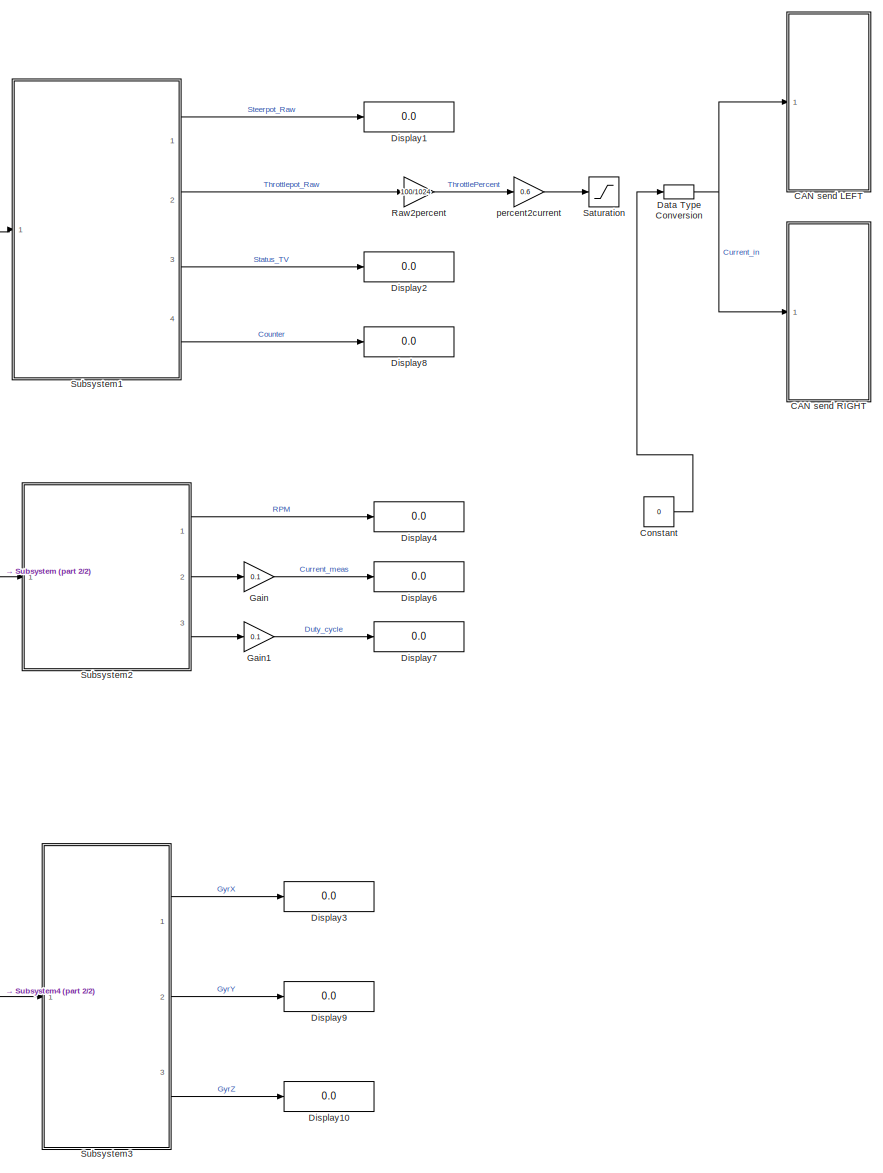
[diagram: root canvas - part 1/2, right side, full height]
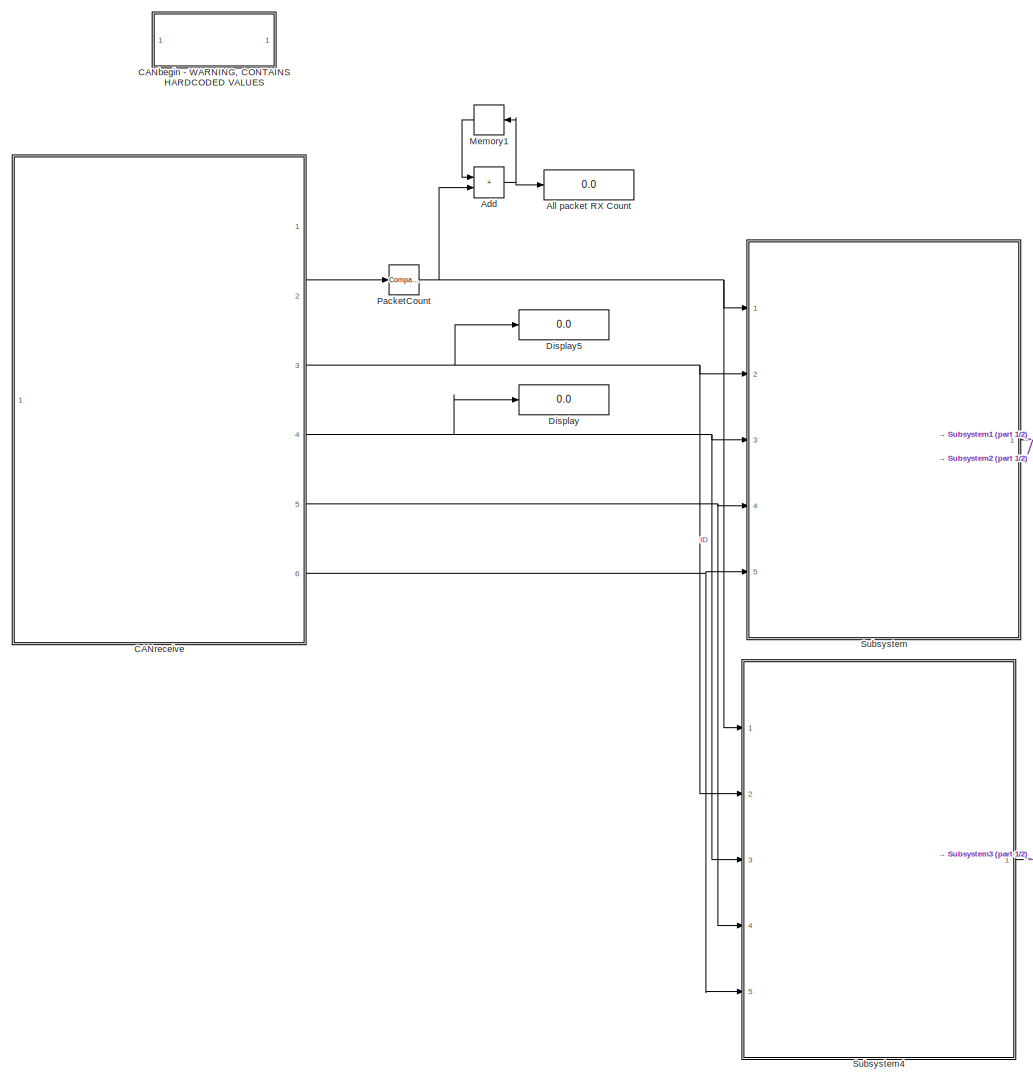
[diagram: root canvas - part 2/2, left side, full height]
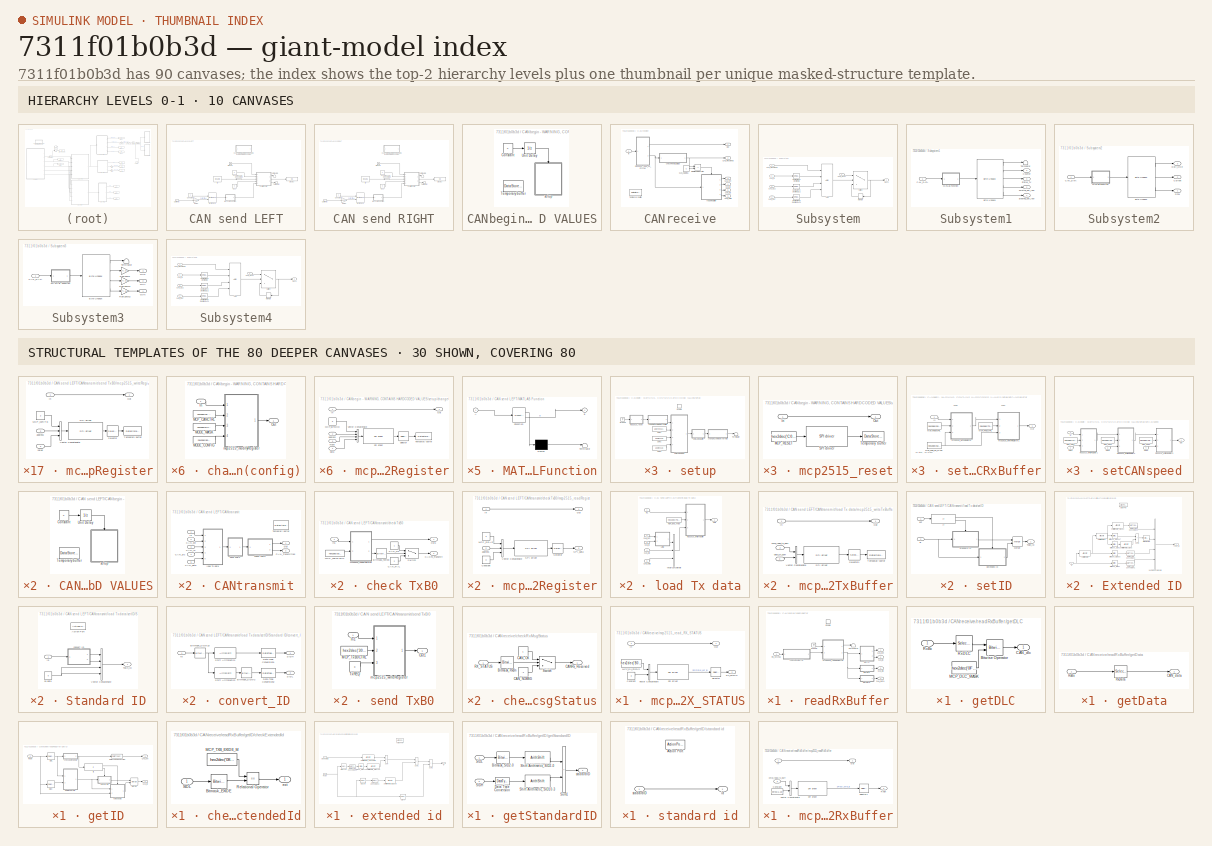
[diagram: thumbnail index - top-2 hierarchy levels (10 canvases) + 30 structural-template representatives of the remaining 80 canvases]
MODEL slx_7311f01b0b3d
KIND model
CONFIG AbsTol = auto
CONFIG EnableMultiTasking = on
CONFIG FixedStep = 0.01
CONFIG MaxStep = auto
CONFIG MinStep = auto
CONFIG RelTol = 1e-3
CONFIG SampleTimeConstraint = Unconstrained
CONFIG SolverName = FixedStepDiscrete
CONFIG StartTime = 0.0
CONFIG StopTime = inf
BLOCK [Sum] Add
  IconShape = rectangular
  OutDataTypeStr = uint32
  Ports = [2, 1]
BLOCK [Display] All packet RX Count
  Decimation = 1
  Ports = [1]
BLOCK [SubSystem] CAN send LEFT
  Ports = [1]
  RequestExecContextInheritance = off
BLOCK [Reference] CAN send LEFT/Byte Pack  REF=etargetslib/Byte Pack
  Ports = [2, 1]
  SourceBlock = etargetslib/Byte Pack
  SourceProductBaseCode = ME
  SourceType = Byte pack
BLOCK [SubSystem] CAN send LEFT/CANbegin - WARNING, CONTAINS HARDCODED VALUES
  Commented = on
  Ports = []
  RTWSystemCode = Nonreusable function
  RequestExecContextInheritance = off
  TreatAsAtomicUnit = on
BLOCK [Constant] CAN send LEFT/CANbegin - WARNING, CONTAINS HARDCODED VALUES/Constant
  OutDataTypeStr = boolean
  SampleTime = -1
  Value = 0
BLOCK [DataStoreMemory] CAN send LEFT/CANbegin - WARNING, CONTAINS HARDCODED VALUES/Temporary buffer
  DataStoreName = temp_1byte
  OutDataTypeStr = uint8
  ReadBeforeWriteMsg = warning
  ShowAdditionalParam = off
  SignalType = real
  WriteAfterReadMsg = warning
  WriteAfterWriteMsg = warning
BLOCK [UnitDelay] CAN send LEFT/CANbegin - WARNING, CONTAINS HARDCODED VALUES/Unit Delay
  HasFrameUpgradeWarning = on
  InitialCondition = 1
  SampleTime = -1
BLOCK [SubSystem] CAN send LEFT/CANbegin - WARNING, CONTAINS HARDCODED VALUES/setup
  Ports = [0, 0, 1]
  RTWFileNameOpts = Use subsystem name
  RTWSystemCode = Nonreusable function
  RequestExecContextInheritance = off
  TreatAsAtomicUnit = on
BLOCK [Constant] CAN send LEFT/CANbegin - WARNING, CONTAINS HARDCODED VALUES/setup/CNF1
  OutDataTypeStr = uint8
  Value = address2A
BLOCK [Constant] CAN send LEFT/CANbegin - WARNING, CONTAINS HARDCODED VALUES/setup/CNF2
  OutDataTypeStr = uint8
  Value = address29
BLOCK [Constant] CAN send LEFT/CANbegin - WARNING, CONTAINS HARDCODED VALUES/setup/CNF3
  OutDataTypeStr = uint8
  Value = address28
BLOCK [EnablePort] CAN send LEFT/CANbegin - WARNING, CONTAINS HARDCODED VALUES/setup/Enable
  Ports = []
BLOCK [Ground] CAN send LEFT/CANbegin - WARNING, CONTAINS HARDCODED VALUES/setup/Ground
BLOCK [Terminator] CAN send LEFT/CANbegin - WARNING, CONTAINS HARDCODED VALUES/setup/Terminator
BLOCK [SubSystem] CAN send LEFT/CANbegin - WARNING, CONTAINS HARDCODED VALUES/setup/changeCANmode(config)
  Ports = [1, 1]
  RequestExecContextInheritance = off
  TreatAsAtomicUnit = on
BLOCK [Inport] CAN send LEFT/CANbegin - WARNING, CONTAINS HARDCODED VALUES/setup/changeCANmode(config)/In
BLOCK [Constant] CAN send LEFT/CANbegin - WARNING, CONTAINS HARDCODED VALUES/setup/changeCANmode(config)/MCP_CANCTRL
  OutDataTypeStr = uint8
  Value = hex2dec('0F')
BLOCK [Constant] CAN send LEFT/CANbegin - WARNING, CONTAINS HARDCODED VALUES/setup/changeCANmode(config)/MODE_CONFIG
  OutDataTypeStr = uint8
  Value = hex2dec('80')
BLOCK [Constant] CAN send LEFT/CANbegin - WARNING, CONTAINS HARDCODED VALUES/setup/changeCANmode(config)/MODE_MASK
  OutDataTypeStr = uint8
  Value = hex2dec('E0')
BLOCK [Outport] CAN send LEFT/CANbegin - WARNING, CONTAINS HARDCODED VALUES/setup/changeCANmode(config)/Out
  VectorParamsAs1DForOutWhenUnconnected = off
BLOCK [SubSystem] CAN send LEFT/CANbegin - WARNING, CONTAINS HARDCODED VALUES/setup/changeCANmode(config)/mcp2515_modifyRegister
  Ports = [4, 1]
  RequestExecContextInheritance = off
  TreatAsAtomicUnit = on
BLOCK [Inport] CAN send LEFT/CANbegin - WARNING, CONTAINS HARDCODED VALUES/setup/changeCANmode(config)/mcp2515_modifyRegister/In
BLOCK [Constant] CAN send LEFT/CANbegin - WARNING, CONTAINS HARDCODED VALUES/setup/changeCANmode(config)/mcp2515_modifyRegister/MCP_BITMOD
  OutDataTypeStr = uint8
  Value = 5
BLOCK [Outport] CAN send LEFT/CANbegin - WARNING, CONTAINS HARDCODED VALUES/setup/changeCANmode(config)/mcp2515_modifyRegister/Out
  VectorParamsAs1DForOutWhenUnconnected = off
BLOCK [Reference] CAN send LEFT/CANbegin - WARNING, CONTAINS HARDCODED VALUES/setup/changeCANmode(config)/mcp2515_modifyRegister/SPI driver  REF=mcp2515lib/CAN application/mcp2515 driver/SPI driver
  Ports = [1, 1]
  SourceBlock = mcp2515lib/CAN application/mcp2515 driver/SPI driver
  SourceProductName = CAN device driver for mcp2515
  SourceType = SubSystem
BLOCK [Selector] CAN send LEFT/CANbegin - WARNING, CONTAINS HARDCODED VALUES/setup/changeCANmode(config)/mcp2515_modifyRegister/Selector
  IndexMode = Zero-based
  IndexOptions = Index vector (dialog)
  Indices = 0
  InputPortWidth = 4
  OutputSizes = 1
  Ports = [1, 1]
BLOCK [DataStoreWrite] CAN send LEFT/CANbegin - WARNING, CONTAINS HARDCODED VALUES/setup/changeCANmode(config)/mcp2515_modifyRegister/Temporary buffer
  DataStoreName = temp_1byte
  IndexOptions = Index vector (dialog)
  Indices = 1
  OutputSizes = 1
  Ports = [1]
BLOCK [Concatenate] CAN send LEFT/CANbegin - WARNING, CONTAINS HARDCODED VALUES/setup/changeCANmode(config)/mcp2515_modifyRegister/Vector Concatenate
  NumInputs = 4
  Ports = [4, 1]
BLOCK [Inport] CAN send LEFT/CANbegin - WARNING, CONTAINS HARDCODED VALUES/setup/changeCANmode(config)/mcp2515_modifyRegister/address
  Port = 2
BLOCK [Inport] CAN send LEFT/CANbegin - WARNING, CONTAINS HARDCODED VALUES/setup/changeCANmode(config)/mcp2515_modifyRegister/data
  Port = 4
BLOCK [Inport] CAN send LEFT/CANbegin - WARNING, CONTAINS HARDCODED VALUES/setup/changeCANmode(config)/mcp2515_modifyRegister/mask
  Port = 3
BLOCK [SubSystem] CAN send LEFT/CANbegin - WARNING, CONTAINS HARDCODED VALUES/setup/changeCANmode(normal)
  Ports = [1, 1]
  RequestExecContextInheritance = off
  TreatAsAtomicUnit = on
BLOCK [Inport] CAN send LEFT/CANbegin - WARNING, CONTAINS HARDCODED VALUES/setup/changeCANmode(normal)/In
BLOCK [Constant] CAN send LEFT/CANbegin - WARNING, CONTAINS HARDCODED VALUES/setup/changeCANmode(normal)/MCP_CANCTRL
  OutDataTypeStr = uint8
  Value = hex2dec('0F')
BLOCK [Constant] CAN send LEFT/CANbegin - WARNING, CONTAINS HARDCODED VALUES/setup/changeCANmode(normal)/MODE_MASK
  OutDataTypeStr = uint8
  Value = hex2dec('E0')
BLOCK [Constant] CAN send LEFT/CANbegin - WARNING, CONTAINS HARDCODED VALUES/setup/changeCANmode(normal)/MODE_NORMAL
  OutDataTypeStr = uint8
  Value = 0
BLOCK [Outport] CAN send LEFT/CANbegin - WARNING, CONTAINS HARDCODED VALUES/setup/changeCANmode(normal)/Out
  VectorParamsAs1DForOutWhenUnconnected = off
BLOCK [SubSystem] CAN send LEFT/CANbegin - WARNING, CONTAINS HARDCODED VALUES/setup/changeCANmode(normal)/mcp2515_modifyRegister
  Ports = [4, 1]
  RequestExecContextInheritance = off
  TreatAsAtomicUnit = on
BLOCK [Inport] CAN send LEFT/CANbegin - WARNING, CONTAINS HARDCODED VALUES/setup/changeCANmode(normal)/mcp2515_modifyRegister/In
BLOCK [Constant] CAN send LEFT/CANbegin - WARNING, CONTAINS HARDCODED VALUES/setup/changeCANmode(normal)/mcp2515_modifyRegister/MCP_BITMOD
  OutDataTypeStr = uint8
  Value = 5
BLOCK [Outport] CAN send LEFT/CANbegin - WARNING, CONTAINS HARDCODED VALUES/setup/changeCANmode(normal)/mcp2515_modifyRegister/Out
  VectorParamsAs1DForOutWhenUnconnected = off
BLOCK [Reference] CAN send LEFT/CANbegin - WARNING, CONTAINS HARDCODED VALUES/setup/changeCANmode(normal)/mcp2515_modifyRegister/SPI driver  REF=mcp2515lib/CAN application/mcp2515 driver/SPI driver
  Ports = [1, 1]
  SourceBlock = mcp2515lib/CAN application/mcp2515 driver/SPI driver
  SourceProductName = CAN device driver for mcp2515
  SourceType = SubSystem
BLOCK [Selector] CAN send LEFT/CANbegin - WARNING, CONTAINS HARDCODED VALUES/setup/changeCANmode(normal)/mcp2515_modifyRegister/Selector
  IndexMode = Zero-based
  IndexOptions = Index vector (dialog)
  Indices = 0
  InputPortWidth = 4
  OutputSizes = 1
  Ports = [1, 1]
BLOCK [DataStoreWrite] CAN send LEFT/CANbegin - WARNING, CONTAINS HARDCODED VALUES/setup/changeCANmode(normal)/mcp2515_modifyRegister/Temporary buffer
  DataStoreName = temp_1byte
  IndexOptions = Index vector (dialog)
  Indices = 1
  OutputSizes = 1
  Ports = [1]
BLOCK [Concatenate] CAN send LEFT/CANbegin - WARNING, CONTAINS HARDCODED VALUES/setup/changeCANmode(normal)/mcp2515_modifyRegister/Vector Concatenate
  NumInputs = 4
  Ports = [4, 1]
BLOCK [Inport] CAN send LEFT/CANbegin - WARNING, CONTAINS HARDCODED VALUES/setup/changeCANmode(normal)/mcp2515_modifyRegister/address
  Port = 2
BLOCK [Inport] CAN send LEFT/CANbegin - WARNING, CONTAINS HARDCODED VALUES/setup/changeCANmode(normal)/mcp2515_modifyRegister/data
  Port = 4
BLOCK [Inport] CAN send LEFT/CANbegin - WARNING, CONTAINS HARDCODED VALUES/setup/changeCANmode(normal)/mcp2515_modifyRegister/mask
  Port = 3
BLOCK [SubSystem] CAN send LEFT/CANbegin - WARNING, CONTAINS HARDCODED VALUES/setup/mcp2515_reset
  Ports = [1, 1]
  RequestExecContextInheritance = off
  TreatAsAtomicUnit = on
BLOCK [Inport] CAN send LEFT/CANbegin - WARNING, CONTAINS HARDCODED VALUES/setup/mcp2515_reset/In
BLOCK [Constant] CAN send LEFT/CANbegin - WARNING, CONTAINS HARDCODED VALUES/setup/mcp2515_reset/MCP_RESET
  OutDataTypeStr = uint8
  Value = hex2dec('C0')
BLOCK [Outport] CAN send LEFT/CANbegin - WARNING, CONTAINS HARDCODED VALUES/setup/mcp2515_reset/Out
  VectorParamsAs1DForOutWhenUnconnected = off
BLOCK [Reference] CAN send LEFT/CANbegin - WARNING, CONTAINS HARDCODED VALUES/setup/mcp2515_reset/SPI driver  REF=mcp2515lib/CAN application/mcp2515 driver/SPI driver
  Ports = [1, 1]
  SourceBlock = mcp2515lib/CAN application/mcp2515 driver/SPI driver
  SourceProductName = CAN device driver for mcp2515
  SourceType = SubSystem
BLOCK [DataStoreWrite] CAN send LEFT/CANbegin - WARNING, CONTAINS HARDCODED VALUES/setup/mcp2515_reset/Temporary buffer
  DataStoreName = temp_1byte
  IndexOptions = Index vector (dialog)
  Indices = 1
  OutputSizes = 1
  Ports = [1]
BLOCK [SubSystem] CAN send LEFT/CANbegin - WARNING, CONTAINS HARDCODED VALUES/setup/setCANRxBuffer
  Ports = [1, 1]
  RequestExecContextInheritance = off
  TreatAsAtomicUnit = on
BLOCK [Inport] CAN send LEFT/CANbegin - WARNING, CONTAINS HARDCODED VALUES/setup/setCANRxBuffer/In
BLOCK [Constant] CAN send LEFT/CANbegin - WARNING, CONTAINS HARDCODED VALUES/setup/setCANRxBuffer/MCP_RXB0CTRL
  OutDataTypeStr = uint8
  Value = hex2dec('60')
BLOCK [Constant] CAN send LEFT/CANbegin - WARNING, CONTAINS HARDCODED VALUES/setup/setCANRxBuffer/MCP_RXB1CTRL
  OutDataTypeStr = uint8
  Value = hex2dec('70')
BLOCK [Constant] CAN send LEFT/CANbegin - WARNING, CONTAINS HARDCODED VALUES/setup/setCANRxBuffer/MCP_RXB_RX_MASK
  OutDataTypeStr = uint8
  Value = hex2dec('60')
BLOCK [Outport] CAN send LEFT/CANbegin - WARNING, CONTAINS HARDCODED VALUES/setup/setCANRxBuffer/Out
  VectorParamsAs1DForOutWhenUnconnected = off
BLOCK [SubSystem] CAN send LEFT/CANbegin - WARNING, CONTAINS HARDCODED VALUES/setup/setCANRxBuffer/mcp2515_writeRegister
  Ports = [3, 1]
  RequestExecContextInheritance = off
  TreatAsAtomicUnit = on
BLOCK [Inport] CAN send LEFT/CANbegin - WARNING, CONTAINS HARDCODED VALUES/setup/setCANRxBuffer/mcp2515_writeRegister/In
BLOCK [Constant] CAN send LEFT/CANbegin - WARNING, CONTAINS HARDCODED VALUES/setup/setCANRxBuffer/mcp2515_writeRegister/MCP_WRITE
  OutDataTypeStr = uint8
  Value = 2
BLOCK [Outport] CAN send LEFT/CANbegin - WARNING, CONTAINS HARDCODED VALUES/setup/setCANRxBuffer/mcp2515_writeRegister/Out
  VectorParamsAs1DForOutWhenUnconnected = off
BLOCK [Reference] CAN send LEFT/CANbegin - WARNING, CONTAINS HARDCODED VALUES/setup/setCANRxBuffer/mcp2515_writeRegister/SPI driver  REF=mcp2515lib/CAN application/mcp2515 driver/SPI driver
  Ports = [1, 1]
  SourceBlock = mcp2515lib/CAN application/mcp2515 driver/SPI driver
  SourceProductName = CAN device driver for mcp2515
  SourceType = SubSystem
BLOCK [Selector] CAN send LEFT/CANbegin - WARNING, CONTAINS HARDCODED VALUES/setup/setCANRxBuffer/mcp2515_writeRegister/Selector
  IndexMode = Zero-based
  IndexOptions = Index vector (dialog)
  Indices = 0
  InputPortWidth = 3
  OutputSizes = 1
  Ports = [1, 1]
BLOCK [DataStoreWrite] CAN send LEFT/CANbegin - WARNING, CONTAINS HARDCODED VALUES/setup/setCANRxBuffer/mcp2515_writeRegister/Temporary buffer
  DataStoreName = temp_1byte
  IndexOptions = Index vector (dialog)
  Indices = 1
  OutputSizes = 1
  Ports = [1]
BLOCK [Concatenate] CAN send LEFT/CANbegin - WARNING, CONTAINS HARDCODED VALUES/setup/setCANRxBuffer/mcp2515_writeRegister/Vector Concatenate
  NumInputs = 3
  Ports = [3, 1]
BLOCK [Inport] CAN send LEFT/CANbegin - WARNING, CONTAINS HARDCODED VALUES/setup/setCANRxBuffer/mcp2515_writeRegister/address
  OutDataTypeStr = uint8
  Port = 2
BLOCK [Inport] CAN send LEFT/CANbegin - WARNING, CONTAINS HARDCODED VALUES/setup/setCANRxBuffer/mcp2515_writeRegister/value
  OutDataTypeStr = uint8
  Port = 3
BLOCK [SubSystem] CAN send LEFT/CANbegin - WARNING, CONTAINS HARDCODED VALUES/setup/setCANRxBuffer/mcp2515_writeRegister1
  Ports = [3, 1]
  RequestExecContextInheritance = off
  TreatAsAtomicUnit = on
BLOCK [Inport] CAN send LEFT/CANbegin - WARNING, CONTAINS HARDCODED VALUES/setup/setCANRxBuffer/mcp2515_writeRegister1/In
BLOCK [Constant] CAN send LEFT/CANbegin - WARNING, CONTAINS HARDCODED VALUES/setup/setCANRxBuffer/mcp2515_writeRegister1/MCP_WRITE
  OutDataTypeStr = uint8
  Value = 2
BLOCK [Outport] CAN send LEFT/CANbegin - WARNING, CONTAINS HARDCODED VALUES/setup/setCANRxBuffer/mcp2515_writeRegister1/Out
  VectorParamsAs1DForOutWhenUnconnected = off
BLOCK [Reference] CAN send LEFT/CANbegin - WARNING, CONTAINS HARDCODED VALUES/setup/setCANRxBuffer/mcp2515_writeRegister1/SPI driver  REF=mcp2515lib/CAN application/mcp2515 driver/SPI driver
  Ports = [1, 1]
  SourceBlock = mcp2515lib/CAN application/mcp2515 driver/SPI driver
  SourceProductName = CAN device driver for mcp2515
  SourceType = SubSystem
BLOCK [Selector] CAN send LEFT/CANbegin - WARNING, CONTAINS HARDCODED VALUES/setup/setCANRxBuffer/mcp2515_writeRegister1/Selector
  IndexMode = Zero-based
  IndexOptions = Index vector (dialog)
  Indices = 0
  InputPortWidth = 3
  OutputSizes = 1
  Ports = [1, 1]
BLOCK [DataStoreWrite] CAN send LEFT/CANbegin - WARNING, CONTAINS HARDCODED VALUES/setup/setCANRxBuffer/mcp2515_writeRegister1/Temporary buffer
  DataStoreName = temp_1byte
  IndexOptions = Index vector (dialog)
  Indices = 1
  OutputSizes = 1
  Ports = [1]
BLOCK [Concatenate] CAN send LEFT/CANbegin - WARNING, CONTAINS HARDCODED VALUES/setup/setCANRxBuffer/mcp2515_writeRegister1/Vector Concatenate
  NumInputs = 3
  Ports = [3, 1]
BLOCK [Inport] CAN send LEFT/CANbegin - WARNING, CONTAINS HARDCODED VALUES/setup/setCANRxBuffer/mcp2515_writeRegister1/address
  OutDataTypeStr = uint8
  Port = 2
BLOCK [Inport] CAN send LEFT/CANbegin - WARNING, CONTAINS HARDCODED VALUES/setup/setCANRxBuffer/mcp2515_writeRegister1/value
  OutDataTypeStr = uint8
  Port = 3
BLOCK [SubSystem] CAN send LEFT/CANbegin - WARNING, CONTAINS HARDCODED VALUES/setup/setCANspeed
  Ports = [4, 1]
  RequestExecContextInheritance = off
  TreatAsAtomicUnit = on
BLOCK [Inport] CAN send LEFT/CANbegin - WARNING, CONTAINS HARDCODED VALUES/setup/setCANspeed/CNF1
  Port = 2
BLOCK [Inport] CAN send LEFT/CANbegin - WARNING, CONTAINS HARDCODED VALUES/setup/setCANspeed/CNF2
  Port = 3
BLOCK [Inport] CAN send LEFT/CANbegin - WARNING, CONTAINS HARDCODED VALUES/setup/setCANspeed/CNF3
  Port = 4
BLOCK [Inport] CAN send LEFT/CANbegin - WARNING, CONTAINS HARDCODED VALUES/setup/setCANspeed/In
BLOCK [Constant] CAN send LEFT/CANbegin - WARNING, CONTAINS HARDCODED VALUES/setup/setCANspeed/MCP_CNF1
  OutDataTypeStr = uint8
  Value = hex2dec('2A')
BLOCK [Constant] CAN send LEFT/CANbegin - WARNING, CONTAINS HARDCODED VALUES/setup/setCANspeed/MCP_CNF2
  OutDataTypeStr = uint8
  Value = hex2dec('29')
BLOCK [Constant] CAN send LEFT/CANbegin - WARNING, CONTAINS HARDCODED VALUES/setup/setCANspeed/MCP_CNF3
  OutDataTypeStr = uint8
  Value = hex2dec('28')
BLOCK [Outport] CAN send LEFT/CANbegin - WARNING, CONTAINS HARDCODED VALUES/setup/setCANspeed/Out
  VectorParamsAs1DForOutWhenUnconnected = off
BLOCK [SubSystem] CAN send LEFT/CANbegin - WARNING, CONTAINS HARDCODED VALUES/setup/setCANspeed/mcp2515_writeRegister1
  Ports = [3, 1]
  RequestExecContextInheritance = off
  TreatAsAtomicUnit = on
BLOCK [Inport] CAN send LEFT/CANbegin - WARNING, CONTAINS HARDCODED VALUES/setup/setCANspeed/mcp2515_writeRegister1/In
BLOCK [Constant] CAN send LEFT/CANbegin - WARNING, CONTAINS HARDCODED VALUES/setup/setCANspeed/mcp2515_writeRegister1/MCP_WRITE
  OutDataTypeStr = uint8
  Value = 2
BLOCK [Outport] CAN send LEFT/CANbegin - WARNING, CONTAINS HARDCODED VALUES/setup/setCANspeed/mcp2515_writeRegister1/Out
  VectorParamsAs1DForOutWhenUnconnected = off
BLOCK [Reference] CAN send LEFT/CANbegin - WARNING, CONTAINS HARDCODED VALUES/setup/setCANspeed/mcp2515_writeRegister1/SPI driver  REF=mcp2515lib/CAN application/mcp2515 driver/SPI driver
  Ports = [1, 1]
  SourceBlock = mcp2515lib/CAN application/mcp2515 driver/SPI driver
  SourceProductName = CAN device driver for mcp2515
  SourceType = SubSystem
BLOCK [Selector] CAN send LEFT/CANbegin - WARNING, CONTAINS HARDCODED VALUES/setup/setCANspeed/mcp2515_writeRegister1/Selector
  IndexMode = Zero-based
  IndexOptions = Index vector (dialog)
  Indices = 0
  InputPortWidth = 3
  OutputSizes = 1
  Ports = [1, 1]
BLOCK [DataStoreWrite] CAN send LEFT/CANbegin - WARNING, CONTAINS HARDCODED VALUES/setup/setCANspeed/mcp2515_writeRegister1/Temporary buffer
  DataStoreName = temp_1byte
  IndexOptions = Index vector (dialog)
  Indices = 1
  OutputSizes = 1
  Ports = [1]
BLOCK [Concatenate] CAN send LEFT/CANbegin - WARNING, CONTAINS HARDCODED VALUES/setup/setCANspeed/mcp2515_writeRegister1/Vector Concatenate
  NumInputs = 3
  Ports = [3, 1]
BLOCK [Inport] CAN send LEFT/CANbegin - WARNING, CONTAINS HARDCODED VALUES/setup/setCANspeed/mcp2515_writeRegister1/address
  OutDataTypeStr = uint8
  Port = 2
BLOCK [Inport] CAN send LEFT/CANbegin - WARNING, CONTAINS HARDCODED VALUES/setup/setCANspeed/mcp2515_writeRegister1/value
  OutDataTypeStr = uint8
  Port = 3
BLOCK [SubSystem] CAN send LEFT/CANbegin - WARNING, CONTAINS HARDCODED VALUES/setup/setCANspeed/mcp2515_writeRegister2
  Ports = [3, 1]
  RequestExecContextInheritance = off
  TreatAsAtomicUnit = on
BLOCK [Inport] CAN send LEFT/CANbegin - WARNING, CONTAINS HARDCODED VALUES/setup/setCANspeed/mcp2515_writeRegister2/In
BLOCK [Constant] CAN send LEFT/CANbegin - WARNING, CONTAINS HARDCODED VALUES/setup/setCANspeed/mcp2515_writeRegister2/MCP_WRITE
  OutDataTypeStr = uint8
  Value = 2
BLOCK [Outport] CAN send LEFT/CANbegin - WARNING, CONTAINS HARDCODED VALUES/setup/setCANspeed/mcp2515_writeRegister2/Out
  VectorParamsAs1DForOutWhenUnconnected = off
BLOCK [Reference] CAN send LEFT/CANbegin - WARNING, CONTAINS HARDCODED VALUES/setup/setCANspeed/mcp2515_writeRegister2/SPI driver  REF=mcp2515lib/CAN application/mcp2515 driver/SPI driver
  Ports = [1, 1]
  SourceBlock = mcp2515lib/CAN application/mcp2515 driver/SPI driver
  SourceProductName = CAN device driver for mcp2515
  SourceType = SubSystem
BLOCK [Selector] CAN send LEFT/CANbegin - WARNING, CONTAINS HARDCODED VALUES/setup/setCANspeed/mcp2515_writeRegister2/Selector
  IndexMode = Zero-based
  IndexOptions = Index vector (dialog)
  Indices = 0
  InputPortWidth = 3
  OutputSizes = 1
  Ports = [1, 1]
BLOCK [DataStoreWrite] CAN send LEFT/CANbegin - WARNING, CONTAINS HARDCODED VALUES/setup/setCANspeed/mcp2515_writeRegister2/Temporary buffer
  DataStoreName = temp_1byte
  IndexOptions = Index vector (dialog)
  Indices = 1
  OutputSizes = 1
  Ports = [1]
BLOCK [Concatenate] CAN send LEFT/CANbegin - WARNING, CONTAINS HARDCODED VALUES/setup/setCANspeed/mcp2515_writeRegister2/Vector Concatenate
  NumInputs = 3
  Ports = [3, 1]
BLOCK [Inport] CAN send LEFT/CANbegin - WARNING, CONTAINS HARDCODED VALUES/setup/setCANspeed/mcp2515_writeRegister2/address
  OutDataTypeStr = uint8
  Port = 2
BLOCK [Inport] CAN send LEFT/CANbegin - WARNING, CONTAINS HARDCODED VALUES/setup/setCANspeed/mcp2515_writeRegister2/value
  OutDataTypeStr = uint8
  Port = 3
BLOCK [SubSystem] CAN send LEFT/CANbegin - WARNING, CONTAINS HARDCODED VALUES/setup/setCANspeed/mcp2515_writeRegister3
  Ports = [3, 1]
  RequestExecContextInheritance = off
  TreatAsAtomicUnit = on
BLOCK [Inport] CAN send LEFT/CANbegin - WARNING, CONTAINS HARDCODED VALUES/setup/setCANspeed/mcp2515_writeRegister3/In
BLOCK [Constant] CAN send LEFT/CANbegin - WARNING, CONTAINS HARDCODED VALUES/setup/setCANspeed/mcp2515_writeRegister3/MCP_WRITE
  OutDataTypeStr = uint8
  Value = 2
BLOCK [Outport] CAN send LEFT/CANbegin - WARNING, CONTAINS HARDCODED VALUES/setup/setCANspeed/mcp2515_writeRegister3/Out
  VectorParamsAs1DForOutWhenUnconnected = off
BLOCK [Reference] CAN send LEFT/CANbegin - WARNING, CONTAINS HARDCODED VALUES/setup/setCANspeed/mcp2515_writeRegister3/SPI driver  REF=mcp2515lib/CAN application/mcp2515 driver/SPI driver
  Ports = [1, 1]
  SourceBlock = mcp2515lib/CAN application/mcp2515 driver/SPI driver
  SourceProductName = CAN device driver for mcp2515
  SourceType = SubSystem
BLOCK [Selector] CAN send LEFT/CANbegin - WARNING, CONTAINS HARDCODED VALUES/setup/setCANspeed/mcp2515_writeRegister3/Selector
  IndexMode = Zero-based
  IndexOptions = Index vector (dialog)
  Indices = 0
  InputPortWidth = 3
  OutputSizes = 1
  Ports = [1, 1]
BLOCK [DataStoreWrite] CAN send LEFT/CANbegin - WARNING, CONTAINS HARDCODED VALUES/setup/setCANspeed/mcp2515_writeRegister3/Temporary buffer
  DataStoreName = temp_1byte
  IndexOptions = Index vector (dialog)
  Indices = 1
  OutputSizes = 1
  Ports = [1]
BLOCK [Concatenate] CAN send LEFT/CANbegin - WARNING, CONTAINS HARDCODED VALUES/setup/setCANspeed/mcp2515_writeRegister3/Vector Concatenate
  NumInputs = 3
  Ports = [3, 1]
BLOCK [Inport] CAN send LEFT/CANbegin - WARNING, CONTAINS HARDCODED VALUES/setup/setCANspeed/mcp2515_writeRegister3/address
  OutDataTypeStr = uint8
  Port = 2
BLOCK [Inport] CAN send LEFT/CANbegin - WARNING, CONTAINS HARDCODED VALUES/setup/setCANspeed/mcp2515_writeRegister3/value
  OutDataTypeStr = uint8
  Port = 3
BLOCK [SubSystem] CAN send LEFT/CANtransmit
  Ports = [5, 2]
  RTWSystemCode = Reusable function
  RequestExecContextInheritance = off
  TreatAsAtomicUnit = on
BLOCK [Outport] CAN send LEFT/CANtransmit/CAN_Transmitted
  Port = 2
  VectorParamsAs1DForOutWhenUnconnected = off
BLOCK [Inport] CAN send LEFT/CANtransmit/CAN_data
  Port = 5
BLOCK [Inport] CAN send LEFT/CANtransmit/CAN_dlc
  Port = 4
BLOCK [Inport] CAN send LEFT/CANtransmit/CAN_ext
  Port = 2
BLOCK [Inport] CAN send LEFT/CANtransmit/CAN_id
  Port = 3
BLOCK [Inport] CAN send LEFT/CANtransmit/In
BLOCK [Outport] CAN send LEFT/CANtransmit/Out
  VectorParamsAs1DForOutWhenUnconnected = off
BLOCK [DataStoreMemory] CAN send LEFT/CANtransmit/Temporary buffer
  DataStoreName = temp_1byte
  OutDataTypeStr = uint8
  ReadBeforeWriteMsg = warning
  ShowAdditionalParam = off
  SignalType = real
  WriteAfterReadMsg = warning
  WriteAfterWriteMsg = warning
BLOCK [SubSystem] CAN send LEFT/CANtransmit/check TxB0
  Ports = [1, 2]
  RequestExecContextInheritance = off
  TreatAsAtomicUnit = on
BLOCK [Reference] CAN send LEFT/CANtransmit/check TxB0/Bitmask_TxReq  REF=simulink/Logic and Bit
Operations/Bitwise
Operator
  Ports = [1, 1]
  SourceBlock = simulink/Logic and Bit\nOperations/Bitwise\nOperator
  SourceProductBaseCode = SL
  SourceType = Bitwise Operator
BLOCK [Outport] CAN send LEFT/CANtransmit/check TxB0/CANTx_Transmit
  Port = 2
  VectorParamsAs1DForOutWhenUnconnected = off
BLOCK [Constant] CAN send LEFT/CANtransmit/check TxB0/CAN_FAIL
  OutDataTypeStr = int8
  Value = 2
BLOCK [Constant] CAN send LEFT/CANtransmit/check TxB0/CAN_OK
  OutDataTypeStr = int8
BLOCK [Inport] CAN send LEFT/CANtransmit/check TxB0/In1
BLOCK [Constant] CAN send LEFT/CANtransmit/check TxB0/MCP_TxB0CTRL1
  OutDataTypeStr = uint8
  Value = hex2dec('30')
BLOCK [Outport] CAN send LEFT/CANtransmit/check TxB0/Out1
  VectorParamsAs1DForOutWhenUnconnected = off
BLOCK [Switch] CAN send LEFT/CANtransmit/check TxB0/Switch
  Criteria = u2 > Threshold
  InputSameDT = off
  SaturateOnIntegerOverflow = off
BLOCK [SubSystem] CAN send LEFT/CANtransmit/check TxB0/mcp2515_readRegister
  Ports = [2, 2]
  RequestExecContextInheritance = off
  TreatAsAtomicUnit = on
BLOCK [Constant] CAN send LEFT/CANtransmit/check TxB0/mcp2515_readRegister/Constant
  OutDataTypeStr = uint8
  Value = 0
BLOCK [Inport] CAN send LEFT/CANtransmit/check TxB0/mcp2515_readRegister/In
BLOCK [Constant] CAN send LEFT/CANtransmit/check TxB0/mcp2515_readRegister/MCP_READ
  OutDataTypeStr = uint8
  Value = 3
BLOCK [Outport] CAN send LEFT/CANtransmit/check TxB0/mcp2515_readRegister/Out
  VectorParamsAs1DForOutWhenUnconnected = off
BLOCK [Reference] CAN send LEFT/CANtransmit/check TxB0/mcp2515_readRegister/SPI driver  REF=mcp2515lib/CAN application/mcp2515 driver/SPI driver
  Ports = [1, 1]
  SourceBlock = mcp2515lib/CAN application/mcp2515 driver/SPI driver
  SourceProductName = CAN device driver for mcp2515
  SourceType = SubSystem
BLOCK [Outport] CAN send LEFT/CANtransmit/check TxB0/mcp2515_readRegister/SPI_data
  Port = 2
  VectorParamsAs1DForOutWhenUnconnected = off
BLOCK [Selector] CAN send LEFT/CANtransmit/check TxB0/mcp2515_readRegister/Selector
  IndexMode = Zero-based
  IndexOptions = Index vector (dialog)
  Indices = 2
  InputPortWidth = 3
  OutputSizes = 1
  Ports = [1, 1]
BLOCK [Concatenate] CAN send LEFT/CANtransmit/check TxB0/mcp2515_readRegister/Vector Concatenate
  NumInputs = 3
  Ports = [3, 1]
BLOCK [Inport] CAN send LEFT/CANtransmit/check TxB0/mcp2515_readRegister/address
  OutDataTypeStr = uint8
  Port = 2
BLOCK [SubSystem] CAN send LEFT/CANtransmit/load Tx data
  Ports = [5, 1]
  RequestExecContextInheritance = off
  TreatAsAtomicUnit = on
BLOCK [Inport] CAN send LEFT/CANtransmit/load Tx data/CAN_data
  Port = 5
BLOCK [Inport] CAN send LEFT/CANtransmit/load Tx data/CAN_dlc
  Port = 4
BLOCK [Inport] CAN send LEFT/CANtransmit/load Tx data/CAN_ext
  Port = 2
BLOCK [Inport] CAN send LEFT/CANtransmit/load Tx data/CAN_id
  Port = 3
BLOCK [Inport] CAN send LEFT/CANtransmit/load Tx data/In1
BLOCK [Constant] CAN send LEFT/CANtransmit/load Tx data/MCP_load_TxB0
  OutDataTypeStr = uint8
  Value = hex2dec('40')
BLOCK [Outport] CAN send LEFT/CANtransmit/load Tx data/Out1
  VectorParamsAs1DForOutWhenUnconnected = off
BLOCK [Concatenate] CAN send LEFT/CANtransmit/load Tx data/Vector Concatenate
  NumInputs = 3
  Ports = [3, 1]
BLOCK [SubSystem] CAN send LEFT/CANtransmit/load Tx data/mcp2515_writeTxBuffer
  Ports = [3, 1]
  RequestExecContextInheritance = off
  TreatAsAtomicUnit = on
BLOCK [Inport] CAN send LEFT/CANtransmit/load Tx data/mcp2515_writeTxBuffer/In
BLOCK [Outport] CAN send LEFT/CANtransmit/load Tx data/mcp2515_writeTxBuffer/Out
  VectorParamsAs1DForOutWhenUnconnected = off
BLOCK [Reference] CAN send LEFT/CANtransmit/load Tx data/mcp2515_writeTxBuffer/SPI driver  REF=mcp2515lib/CAN application/mcp2515 driver/SPI driver
  Ports = [1, 1]
  SourceBlock = mcp2515lib/CAN application/mcp2515 driver/SPI driver
  SourceProductName = CAN device driver for mcp2515
  SourceType = SubSystem
BLOCK [Selector] CAN send LEFT/CANtransmit/load Tx data/mcp2515_writeTxBuffer/Selector1
  IndexMode = Zero-based
  IndexOptions = Index vector (dialog)
  Indices = 0
  InputPortWidth = 14
  OutputSizes = 1
  Ports = [1, 1]
BLOCK [DataStoreWrite] CAN send LEFT/CANtransmit/load Tx data/mcp2515_writeTxBuffer/Temporary buffer
  DataStoreName = temp_1byte
  IndexOptions = Index vector (dialog)
  Indices = 1
  OutputSizes = 1
  Ports = [1]
BLOCK [Concatenate] CAN send LEFT/CANtransmit/load Tx data/mcp2515_writeTxBuffer/Vector Concatenate
  Ports = [2, 1]
BLOCK [Inport] CAN send LEFT/CANtransmit/load Tx data/mcp2515_writeTxBuffer/cmd_load_tx_buff
  Port = 2
BLOCK [Inport] CAN send LEFT/CANtransmit/load Tx data/mcp2515_writeTxBuffer/data_tx_buff
  Port = 3
BLOCK [SubSystem] CAN send LEFT/CANtransmit/load Tx data/setID
  Ports = [2, 1]
  RTWSystemCode = Inline
  RequestExecContextInheritance = off
  TreatAsAtomicUnit = on
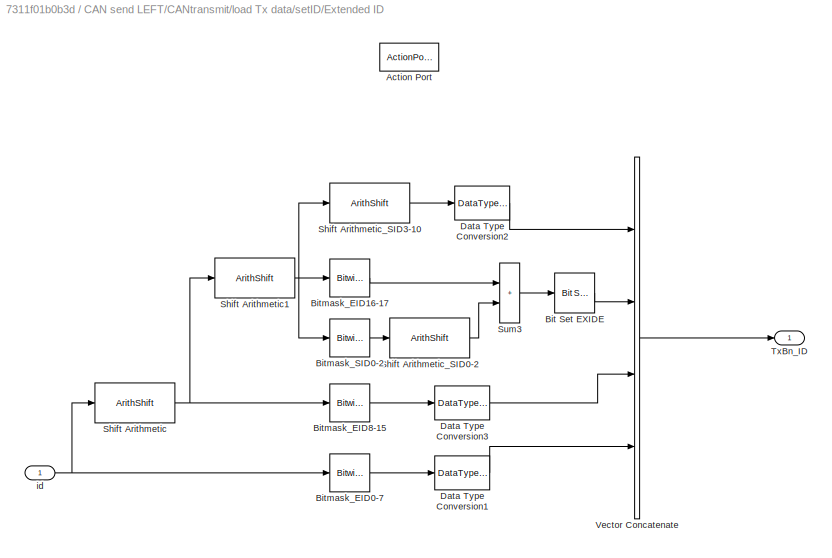
BLOCK [SubSystem] CAN send LEFT/CANtransmit/load Tx data/setID/Extended ID
  Ports = [1, 1, 0, 0, 0, 0, 0, 1]
  RequestExecContextInheritance = off
  TreatAsAtomicUnit = on
BLOCK [ActionPort] CAN send LEFT/CANtransmit/load Tx data/setID/Extended ID/Action Port
  ActionPortLabel = if(u1 > 0)
BLOCK [Reference] CAN send LEFT/CANtransmit/load Tx data/setID/Extended ID/Bit Set EXIDE  REF=simulink/Logic and Bit
Operations/Bit Set
  Ports = [1, 1]
  SourceBlock = simulink/Logic and Bit\nOperations/Bit Set
  SourceProductBaseCode = SL
  SourceType = Bit Set
BLOCK [Reference] CAN send LEFT/CANtransmit/load Tx data/setID/Extended ID/Bitmask_EID0-7  REF=simulink/Logic and Bit
Operations/Bitwise
Operator
  Ports = [1, 1]
  SourceBlock = simulink/Logic and Bit\nOperations/Bitwise\nOperator
  SourceProductBaseCode = SL
  SourceType = Bitwise Operator
BLOCK [Reference] CAN send LEFT/CANtransmit/load Tx data/setID/Extended ID/Bitmask_EID16-17  REF=simulink/Logic and Bit
Operations/Bitwise
Operator
  Ports = [1, 1]
  SourceBlock = simulink/Logic and Bit\nOperations/Bitwise\nOperator
  SourceProductBaseCode = SL
  SourceType = Bitwise Operator
BLOCK [Reference] CAN send LEFT/CANtransmit/load Tx data/setID/Extended ID/Bitmask_EID8-15  REF=simulink/Logic and Bit
Operations/Bitwise
Operator
  Ports = [1, 1]
  SourceBlock = simulink/Logic and Bit\nOperations/Bitwise\nOperator
  SourceProductBaseCode = SL
  SourceType = Bitwise Operator
BLOCK [Reference] CAN send LEFT/CANtransmit/load Tx data/setID/Extended ID/Bitmask_SID0-2  REF=simulink/Logic and Bit
Operations/Bitwise
Operator
  Ports = [1, 1]
  SourceBlock = simulink/Logic and Bit\nOperations/Bitwise\nOperator
  SourceProductBaseCode = SL
  SourceType = Bitwise Operator
BLOCK [DataTypeConversion] CAN send LEFT/CANtransmit/load Tx data/setID/Extended ID/Data Type Conversion1
  OutDataTypeStr = uint8
  RndMeth = Simplest
  SaturateOnIntegerOverflow = off
BLOCK [DataTypeConversion] CAN send LEFT/CANtransmit/load Tx data/setID/Extended ID/Data Type Conversion2
  OutDataTypeStr = uint8
  RndMeth = Simplest
  SaturateOnIntegerOverflow = off
BLOCK [DataTypeConversion] CAN send LEFT/CANtransmit/load Tx data/setID/Extended ID/Data Type Conversion3
  OutDataTypeStr = uint8
  RndMeth = Simplest
  SaturateOnIntegerOverflow = off
BLOCK [ArithShift] CAN send LEFT/CANtransmit/load Tx data/setID/Extended ID/Shift Arithmetic
  BitShiftDirection = Right
  BitShiftNumber = 8
  InputPortMap = u0
  Ports = [1, 1]
BLOCK [ArithShift] CAN send LEFT/CANtransmit/load Tx data/setID/Extended ID/Shift Arithmetic1
  BitShiftDirection = Right
  BitShiftNumber = 8
  InputPortMap = u0
  Ports = [1, 1]
BLOCK [ArithShift] CAN send LEFT/CANtransmit/load Tx data/setID/Extended ID/Shift Arithmetic_SID0-2
  BitShiftDirection = Left
  BitShiftNumber = 3
  InputPortMap = u0
  Ports = [1, 1]
BLOCK [ArithShift] CAN send LEFT/CANtransmit/load Tx data/setID/Extended ID/Shift Arithmetic_SID3-10
  BitShiftDirection = Right
  BitShiftNumber = 5
  InputPortMap = u0
  Ports = [1, 1]
BLOCK [Sum] CAN send LEFT/CANtransmit/load Tx data/setID/Extended ID/Sum3
  IconShape = rectangular
  OutDataTypeStr = uint8
  Ports = [2, 1]
BLOCK [Outport] CAN send LEFT/CANtransmit/load Tx data/setID/Extended ID/TxBn_ID
  VectorParamsAs1DForOutWhenUnconnected = off
BLOCK [Concatenate] CAN send LEFT/CANtransmit/load Tx data/setID/Extended ID/Vector Concatenate
  NumInputs = 4
  Ports = [4, 1]
BLOCK [Inport] CAN send LEFT/CANtransmit/load Tx data/setID/Extended ID/id
BLOCK [If] CAN send LEFT/CANtransmit/load Tx data/setID/If
  Ports = [1, 2]
BLOCK [Merge] CAN send LEFT/CANtransmit/load Tx data/setID/Merge
  Ports = [2, 1]
BLOCK [SubSystem] CAN send LEFT/CANtransmit/load Tx data/setID/Standard ID
  Ports = [1, 1, 0, 0, 0, 0, 0, 1]
  RequestExecContextInheritance = off
  TreatAsAtomicUnit = on
BLOCK [ActionPort] CAN send LEFT/CANtransmit/load Tx data/setID/Standard ID/Action Port
  ActionPortLabel = else
BLOCK [Outport] CAN send LEFT/CANtransmit/load Tx data/setID/Standard ID/TxBn_ID
  VectorParamsAs1DForOutWhenUnconnected = off
BLOCK [Concatenate] CAN send LEFT/CANtransmit/load Tx data/setID/Standard ID/Vector Concatenate
  NumInputs = 4
  Ports = [4, 1]
BLOCK [SubSystem] CAN send LEFT/CANtransmit/load Tx data/setID/Standard ID/convert_ID
  Ports = [1, 2]
  RequestExecContextInheritance = off
  TreatAsAtomicUnit = on
BLOCK [Reference] CAN send LEFT/CANtransmit/load Tx data/setID/Standard ID/convert_ID/Bitmask_SID0-10  REF=simulink/Logic and Bit
Operations/Bitwise
Operator
  Ports = [1, 1]
  SourceBlock = simulink/Logic and Bit\nOperations/Bitwise\nOperator
  SourceProductBaseCode = SL
  SourceType = Bitwise Operator
BLOCK [Reference] CAN send LEFT/CANtransmit/load Tx data/setID/Standard ID/convert_ID/Bitmask_SID0-2  REF=simulink/Logic and Bit
Operations/Bitwise
Operator
  Ports = [1, 1]
  SourceBlock = simulink/Logic and Bit\nOperations/Bitwise\nOperator
  SourceProductBaseCode = SL
  SourceType = Bitwise Operator
BLOCK [DataTypeConversion] CAN send LEFT/CANtransmit/load Tx data/setID/Standard ID/convert_ID/Data Type Conversion1
  OutDataTypeStr = uint8
  RndMeth = Simplest
  SaturateOnIntegerOverflow = off
BLOCK [DataTypeConversion] CAN send LEFT/CANtransmit/load Tx data/setID/Standard ID/convert_ID/Data Type Conversion2
  OutDataTypeStr = uint8
  RndMeth = Simplest
  SaturateOnIntegerOverflow = off
BLOCK [Outport] CAN send LEFT/CANtransmit/load Tx data/setID/Standard ID/convert_ID/SIDH
  VectorParamsAs1DForOutWhenUnconnected = off
BLOCK [Outport] CAN send LEFT/CANtransmit/load Tx data/setID/Standard ID/convert_ID/SIDL
  Port = 2
  VectorParamsAs1DForOutWhenUnconnected = off
BLOCK [ArithShift] CAN send LEFT/CANtransmit/load Tx data/setID/Standard ID/convert_ID/Shift Arithmetic1
  BitShiftDirection = Right
  BitShiftNumber = 3
  InputPortMap = u0
  Ports = [1, 1]
BLOCK [ArithShift] CAN send LEFT/CANtransmit/load Tx data/setID/Standard ID/convert_ID/Shift Arithmetic2
  BitShiftDirection = Left
  BitShiftNumber = 5
  InputPortMap = u0
  Ports = [1, 1]
BLOCK [Inport] CAN send LEFT/CANtransmit/load Tx data/setID/Standard ID/convert_ID/id
BLOCK [Inport] CAN send LEFT/CANtransmit/load Tx data/setID/Standard ID/id
BLOCK [Constant] CAN send LEFT/CANtransmit/load Tx data/setID/Standard ID/no data
  OutDataTypeStr = uint8
  Value = 0
BLOCK [Outport] CAN send LEFT/CANtransmit/load Tx data/setID/TxBn_ID
  VectorParamsAs1DForOutWhenUnconnected = off
BLOCK [Inport] CAN send LEFT/CANtransmit/load Tx data/setID/ext
BLOCK [Inport] CAN send LEFT/CANtransmit/load Tx data/setID/id
  Port = 2
BLOCK [SubSystem] CAN send LEFT/CANtransmit/send TxB0
  Ports = [1, 1]
  RequestExecContextInheritance = off
  TreatAsAtomicUnit = on
BLOCK [Inport] CAN send LEFT/CANtransmit/send TxB0/In1
BLOCK [Constant] CAN send LEFT/CANtransmit/send TxB0/MCP_TxB0CTRL
  OutDataTypeStr = uint8
  Value = hex2dec('30')
BLOCK [Outport] CAN send LEFT/CANtransmit/send TxB0/Out1
  VectorParamsAs1DForOutWhenUnconnected = off
BLOCK [Constant] CAN send LEFT/CANtransmit/send TxB0/TxREQ
  OutDataTypeStr = uint8
  Value = 8
BLOCK [SubSystem] CAN send LEFT/CANtransmit/send TxB0/mcp2515_writeRegister
  Ports = [3, 1]
  RequestExecContextInheritance = off
  TreatAsAtomicUnit = on
BLOCK [Inport] CAN send LEFT/CANtransmit/send TxB0/mcp2515_writeRegister/In
BLOCK [Constant] CAN send LEFT/CANtransmit/send TxB0/mcp2515_writeRegister/MCP_WRITE
  OutDataTypeStr = uint8
  Value = 2
BLOCK [Outport] CAN send LEFT/CANtransmit/send TxB0/mcp2515_writeRegister/Out
  VectorParamsAs1DForOutWhenUnconnected = off
BLOCK [Reference] CAN send LEFT/CANtransmit/send TxB0/mcp2515_writeRegister/SPI driver  REF=mcp2515lib/CAN application/mcp2515 driver/SPI driver
  Ports = [1, 1]
  SourceBlock = mcp2515lib/CAN application/mcp2515 driver/SPI driver
  SourceProductName = CAN device driver for mcp2515
  SourceType = SubSystem
BLOCK [Selector] CAN send LEFT/CANtransmit/send TxB0/mcp2515_writeRegister/Selector
  IndexMode = Zero-based
  IndexOptions = Index vector (dialog)
  Indices = 0
  InputPortWidth = 3
  OutputSizes = 1
  Ports = [1, 1]
BLOCK [DataStoreWrite] CAN send LEFT/CANtransmit/send TxB0/mcp2515_writeRegister/Temporary buffer
  DataStoreName = temp_1byte
  IndexOptions = Index vector (dialog)
  Indices = 1
  OutputSizes = 1
  Ports = [1]
BLOCK [Concatenate] CAN send LEFT/CANtransmit/send TxB0/mcp2515_writeRegister/Vector Concatenate
  NumInputs = 3
  Ports = [3, 1]
BLOCK [Inport] CAN send LEFT/CANtransmit/send TxB0/mcp2515_writeRegister/address
  OutDataTypeStr = uint8
  Port = 2
BLOCK [Inport] CAN send LEFT/CANtransmit/send TxB0/mcp2515_writeRegister/value
  OutDataTypeStr = uint8
  Port = 3
BLOCK [Constant] CAN send LEFT/Constant1
  OutDataTypeStr = int32
  Value = 0
BLOCK [Inport] CAN send LEFT/Current (A)
  OutDataTypeStr = int32
BLOCK [Constant] CAN send LEFT/DLC
  OutDataTypeStr = uint8
  Value = 4
BLOCK [DataTypeConversion] CAN send LEFT/Data Type Conversion
  OutDataTypeStr = uint32
  RndMeth = Floor
  SaturateOnIntegerOverflow = off
BLOCK [Display] CAN send LEFT/Display
  Decimation = 1
  Ports = [1]
BLOCK [Gain] CAN send LEFT/Gain2
  Gain = 1000
  OutDataTypeStr = int32
BLOCK [Ground] CAN send LEFT/Ground
BLOCK [Constant] CAN send LEFT/ID
  OutDataTypeStr = uint32
  Value = 0x108
BLOCK [SubSystem] CAN send LEFT/MATLAB Function
  ErrorFcn = Stateflow.Translate.translate
  PermitHierarchicalResolution = ExplicitOnly
  Ports = [1, 1]
  RequestExecContextInheritance = off
  SFBlockType = MATLAB Function
  TreatAsAtomicUnit = on
BLOCK [Demux] CAN send LEFT/MATLAB Function/ Demux 
  Outputs = 1
  Ports = [1, 1]
BLOCK [S-Function] CAN send LEFT/MATLAB Function/ SFunction 
  EnableBusSupport = on
  FunctionName = sf_sfun
  PortCounts = [1 2]
  Ports = [1, 2]
  SFcnIsStateOwnerBlock = off
  SFunctionDeploymentMode = off
  Tag = Stateflow S-Function 3
BLOCK [Terminator] CAN send LEFT/MATLAB Function/ Terminator 
BLOCK [Inport] CAN send LEFT/MATLAB Function/A
BLOCK [Outport] CAN send LEFT/MATLAB Function/B
BLOCK [Terminator] CAN send LEFT/Terminator
BLOCK [Terminator] CAN send LEFT/Terminator1
BLOCK [Constant] CAN send LEFT/ext
  OutDataTypeStr = uint8
BLOCK [SubSystem] CAN send RIGHT
  Ports = [1]
  RequestExecContextInheritance = off
BLOCK [Reference] CAN send RIGHT/Byte Pack  REF=etargetslib/Byte Pack
  Ports = [2, 1]
  SourceBlock = etargetslib/Byte Pack
  SourceProductBaseCode = ME
  SourceType = Byte pack
BLOCK [SubSystem] CAN send RIGHT/CANbegin - WARNING, CONTAINS HARDCODED VALUES
  Commented = on
  Ports = []
  RTWSystemCode = Nonreusable function
  RequestExecContextInheritance = off
  TreatAsAtomicUnit = on
BLOCK [Constant] CAN send RIGHT/CANbegin - WARNING, CONTAINS HARDCODED VALUES/Constant
  OutDataTypeStr = boolean
  SampleTime = -1
  Value = 0
BLOCK [DataStoreMemory] CAN send RIGHT/CANbegin - WARNING, CONTAINS HARDCODED VALUES/Temporary buffer
  DataStoreName = temp_1byte
  OutDataTypeStr = uint8
  ReadBeforeWriteMsg = warning
  ShowAdditionalParam = off
  SignalType = real
  WriteAfterReadMsg = warning
  WriteAfterWriteMsg = warning
BLOCK [UnitDelay] CAN send RIGHT/CANbegin - WARNING, CONTAINS HARDCODED VALUES/Unit Delay
  HasFrameUpgradeWarning = on
  InitialCondition = 1
  SampleTime = -1
BLOCK [SubSystem] CAN send RIGHT/CANbegin - WARNING, CONTAINS HARDCODED VALUES/setup
  Ports = [0, 0, 1]
  RTWFileNameOpts = Use subsystem name
  RTWSystemCode = Nonreusable function
  RequestExecContextInheritance = off
  TreatAsAtomicUnit = on
BLOCK [Constant] CAN send RIGHT/CANbegin - WARNING, CONTAINS HARDCODED VALUES/setup/CNF1
  OutDataTypeStr = uint8
  Value = address2A
BLOCK [Constant] CAN send RIGHT/CANbegin - WARNING, CONTAINS HARDCODED VALUES/setup/CNF2
  OutDataTypeStr = uint8
  Value = address29
BLOCK [Constant] CAN send RIGHT/CANbegin - WARNING, CONTAINS HARDCODED VALUES/setup/CNF3
  OutDataTypeStr = uint8
  Value = address28
BLOCK [EnablePort] CAN send RIGHT/CANbegin - WARNING, CONTAINS HARDCODED VALUES/setup/Enable
  Ports = []
BLOCK [Ground] CAN send RIGHT/CANbegin - WARNING, CONTAINS HARDCODED VALUES/setup/Ground
BLOCK [Terminator] CAN send RIGHT/CANbegin - WARNING, CONTAINS HARDCODED VALUES/setup/Terminator
BLOCK [SubSystem] CAN send RIGHT/CANbegin - WARNING, CONTAINS HARDCODED VALUES/setup/changeCANmode(config)
  Ports = [1, 1]
  RequestExecContextInheritance = off
  TreatAsAtomicUnit = on
BLOCK [Inport] CAN send RIGHT/CANbegin - WARNING, CONTAINS HARDCODED VALUES/setup/changeCANmode(config)/In
BLOCK [Constant] CAN send RIGHT/CANbegin - WARNING, CONTAINS HARDCODED VALUES/setup/changeCANmode(config)/MCP_CANCTRL
  OutDataTypeStr = uint8
  Value = hex2dec('0F')
BLOCK [Constant] CAN send RIGHT/CANbegin - WARNING, CONTAINS HARDCODED VALUES/setup/changeCANmode(config)/MODE_CONFIG
  OutDataTypeStr = uint8
  Value = hex2dec('80')
BLOCK [Constant] CAN send RIGHT/CANbegin - WARNING, CONTAINS HARDCODED VALUES/setup/changeCANmode(config)/MODE_MASK
  OutDataTypeStr = uint8
  Value = hex2dec('E0')
BLOCK [Outport] CAN send RIGHT/CANbegin - WARNING, CONTAINS HARDCODED VALUES/setup/changeCANmode(config)/Out
  VectorParamsAs1DForOutWhenUnconnected = off
BLOCK [SubSystem] CAN send RIGHT/CANbegin - WARNING, CONTAINS HARDCODED VALUES/setup/changeCANmode(config)/mcp2515_modifyRegister
  Ports = [4, 1]
  RequestExecContextInheritance = off
  TreatAsAtomicUnit = on
BLOCK [Inport] CAN send RIGHT/CANbegin - WARNING, CONTAINS HARDCODED VALUES/setup/changeCANmode(config)/mcp2515_modifyRegister/In
BLOCK [Constant] CAN send RIGHT/CANbegin - WARNING, CONTAINS HARDCODED VALUES/setup/changeCANmode(config)/mcp2515_modifyRegister/MCP_BITMOD
  OutDataTypeStr = uint8
  Value = 5
BLOCK [Outport] CAN send RIGHT/CANbegin - WARNING, CONTAINS HARDCODED VALUES/setup/changeCANmode(config)/mcp2515_modifyRegister/Out
  VectorParamsAs1DForOutWhenUnconnected = off
BLOCK [Reference] CAN send RIGHT/CANbegin - WARNING, CONTAINS HARDCODED VALUES/setup/changeCANmode(config)/mcp2515_modifyRegister/SPI driver  REF=mcp2515lib/CAN application/mcp2515 driver/SPI driver
  Ports = [1, 1]
  SourceBlock = mcp2515lib/CAN application/mcp2515 driver/SPI driver
  SourceProductName = CAN device driver for mcp2515
  SourceType = SubSystem
BLOCK [Selector] CAN send RIGHT/CANbegin - WARNING, CONTAINS HARDCODED VALUES/setup/changeCANmode(config)/mcp2515_modifyRegister/Selector
  IndexMode = Zero-based
  IndexOptions = Index vector (dialog)
  Indices = 0
  InputPortWidth = 4
  OutputSizes = 1
  Ports = [1, 1]
BLOCK [DataStoreWrite] CAN send RIGHT/CANbegin - WARNING, CONTAINS HARDCODED VALUES/setup/changeCANmode(config)/mcp2515_modifyRegister/Temporary buffer
  DataStoreName = temp_1byte
  IndexOptions = Index vector (dialog)
  Indices = 1
  OutputSizes = 1
  Ports = [1]
BLOCK [Concatenate] CAN send RIGHT/CANbegin - WARNING, CONTAINS HARDCODED VALUES/setup/changeCANmode(config)/mcp2515_modifyRegister/Vector Concatenate
  NumInputs = 4
  Ports = [4, 1]
BLOCK [Inport] CAN send RIGHT/CANbegin - WARNING, CONTAINS HARDCODED VALUES/setup/changeCANmode(config)/mcp2515_modifyRegister/address
  Port = 2
BLOCK [Inport] CAN send RIGHT/CANbegin - WARNING, CONTAINS HARDCODED VALUES/setup/changeCANmode(config)/mcp2515_modifyRegister/data
  Port = 4
BLOCK [Inport] CAN send RIGHT/CANbegin - WARNING, CONTAINS HARDCODED VALUES/setup/changeCANmode(config)/mcp2515_modifyRegister/mask
  Port = 3
BLOCK [SubSystem] CAN send RIGHT/CANbegin - WARNING, CONTAINS HARDCODED VALUES/setup/changeCANmode(normal)
  Ports = [1, 1]
  RequestExecContextInheritance = off
  TreatAsAtomicUnit = on
BLOCK [Inport] CAN send RIGHT/CANbegin - WARNING, CONTAINS HARDCODED VALUES/setup/changeCANmode(normal)/In
BLOCK [Constant] CAN send RIGHT/CANbegin - WARNING, CONTAINS HARDCODED VALUES/setup/changeCANmode(normal)/MCP_CANCTRL
  OutDataTypeStr = uint8
  Value = hex2dec('0F')
BLOCK [Constant] CAN send RIGHT/CANbegin - WARNING, CONTAINS HARDCODED VALUES/setup/changeCANmode(normal)/MODE_MASK
  OutDataTypeStr = uint8
  Value = hex2dec('E0')
BLOCK [Constant] CAN send RIGHT/CANbegin - WARNING, CONTAINS HARDCODED VALUES/setup/changeCANmode(normal)/MODE_NORMAL
  OutDataTypeStr = uint8
  Value = 0
BLOCK [Outport] CAN send RIGHT/CANbegin - WARNING, CONTAINS HARDCODED VALUES/setup/changeCANmode(normal)/Out
  VectorParamsAs1DForOutWhenUnconnected = off
BLOCK [SubSystem] CAN send RIGHT/CANbegin - WARNING, CONTAINS HARDCODED VALUES/setup/changeCANmode(normal)/mcp2515_modifyRegister
  Ports = [4, 1]
  RequestExecContextInheritance = off
  TreatAsAtomicUnit = on
BLOCK [Inport] CAN send RIGHT/CANbegin - WARNING, CONTAINS HARDCODED VALUES/setup/changeCANmode(normal)/mcp2515_modifyRegister/In
BLOCK [Constant] CAN send RIGHT/CANbegin - WARNING, CONTAINS HARDCODED VALUES/setup/changeCANmode(normal)/mcp2515_modifyRegister/MCP_BITMOD
  OutDataTypeStr = uint8
  Value = 5
BLOCK [Outport] CAN send RIGHT/CANbegin - WARNING, CONTAINS HARDCODED VALUES/setup/changeCANmode(normal)/mcp2515_modifyRegister/Out
  VectorParamsAs1DForOutWhenUnconnected = off
BLOCK [Reference] CAN send RIGHT/CANbegin - WARNING, CONTAINS HARDCODED VALUES/setup/changeCANmode(normal)/mcp2515_modifyRegister/SPI driver  REF=mcp2515lib/CAN application/mcp2515 driver/SPI driver
  Ports = [1, 1]
  SourceBlock = mcp2515lib/CAN application/mcp2515 driver/SPI driver
  SourceProductName = CAN device driver for mcp2515
  SourceType = SubSystem
BLOCK [Selector] CAN send RIGHT/CANbegin - WARNING, CONTAINS HARDCODED VALUES/setup/changeCANmode(normal)/mcp2515_modifyRegister/Selector
  IndexMode = Zero-based
  IndexOptions = Index vector (dialog)
  Indices = 0
  InputPortWidth = 4
  OutputSizes = 1
  Ports = [1, 1]
BLOCK [DataStoreWrite] CAN send RIGHT/CANbegin - WARNING, CONTAINS HARDCODED VALUES/setup/changeCANmode(normal)/mcp2515_modifyRegister/Temporary buffer
  DataStoreName = temp_1byte
  IndexOptions = Index vector (dialog)
  Indices = 1
  OutputSizes = 1
  Ports = [1]
BLOCK [Concatenate] CAN send RIGHT/CANbegin - WARNING, CONTAINS HARDCODED VALUES/setup/changeCANmode(normal)/mcp2515_modifyRegister/Vector Concatenate
  NumInputs = 4
  Ports = [4, 1]
BLOCK [Inport] CAN send RIGHT/CANbegin - WARNING, CONTAINS HARDCODED VALUES/setup/changeCANmode(normal)/mcp2515_modifyRegister/address
  Port = 2
BLOCK [Inport] CAN send RIGHT/CANbegin - WARNING, CONTAINS HARDCODED VALUES/setup/changeCANmode(normal)/mcp2515_modifyRegister/data
  Port = 4
BLOCK [Inport] CAN send RIGHT/CANbegin - WARNING, CONTAINS HARDCODED VALUES/setup/changeCANmode(normal)/mcp2515_modifyRegister/mask
  Port = 3
BLOCK [SubSystem] CAN send RIGHT/CANbegin - WARNING, CONTAINS HARDCODED VALUES/setup/mcp2515_reset
  Ports = [1, 1]
  RequestExecContextInheritance = off
  TreatAsAtomicUnit = on
BLOCK [Inport] CAN send RIGHT/CANbegin - WARNING, CONTAINS HARDCODED VALUES/setup/mcp2515_reset/In
BLOCK [Constant] CAN send RIGHT/CANbegin - WARNING, CONTAINS HARDCODED VALUES/setup/mcp2515_reset/MCP_RESET
  OutDataTypeStr = uint8
  Value = hex2dec('C0')
BLOCK [Outport] CAN send RIGHT/CANbegin - WARNING, CONTAINS HARDCODED VALUES/setup/mcp2515_reset/Out
  VectorParamsAs1DForOutWhenUnconnected = off
BLOCK [Reference] CAN send RIGHT/CANbegin - WARNING, CONTAINS HARDCODED VALUES/setup/mcp2515_reset/SPI driver  REF=mcp2515lib/CAN application/mcp2515 driver/SPI driver
  Ports = [1, 1]
  SourceBlock = mcp2515lib/CAN application/mcp2515 driver/SPI driver
  SourceProductName = CAN device driver for mcp2515
  SourceType = SubSystem
BLOCK [DataStoreWrite] CAN send RIGHT/CANbegin - WARNING, CONTAINS HARDCODED VALUES/setup/mcp2515_reset/Temporary buffer
  DataStoreName = temp_1byte
  IndexOptions = Index vector (dialog)
  Indices = 1
  OutputSizes = 1
  Ports = [1]
BLOCK [SubSystem] CAN send RIGHT/CANbegin - WARNING, CONTAINS HARDCODED VALUES/setup/setCANRxBuffer
  Ports = [1, 1]
  RequestExecContextInheritance = off
  TreatAsAtomicUnit = on
BLOCK [Inport] CAN send RIGHT/CANbegin - WARNING, CONTAINS HARDCODED VALUES/setup/setCANRxBuffer/In
BLOCK [Constant] CAN send RIGHT/CANbegin - WARNING, CONTAINS HARDCODED VALUES/setup/setCANRxBuffer/MCP_RXB0CTRL
  OutDataTypeStr = uint8
  Value = hex2dec('60')
BLOCK [Constant] CAN send RIGHT/CANbegin - WARNING, CONTAINS HARDCODED VALUES/setup/setCANRxBuffer/MCP_RXB1CTRL
  OutDataTypeStr = uint8
  Value = hex2dec('70')
BLOCK [Constant] CAN send RIGHT/CANbegin - WARNING, CONTAINS HARDCODED VALUES/setup/setCANRxBuffer/MCP_RXB_RX_MASK
  OutDataTypeStr = uint8
  Value = hex2dec('60')
BLOCK [Outport] CAN send RIGHT/CANbegin - WARNING, CONTAINS HARDCODED VALUES/setup/setCANRxBuffer/Out
  VectorParamsAs1DForOutWhenUnconnected = off
BLOCK [SubSystem] CAN send RIGHT/CANbegin - WARNING, CONTAINS HARDCODED VALUES/setup/setCANRxBuffer/mcp2515_writeRegister
  Ports = [3, 1]
  RequestExecContextInheritance = off
  TreatAsAtomicUnit = on
BLOCK [Inport] CAN send RIGHT/CANbegin - WARNING, CONTAINS HARDCODED VALUES/setup/setCANRxBuffer/mcp2515_writeRegister/In
BLOCK [Constant] CAN send RIGHT/CANbegin - WARNING, CONTAINS HARDCODED VALUES/setup/setCANRxBuffer/mcp2515_writeRegister/MCP_WRITE
  OutDataTypeStr = uint8
  Value = 2
BLOCK [Outport] CAN send RIGHT/CANbegin - WARNING, CONTAINS HARDCODED VALUES/setup/setCANRxBuffer/mcp2515_writeRegister/Out
  VectorParamsAs1DForOutWhenUnconnected = off
BLOCK [Reference] CAN send RIGHT/CANbegin - WARNING, CONTAINS HARDCODED VALUES/setup/setCANRxBuffer/mcp2515_writeRegister/SPI driver  REF=mcp2515lib/CAN application/mcp2515 driver/SPI driver
  Ports = [1, 1]
  SourceBlock = mcp2515lib/CAN application/mcp2515 driver/SPI driver
  SourceProductName = CAN device driver for mcp2515
  SourceType = SubSystem
BLOCK [Selector] CAN send RIGHT/CANbegin - WARNING, CONTAINS HARDCODED VALUES/setup/setCANRxBuffer/mcp2515_writeRegister/Selector
  IndexMode = Zero-based
  IndexOptions = Index vector (dialog)
  Indices = 0
  InputPortWidth = 3
  OutputSizes = 1
  Ports = [1, 1]
BLOCK [DataStoreWrite] CAN send RIGHT/CANbegin - WARNING, CONTAINS HARDCODED VALUES/setup/setCANRxBuffer/mcp2515_writeRegister/Temporary buffer
  DataStoreName = temp_1byte
  IndexOptions = Index vector (dialog)
  Indices = 1
  OutputSizes = 1
  Ports = [1]
BLOCK [Concatenate] CAN send RIGHT/CANbegin - WARNING, CONTAINS HARDCODED VALUES/setup/setCANRxBuffer/mcp2515_writeRegister/Vector Concatenate
  NumInputs = 3
  Ports = [3, 1]
BLOCK [Inport] CAN send RIGHT/CANbegin - WARNING, CONTAINS HARDCODED VALUES/setup/setCANRxBuffer/mcp2515_writeRegister/address
  OutDataTypeStr = uint8
  Port = 2
BLOCK [Inport] CAN send RIGHT/CANbegin - WARNING, CONTAINS HARDCODED VALUES/setup/setCANRxBuffer/mcp2515_writeRegister/value
  OutDataTypeStr = uint8
  Port = 3
BLOCK [SubSystem] CAN send RIGHT/CANbegin - WARNING, CONTAINS HARDCODED VALUES/setup/setCANRxBuffer/mcp2515_writeRegister1
  Ports = [3, 1]
  RequestExecContextInheritance = off
  TreatAsAtomicUnit = on
BLOCK [Inport] CAN send RIGHT/CANbegin - WARNING, CONTAINS HARDCODED VALUES/setup/setCANRxBuffer/mcp2515_writeRegister1/In
BLOCK [Constant] CAN send RIGHT/CANbegin - WARNING, CONTAINS HARDCODED VALUES/setup/setCANRxBuffer/mcp2515_writeRegister1/MCP_WRITE
  OutDataTypeStr = uint8
  Value = 2
BLOCK [Outport] CAN send RIGHT/CANbegin - WARNING, CONTAINS HARDCODED VALUES/setup/setCANRxBuffer/mcp2515_writeRegister1/Out
  VectorParamsAs1DForOutWhenUnconnected = off
BLOCK [Reference] CAN send RIGHT/CANbegin - WARNING, CONTAINS HARDCODED VALUES/setup/setCANRxBuffer/mcp2515_writeRegister1/SPI driver  REF=mcp2515lib/CAN application/mcp2515 driver/SPI driver
  Ports = [1, 1]
  SourceBlock = mcp2515lib/CAN application/mcp2515 driver/SPI driver
  SourceProductName = CAN device driver for mcp2515
  SourceType = SubSystem
BLOCK [Selector] CAN send RIGHT/CANbegin - WARNING, CONTAINS HARDCODED VALUES/setup/setCANRxBuffer/mcp2515_writeRegister1/Selector
  IndexMode = Zero-based
  IndexOptions = Index vector (dialog)
  Indices = 0
  InputPortWidth = 3
  OutputSizes = 1
  Ports = [1, 1]
BLOCK [DataStoreWrite] CAN send RIGHT/CANbegin - WARNING, CONTAINS HARDCODED VALUES/setup/setCANRxBuffer/mcp2515_writeRegister1/Temporary buffer
  DataStoreName = temp_1byte
  IndexOptions = Index vector (dialog)
  Indices = 1
  OutputSizes = 1
  Ports = [1]
BLOCK [Concatenate] CAN send RIGHT/CANbegin - WARNING, CONTAINS HARDCODED VALUES/setup/setCANRxBuffer/mcp2515_writeRegister1/Vector Concatenate
  NumInputs = 3
  Ports = [3, 1]
BLOCK [Inport] CAN send RIGHT/CANbegin - WARNING, CONTAINS HARDCODED VALUES/setup/setCANRxBuffer/mcp2515_writeRegister1/address
  OutDataTypeStr = uint8
  Port = 2
BLOCK [Inport] CAN send RIGHT/CANbegin - WARNING, CONTAINS HARDCODED VALUES/setup/setCANRxBuffer/mcp2515_writeRegister1/value
  OutDataTypeStr = uint8
  Port = 3
BLOCK [SubSystem] CAN send RIGHT/CANbegin - WARNING, CONTAINS HARDCODED VALUES/setup/setCANspeed
  Ports = [4, 1]
  RequestExecContextInheritance = off
  TreatAsAtomicUnit = on
BLOCK [Inport] CAN send RIGHT/CANbegin - WARNING, CONTAINS HARDCODED VALUES/setup/setCANspeed/CNF1
  Port = 2
BLOCK [Inport] CAN send RIGHT/CANbegin - WARNING, CONTAINS HARDCODED VALUES/setup/setCANspeed/CNF2
  Port = 3
BLOCK [Inport] CAN send RIGHT/CANbegin - WARNING, CONTAINS HARDCODED VALUES/setup/setCANspeed/CNF3
  Port = 4
BLOCK [Inport] CAN send RIGHT/CANbegin - WARNING, CONTAINS HARDCODED VALUES/setup/setCANspeed/In
BLOCK [Constant] CAN send RIGHT/CANbegin - WARNING, CONTAINS HARDCODED VALUES/setup/setCANspeed/MCP_CNF1
  OutDataTypeStr = uint8
  Value = hex2dec('2A')
BLOCK [Constant] CAN send RIGHT/CANbegin - WARNING, CONTAINS HARDCODED VALUES/setup/setCANspeed/MCP_CNF2
  OutDataTypeStr = uint8
  Value = hex2dec('29')
BLOCK [Constant] CAN send RIGHT/CANbegin - WARNING, CONTAINS HARDCODED VALUES/setup/setCANspeed/MCP_CNF3
  OutDataTypeStr = uint8
  Value = hex2dec('28')
BLOCK [Outport] CAN send RIGHT/CANbegin - WARNING, CONTAINS HARDCODED VALUES/setup/setCANspeed/Out
  VectorParamsAs1DForOutWhenUnconnected = off
BLOCK [SubSystem] CAN send RIGHT/CANbegin - WARNING, CONTAINS HARDCODED VALUES/setup/setCANspeed/mcp2515_writeRegister1
  Ports = [3, 1]
  RequestExecContextInheritance = off
  TreatAsAtomicUnit = on
BLOCK [Inport] CAN send RIGHT/CANbegin - WARNING, CONTAINS HARDCODED VALUES/setup/setCANspeed/mcp2515_writeRegister1/In
BLOCK [Constant] CAN send RIGHT/CANbegin - WARNING, CONTAINS HARDCODED VALUES/setup/setCANspeed/mcp2515_writeRegister1/MCP_WRITE
  OutDataTypeStr = uint8
  Value = 2
BLOCK [Outport] CAN send RIGHT/CANbegin - WARNING, CONTAINS HARDCODED VALUES/setup/setCANspeed/mcp2515_writeRegister1/Out
  VectorParamsAs1DForOutWhenUnconnected = off
BLOCK [Reference] CAN send RIGHT/CANbegin - WARNING, CONTAINS HARDCODED VALUES/setup/setCANspeed/mcp2515_writeRegister1/SPI driver  REF=mcp2515lib/CAN application/mcp2515 driver/SPI driver
  Ports = [1, 1]
  SourceBlock = mcp2515lib/CAN application/mcp2515 driver/SPI driver
  SourceProductName = CAN device driver for mcp2515
  SourceType = SubSystem
BLOCK [Selector] CAN send RIGHT/CANbegin - WARNING, CONTAINS HARDCODED VALUES/setup/setCANspeed/mcp2515_writeRegister1/Selector
  IndexMode = Zero-based
  IndexOptions = Index vector (dialog)
  Indices = 0
  InputPortWidth = 3
  OutputSizes = 1
  Ports = [1, 1]
BLOCK [DataStoreWrite] CAN send RIGHT/CANbegin - WARNING, CONTAINS HARDCODED VALUES/setup/setCANspeed/mcp2515_writeRegister1/Temporary buffer
  DataStoreName = temp_1byte
  IndexOptions = Index vector (dialog)
  Indices = 1
  OutputSizes = 1
  Ports = [1]
BLOCK [Concatenate] CAN send RIGHT/CANbegin - WARNING, CONTAINS HARDCODED VALUES/setup/setCANspeed/mcp2515_writeRegister1/Vector Concatenate
  NumInputs = 3
  Ports = [3, 1]
BLOCK [Inport] CAN send RIGHT/CANbegin - WARNING, CONTAINS HARDCODED VALUES/setup/setCANspeed/mcp2515_writeRegister1/address
  OutDataTypeStr = uint8
  Port = 2
BLOCK [Inport] CAN send RIGHT/CANbegin - WARNING, CONTAINS HARDCODED VALUES/setup/setCANspeed/mcp2515_writeRegister1/value
  OutDataTypeStr = uint8
  Port = 3
BLOCK [SubSystem] CAN send RIGHT/CANbegin - WARNING, CONTAINS HARDCODED VALUES/setup/setCANspeed/mcp2515_writeRegister2
  Ports = [3, 1]
  RequestExecContextInheritance = off
  TreatAsAtomicUnit = on
BLOCK [Inport] CAN send RIGHT/CANbegin - WARNING, CONTAINS HARDCODED VALUES/setup/setCANspeed/mcp2515_writeRegister2/In
BLOCK [Constant] CAN send RIGHT/CANbegin - WARNING, CONTAINS HARDCODED VALUES/setup/setCANspeed/mcp2515_writeRegister2/MCP_WRITE
  OutDataTypeStr = uint8
  Value = 2
BLOCK [Outport] CAN send RIGHT/CANbegin - WARNING, CONTAINS HARDCODED VALUES/setup/setCANspeed/mcp2515_writeRegister2/Out
  VectorParamsAs1DForOutWhenUnconnected = off
BLOCK [Reference] CAN send RIGHT/CANbegin - WARNING, CONTAINS HARDCODED VALUES/setup/setCANspeed/mcp2515_writeRegister2/SPI driver  REF=mcp2515lib/CAN application/mcp2515 driver/SPI driver
  Ports = [1, 1]
  SourceBlock = mcp2515lib/CAN application/mcp2515 driver/SPI driver
  SourceProductName = CAN device driver for mcp2515
  SourceType = SubSystem
BLOCK [Selector] CAN send RIGHT/CANbegin - WARNING, CONTAINS HARDCODED VALUES/setup/setCANspeed/mcp2515_writeRegister2/Selector
  IndexMode = Zero-based
  IndexOptions = Index vector (dialog)
  Indices = 0
  InputPortWidth = 3
  OutputSizes = 1
  Ports = [1, 1]
BLOCK [DataStoreWrite] CAN send RIGHT/CANbegin - WARNING, CONTAINS HARDCODED VALUES/setup/setCANspeed/mcp2515_writeRegister2/Temporary buffer
  DataStoreName = temp_1byte
  IndexOptions = Index vector (dialog)
  Indices = 1
  OutputSizes = 1
  Ports = [1]
BLOCK [Concatenate] CAN send RIGHT/CANbegin - WARNING, CONTAINS HARDCODED VALUES/setup/setCANspeed/mcp2515_writeRegister2/Vector Concatenate
  NumInputs = 3
  Ports = [3, 1]
BLOCK [Inport] CAN send RIGHT/CANbegin - WARNING, CONTAINS HARDCODED VALUES/setup/setCANspeed/mcp2515_writeRegister2/address
  OutDataTypeStr = uint8
  Port = 2
BLOCK [Inport] CAN send RIGHT/CANbegin - WARNING, CONTAINS HARDCODED VALUES/setup/setCANspeed/mcp2515_writeRegister2/value
  OutDataTypeStr = uint8
  Port = 3
BLOCK [SubSystem] CAN send RIGHT/CANbegin - WARNING, CONTAINS HARDCODED VALUES/setup/setCANspeed/mcp2515_writeRegister3
  Ports = [3, 1]
  RequestExecContextInheritance = off
  TreatAsAtomicUnit = on
BLOCK [Inport] CAN send RIGHT/CANbegin - WARNING, CONTAINS HARDCODED VALUES/setup/setCANspeed/mcp2515_writeRegister3/In
BLOCK [Constant] CAN send RIGHT/CANbegin - WARNING, CONTAINS HARDCODED VALUES/setup/setCANspeed/mcp2515_writeRegister3/MCP_WRITE
  OutDataTypeStr = uint8
  Value = 2
BLOCK [Outport] CAN send RIGHT/CANbegin - WARNING, CONTAINS HARDCODED VALUES/setup/setCANspeed/mcp2515_writeRegister3/Out
  VectorParamsAs1DForOutWhenUnconnected = off
BLOCK [Reference] CAN send RIGHT/CANbegin - WARNING, CONTAINS HARDCODED VALUES/setup/setCANspeed/mcp2515_writeRegister3/SPI driver  REF=mcp2515lib/CAN application/mcp2515 driver/SPI driver
  Ports = [1, 1]
  SourceBlock = mcp2515lib/CAN application/mcp2515 driver/SPI driver
  SourceProductName = CAN device driver for mcp2515
  SourceType = SubSystem
BLOCK [Selector] CAN send RIGHT/CANbegin - WARNING, CONTAINS HARDCODED VALUES/setup/setCANspeed/mcp2515_writeRegister3/Selector
  IndexMode = Zero-based
  IndexOptions = Index vector (dialog)
  Indices = 0
  InputPortWidth = 3
  OutputSizes = 1
  Ports = [1, 1]
BLOCK [DataStoreWrite] CAN send RIGHT/CANbegin - WARNING, CONTAINS HARDCODED VALUES/setup/setCANspeed/mcp2515_writeRegister3/Temporary buffer
  DataStoreName = temp_1byte
  IndexOptions = Index vector (dialog)
  Indices = 1
  OutputSizes = 1
  Ports = [1]
BLOCK [Concatenate] CAN send RIGHT/CANbegin - WARNING, CONTAINS HARDCODED VALUES/setup/setCANspeed/mcp2515_writeRegister3/Vector Concatenate
  NumInputs = 3
  Ports = [3, 1]
BLOCK [Inport] CAN send RIGHT/CANbegin - WARNING, CONTAINS HARDCODED VALUES/setup/setCANspeed/mcp2515_writeRegister3/address
  OutDataTypeStr = uint8
  Port = 2
BLOCK [Inport] CAN send RIGHT/CANbegin - WARNING, CONTAINS HARDCODED VALUES/setup/setCANspeed/mcp2515_writeRegister3/value
  OutDataTypeStr = uint8
  Port = 3
BLOCK [SubSystem] CAN send RIGHT/CANtransmit
  Ports = [5, 2]
  RTWSystemCode = Reusable function
  RequestExecContextInheritance = off
  TreatAsAtomicUnit = on
BLOCK [Outport] CAN send RIGHT/CANtransmit/CAN_Transmitted
  Port = 2
  VectorParamsAs1DForOutWhenUnconnected = off
BLOCK [Inport] CAN send RIGHT/CANtransmit/CAN_data
  Port = 5
BLOCK [Inport] CAN send RIGHT/CANtransmit/CAN_dlc
  Port = 4
BLOCK [Inport] CAN send RIGHT/CANtransmit/CAN_ext
  Port = 2
BLOCK [Inport] CAN send RIGHT/CANtransmit/CAN_id
  Port = 3
BLOCK [Inport] CAN send RIGHT/CANtransmit/In
BLOCK [Outport] CAN send RIGHT/CANtransmit/Out
  VectorParamsAs1DForOutWhenUnconnected = off
BLOCK [DataStoreMemory] CAN send RIGHT/CANtransmit/Temporary buffer
  DataStoreName = temp_1byte
  OutDataTypeStr = uint8
  ReadBeforeWriteMsg = warning
  ShowAdditionalParam = off
  SignalType = real
  WriteAfterReadMsg = warning
  WriteAfterWriteMsg = warning
BLOCK [SubSystem] CAN send RIGHT/CANtransmit/check TxB0
  Ports = [1, 2]
  RequestExecContextInheritance = off
  TreatAsAtomicUnit = on
BLOCK [Reference] CAN send RIGHT/CANtransmit/check TxB0/Bitmask_TxReq  REF=simulink/Logic and Bit
Operations/Bitwise
Operator
  Ports = [1, 1]
  SourceBlock = simulink/Logic and Bit\nOperations/Bitwise\nOperator
  SourceProductBaseCode = SL
  SourceType = Bitwise Operator
BLOCK [Outport] CAN send RIGHT/CANtransmit/check TxB0/CANTx_Transmit
  Port = 2
  VectorParamsAs1DForOutWhenUnconnected = off
BLOCK [Constant] CAN send RIGHT/CANtransmit/check TxB0/CAN_FAIL
  OutDataTypeStr = int8
  Value = 2
BLOCK [Constant] CAN send RIGHT/CANtransmit/check TxB0/CAN_OK
  OutDataTypeStr = int8
BLOCK [Inport] CAN send RIGHT/CANtransmit/check TxB0/In1
BLOCK [Constant] CAN send RIGHT/CANtransmit/check TxB0/MCP_TxB0CTRL1
  OutDataTypeStr = uint8
  Value = hex2dec('30')
BLOCK [Outport] CAN send RIGHT/CANtransmit/check TxB0/Out1
  VectorParamsAs1DForOutWhenUnconnected = off
BLOCK [Switch] CAN send RIGHT/CANtransmit/check TxB0/Switch
  Criteria = u2 > Threshold
  InputSameDT = off
  SaturateOnIntegerOverflow = off
BLOCK [SubSystem] CAN send RIGHT/CANtransmit/check TxB0/mcp2515_readRegister
  Ports = [2, 2]
  RequestExecContextInheritance = off
  TreatAsAtomicUnit = on
BLOCK [Constant] CAN send RIGHT/CANtransmit/check TxB0/mcp2515_readRegister/Constant
  OutDataTypeStr = uint8
  Value = 0
BLOCK [Inport] CAN send RIGHT/CANtransmit/check TxB0/mcp2515_readRegister/In
BLOCK [Constant] CAN send RIGHT/CANtransmit/check TxB0/mcp2515_readRegister/MCP_READ
  OutDataTypeStr = uint8
  Value = 3
BLOCK [Outport] CAN send RIGHT/CANtransmit/check TxB0/mcp2515_readRegister/Out
  VectorParamsAs1DForOutWhenUnconnected = off
BLOCK [Reference] CAN send RIGHT/CANtransmit/check TxB0/mcp2515_readRegister/SPI driver  REF=mcp2515lib/CAN application/mcp2515 driver/SPI driver
  Ports = [1, 1]
  SourceBlock = mcp2515lib/CAN application/mcp2515 driver/SPI driver
  SourceProductName = CAN device driver for mcp2515
  SourceType = SubSystem
BLOCK [Outport] CAN send RIGHT/CANtransmit/check TxB0/mcp2515_readRegister/SPI_data
  Port = 2
  VectorParamsAs1DForOutWhenUnconnected = off
BLOCK [Selector] CAN send RIGHT/CANtransmit/check TxB0/mcp2515_readRegister/Selector
  IndexMode = Zero-based
  IndexOptions = Index vector (dialog)
  Indices = 2
  InputPortWidth = 3
  OutputSizes = 1
  Ports = [1, 1]
BLOCK [Concatenate] CAN send RIGHT/CANtransmit/check TxB0/mcp2515_readRegister/Vector Concatenate
  NumInputs = 3
  Ports = [3, 1]
BLOCK [Inport] CAN send RIGHT/CANtransmit/check TxB0/mcp2515_readRegister/address
  OutDataTypeStr = uint8
  Port = 2
BLOCK [SubSystem] CAN send RIGHT/CANtransmit/load Tx data
  Ports = [5, 1]
  RequestExecContextInheritance = off
  TreatAsAtomicUnit = on
BLOCK [Inport] CAN send RIGHT/CANtransmit/load Tx data/CAN_data
  Port = 5
BLOCK [Inport] CAN send RIGHT/CANtransmit/load Tx data/CAN_dlc
  Port = 4
BLOCK [Inport] CAN send RIGHT/CANtransmit/load Tx data/CAN_ext
  Port = 2
BLOCK [Inport] CAN send RIGHT/CANtransmit/load Tx data/CAN_id
  Port = 3
BLOCK [Inport] CAN send RIGHT/CANtransmit/load Tx data/In1
BLOCK [Constant] CAN send RIGHT/CANtransmit/load Tx data/MCP_load_TxB0
  OutDataTypeStr = uint8
  Value = hex2dec('40')
BLOCK [Outport] CAN send RIGHT/CANtransmit/load Tx data/Out1
  VectorParamsAs1DForOutWhenUnconnected = off
BLOCK [Concatenate] CAN send RIGHT/CANtransmit/load Tx data/Vector Concatenate
  NumInputs = 3
  Ports = [3, 1]
BLOCK [SubSystem] CAN send RIGHT/CANtransmit/load Tx data/mcp2515_writeTxBuffer
  Ports = [3, 1]
  RequestExecContextInheritance = off
  TreatAsAtomicUnit = on
BLOCK [Inport] CAN send RIGHT/CANtransmit/load Tx data/mcp2515_writeTxBuffer/In
BLOCK [Outport] CAN send RIGHT/CANtransmit/load Tx data/mcp2515_writeTxBuffer/Out
  VectorParamsAs1DForOutWhenUnconnected = off
BLOCK [Reference] CAN send RIGHT/CANtransmit/load Tx data/mcp2515_writeTxBuffer/SPI driver  REF=mcp2515lib/CAN application/mcp2515 driver/SPI driver
  Ports = [1, 1]
  SourceBlock = mcp2515lib/CAN application/mcp2515 driver/SPI driver
  SourceProductName = CAN device driver for mcp2515
  SourceType = SubSystem
BLOCK [Selector] CAN send RIGHT/CANtransmit/load Tx data/mcp2515_writeTxBuffer/Selector1
  IndexMode = Zero-based
  IndexOptions = Index vector (dialog)
  Indices = 0
  InputPortWidth = 14
  OutputSizes = 1
  Ports = [1, 1]
BLOCK [DataStoreWrite] CAN send RIGHT/CANtransmit/load Tx data/mcp2515_writeTxBuffer/Temporary buffer
  DataStoreName = temp_1byte
  IndexOptions = Index vector (dialog)
  Indices = 1
  OutputSizes = 1
  Ports = [1]
BLOCK [Concatenate] CAN send RIGHT/CANtransmit/load Tx data/mcp2515_writeTxBuffer/Vector Concatenate
  Ports = [2, 1]
BLOCK [Inport] CAN send RIGHT/CANtransmit/load Tx data/mcp2515_writeTxBuffer/cmd_load_tx_buff
  Port = 2
BLOCK [Inport] CAN send RIGHT/CANtransmit/load Tx data/mcp2515_writeTxBuffer/data_tx_buff
  Port = 3
BLOCK [SubSystem] CAN send RIGHT/CANtransmit/load Tx data/setID
  Ports = [2, 1]
  RTWSystemCode = Inline
  RequestExecContextInheritance = off
  TreatAsAtomicUnit = on
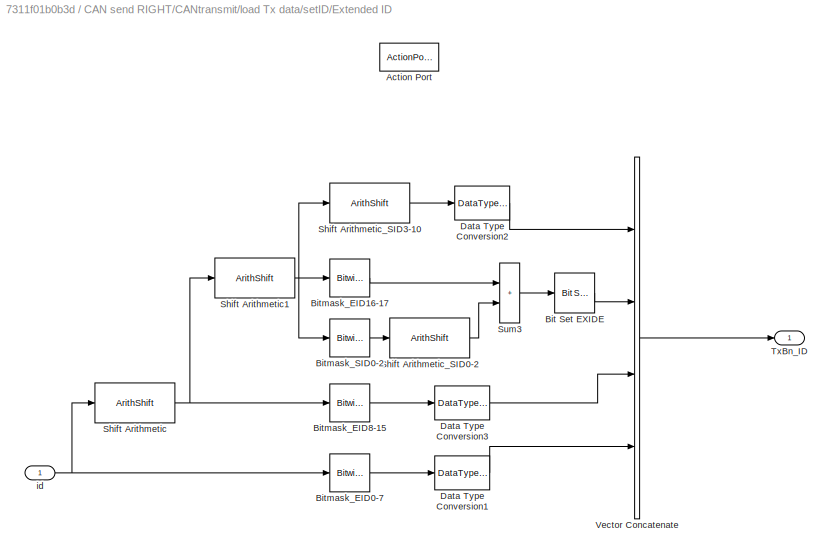
BLOCK [SubSystem] CAN send RIGHT/CANtransmit/load Tx data/setID/Extended ID
  Ports = [1, 1, 0, 0, 0, 0, 0, 1]
  RequestExecContextInheritance = off
  TreatAsAtomicUnit = on
BLOCK [ActionPort] CAN send RIGHT/CANtransmit/load Tx data/setID/Extended ID/Action Port
  ActionPortLabel = if(u1 > 0)
BLOCK [Reference] CAN send RIGHT/CANtransmit/load Tx data/setID/Extended ID/Bit Set EXIDE  REF=simulink/Logic and Bit
Operations/Bit Set
  Ports = [1, 1]
  SourceBlock = simulink/Logic and Bit\nOperations/Bit Set
  SourceProductBaseCode = SL
  SourceType = Bit Set
BLOCK [Reference] CAN send RIGHT/CANtransmit/load Tx data/setID/Extended ID/Bitmask_EID0-7  REF=simulink/Logic and Bit
Operations/Bitwise
Operator
  Ports = [1, 1]
  SourceBlock = simulink/Logic and Bit\nOperations/Bitwise\nOperator
  SourceProductBaseCode = SL
  SourceType = Bitwise Operator
BLOCK [Reference] CAN send RIGHT/CANtransmit/load Tx data/setID/Extended ID/Bitmask_EID16-17  REF=simulink/Logic and Bit
Operations/Bitwise
Operator
  Ports = [1, 1]
  SourceBlock = simulink/Logic and Bit\nOperations/Bitwise\nOperator
  SourceProductBaseCode = SL
  SourceType = Bitwise Operator
BLOCK [Reference] CAN send RIGHT/CANtransmit/load Tx data/setID/Extended ID/Bitmask_EID8-15  REF=simulink/Logic and Bit
Operations/Bitwise
Operator
  Ports = [1, 1]
  SourceBlock = simulink/Logic and Bit\nOperations/Bitwise\nOperator
  SourceProductBaseCode = SL
  SourceType = Bitwise Operator
BLOCK [Reference] CAN send RIGHT/CANtransmit/load Tx data/setID/Extended ID/Bitmask_SID0-2  REF=simulink/Logic and Bit
Operations/Bitwise
Operator
  Ports = [1, 1]
  SourceBlock = simulink/Logic and Bit\nOperations/Bitwise\nOperator
  SourceProductBaseCode = SL
  SourceType = Bitwise Operator
BLOCK [DataTypeConversion] CAN send RIGHT/CANtransmit/load Tx data/setID/Extended ID/Data Type Conversion1
  OutDataTypeStr = uint8
  RndMeth = Simplest
  SaturateOnIntegerOverflow = off
BLOCK [DataTypeConversion] CAN send RIGHT/CANtransmit/load Tx data/setID/Extended ID/Data Type Conversion2
  OutDataTypeStr = uint8
  RndMeth = Simplest
  SaturateOnIntegerOverflow = off
BLOCK [DataTypeConversion] CAN send RIGHT/CANtransmit/load Tx data/setID/Extended ID/Data Type Conversion3
  OutDataTypeStr = uint8
  RndMeth = Simplest
  SaturateOnIntegerOverflow = off
BLOCK [ArithShift] CAN send RIGHT/CANtransmit/load Tx data/setID/Extended ID/Shift Arithmetic
  BitShiftDirection = Right
  BitShiftNumber = 8
  InputPortMap = u0
  Ports = [1, 1]
BLOCK [ArithShift] CAN send RIGHT/CANtransmit/load Tx data/setID/Extended ID/Shift Arithmetic1
  BitShiftDirection = Right
  BitShiftNumber = 8
  InputPortMap = u0
  Ports = [1, 1]
BLOCK [ArithShift] CAN send RIGHT/CANtransmit/load Tx data/setID/Extended ID/Shift Arithmetic_SID0-2
  BitShiftDirection = Left
  BitShiftNumber = 3
  InputPortMap = u0
  Ports = [1, 1]
BLOCK [ArithShift] CAN send RIGHT/CANtransmit/load Tx data/setID/Extended ID/Shift Arithmetic_SID3-10
  BitShiftDirection = Right
  BitShiftNumber = 5
  InputPortMap = u0
  Ports = [1, 1]
BLOCK [Sum] CAN send RIGHT/CANtransmit/load Tx data/setID/Extended ID/Sum3
  IconShape = rectangular
  OutDataTypeStr = uint8
  Ports = [2, 1]
BLOCK [Outport] CAN send RIGHT/CANtransmit/load Tx data/setID/Extended ID/TxBn_ID
  VectorParamsAs1DForOutWhenUnconnected = off
BLOCK [Concatenate] CAN send RIGHT/CANtransmit/load Tx data/setID/Extended ID/Vector Concatenate
  NumInputs = 4
  Ports = [4, 1]
BLOCK [Inport] CAN send RIGHT/CANtransmit/load Tx data/setID/Extended ID/id
BLOCK [If] CAN send RIGHT/CANtransmit/load Tx data/setID/If
  Ports = [1, 2]
BLOCK [Merge] CAN send RIGHT/CANtransmit/load Tx data/setID/Merge
  Ports = [2, 1]
BLOCK [SubSystem] CAN send RIGHT/CANtransmit/load Tx data/setID/Standard ID
  Ports = [1, 1, 0, 0, 0, 0, 0, 1]
  RequestExecContextInheritance = off
  TreatAsAtomicUnit = on
BLOCK [ActionPort] CAN send RIGHT/CANtransmit/load Tx data/setID/Standard ID/Action Port
  ActionPortLabel = else
BLOCK [Outport] CAN send RIGHT/CANtransmit/load Tx data/setID/Standard ID/TxBn_ID
  VectorParamsAs1DForOutWhenUnconnected = off
BLOCK [Concatenate] CAN send RIGHT/CANtransmit/load Tx data/setID/Standard ID/Vector Concatenate
  NumInputs = 4
  Ports = [4, 1]
BLOCK [SubSystem] CAN send RIGHT/CANtransmit/load Tx data/setID/Standard ID/convert_ID
  Ports = [1, 2]
  RequestExecContextInheritance = off
  TreatAsAtomicUnit = on
BLOCK [Reference] CAN send RIGHT/CANtransmit/load Tx data/setID/Standard ID/convert_ID/Bitmask_SID0-10  REF=simulink/Logic and Bit
Operations/Bitwise
Operator
  Ports = [1, 1]
  SourceBlock = simulink/Logic and Bit\nOperations/Bitwise\nOperator
  SourceProductBaseCode = SL
  SourceType = Bitwise Operator
BLOCK [Reference] CAN send RIGHT/CANtransmit/load Tx data/setID/Standard ID/convert_ID/Bitmask_SID0-2  REF=simulink/Logic and Bit
Operations/Bitwise
Operator
  Ports = [1, 1]
  SourceBlock = simulink/Logic and Bit\nOperations/Bitwise\nOperator
  SourceProductBaseCode = SL
  SourceType = Bitwise Operator
BLOCK [DataTypeConversion] CAN send RIGHT/CANtransmit/load Tx data/setID/Standard ID/convert_ID/Data Type Conversion1
  OutDataTypeStr = uint8
  RndMeth = Simplest
  SaturateOnIntegerOverflow = off
BLOCK [DataTypeConversion] CAN send RIGHT/CANtransmit/load Tx data/setID/Standard ID/convert_ID/Data Type Conversion2
  OutDataTypeStr = uint8
  RndMeth = Simplest
  SaturateOnIntegerOverflow = off
BLOCK [Outport] CAN send RIGHT/CANtransmit/load Tx data/setID/Standard ID/convert_ID/SIDH
  VectorParamsAs1DForOutWhenUnconnected = off
BLOCK [Outport] CAN send RIGHT/CANtransmit/load Tx data/setID/Standard ID/convert_ID/SIDL
  Port = 2
  VectorParamsAs1DForOutWhenUnconnected = off
BLOCK [ArithShift] CAN send RIGHT/CANtransmit/load Tx data/setID/Standard ID/convert_ID/Shift Arithmetic1
  BitShiftDirection = Right
  BitShiftNumber = 3
  InputPortMap = u0
  Ports = [1, 1]
BLOCK [ArithShift] CAN send RIGHT/CANtransmit/load Tx data/setID/Standard ID/convert_ID/Shift Arithmetic2
  BitShiftDirection = Left
  BitShiftNumber = 5
  InputPortMap = u0
  Ports = [1, 1]
BLOCK [Inport] CAN send RIGHT/CANtransmit/load Tx data/setID/Standard ID/convert_ID/id
BLOCK [Inport] CAN send RIGHT/CANtransmit/load Tx data/setID/Standard ID/id
BLOCK [Constant] CAN send RIGHT/CANtransmit/load Tx data/setID/Standard ID/no data
  OutDataTypeStr = uint8
  Value = 0
BLOCK [Outport] CAN send RIGHT/CANtransmit/load Tx data/setID/TxBn_ID
  VectorParamsAs1DForOutWhenUnconnected = off
BLOCK [Inport] CAN send RIGHT/CANtransmit/load Tx data/setID/ext
BLOCK [Inport] CAN send RIGHT/CANtransmit/load Tx data/setID/id
  Port = 2
BLOCK [SubSystem] CAN send RIGHT/CANtransmit/send TxB0
  Ports = [1, 1]
  RequestExecContextInheritance = off
  TreatAsAtomicUnit = on
BLOCK [Inport] CAN send RIGHT/CANtransmit/send TxB0/In1
BLOCK [Constant] CAN send RIGHT/CANtransmit/send TxB0/MCP_TxB0CTRL
  OutDataTypeStr = uint8
  Value = hex2dec('30')
BLOCK [Outport] CAN send RIGHT/CANtransmit/send TxB0/Out1
  VectorParamsAs1DForOutWhenUnconnected = off
BLOCK [Constant] CAN send RIGHT/CANtransmit/send TxB0/TxREQ
  OutDataTypeStr = uint8
  Value = 8
BLOCK [SubSystem] CAN send RIGHT/CANtransmit/send TxB0/mcp2515_writeRegister
  Ports = [3, 1]
  RequestExecContextInheritance = off
  TreatAsAtomicUnit = on
BLOCK [Inport] CAN send RIGHT/CANtransmit/send TxB0/mcp2515_writeRegister/In
BLOCK [Constant] CAN send RIGHT/CANtransmit/send TxB0/mcp2515_writeRegister/MCP_WRITE
  OutDataTypeStr = uint8
  Value = 2
BLOCK [Outport] CAN send RIGHT/CANtransmit/send TxB0/mcp2515_writeRegister/Out
  VectorParamsAs1DForOutWhenUnconnected = off
BLOCK [Reference] CAN send RIGHT/CANtransmit/send TxB0/mcp2515_writeRegister/SPI driver  REF=mcp2515lib/CAN application/mcp2515 driver/SPI driver
  Ports = [1, 1]
  SourceBlock = mcp2515lib/CAN application/mcp2515 driver/SPI driver
  SourceProductName = CAN device driver for mcp2515
  SourceType = SubSystem
BLOCK [Selector] CAN send RIGHT/CANtransmit/send TxB0/mcp2515_writeRegister/Selector
  IndexMode = Zero-based
  IndexOptions = Index vector (dialog)
  Indices = 0
  InputPortWidth = 3
  OutputSizes = 1
  Ports = [1, 1]
BLOCK [DataStoreWrite] CAN send RIGHT/CANtransmit/send TxB0/mcp2515_writeRegister/Temporary buffer
  DataStoreName = temp_1byte
  IndexOptions = Index vector (dialog)
  Indices = 1
  OutputSizes = 1
  Ports = [1]
BLOCK [Concatenate] CAN send RIGHT/CANtransmit/send TxB0/mcp2515_writeRegister/Vector Concatenate
  NumInputs = 3
  Ports = [3, 1]
BLOCK [Inport] CAN send RIGHT/CANtransmit/send TxB0/mcp2515_writeRegister/address
  OutDataTypeStr = uint8
  Port = 2
BLOCK [Inport] CAN send RIGHT/CANtransmit/send TxB0/mcp2515_writeRegister/value
  OutDataTypeStr = uint8
  Port = 3
BLOCK [Constant] CAN send RIGHT/Constant1
  OutDataTypeStr = int32
  Value = 0
BLOCK [Inport] CAN send RIGHT/Current (A)
  OutDataTypeStr = int32
BLOCK [Constant] CAN send RIGHT/DLC
  OutDataTypeStr = uint8
  Value = 4
BLOCK [DataTypeConversion] CAN send RIGHT/Data Type Conversion
  OutDataTypeStr = uint32
  RndMeth = Floor
  SaturateOnIntegerOverflow = off
BLOCK [Display] CAN send RIGHT/Display
  Decimation = 1
  Ports = [1]
BLOCK [Gain] CAN send RIGHT/Gain2
  Gain = 1000
  OutDataTypeStr = int32
BLOCK [Ground] CAN send RIGHT/Ground
BLOCK [Constant] CAN send RIGHT/ID
  OutDataTypeStr = uint32
  Value = 0x101
BLOCK [SubSystem] CAN send RIGHT/MATLAB Function
  ErrorFcn = Stateflow.Translate.translate
  PermitHierarchicalResolution = ExplicitOnly
  Ports = [1, 1]
  RequestExecContextInheritance = off
  SFBlockType = MATLAB Function
  TreatAsAtomicUnit = on
BLOCK [Demux] CAN send RIGHT/MATLAB Function/ Demux 
  Outputs = 1
  Ports = [1, 1]
BLOCK [S-Function] CAN send RIGHT/MATLAB Function/ SFunction 
  EnableBusSupport = on
  FunctionName = sf_sfun
  PortCounts = [1 2]
  Ports = [1, 2]
  SFcnIsStateOwnerBlock = off
  SFunctionDeploymentMode = off
  Tag = Stateflow S-Function 4
BLOCK [Terminator] CAN send RIGHT/MATLAB Function/ Terminator 
BLOCK [Inport] CAN send RIGHT/MATLAB Function/A
BLOCK [Outport] CAN send RIGHT/MATLAB Function/B
BLOCK [Terminator] CAN send RIGHT/Terminator
BLOCK [Terminator] CAN send RIGHT/Terminator1
BLOCK [Constant] CAN send RIGHT/ext
  OutDataTypeStr = uint8
BLOCK [SubSystem] CANbegin - WARNING, CONTAINS HARDCODED VALUES
  Ports = []
  RTWSystemCode = Nonreusable function
  RequestExecContextInheritance = off
  TreatAsAtomicUnit = on
BLOCK [Constant] CANbegin - WARNING, CONTAINS HARDCODED VALUES/Constant
  OutDataTypeStr = boolean
  SampleTime = -1
  Value = 0
BLOCK [DataStoreMemory] CANbegin - WARNING, CONTAINS HARDCODED VALUES/Temporary buffer
  DataStoreName = temp_1byte
  OutDataTypeStr = uint8
  ReadBeforeWriteMsg = warning
  ShowAdditionalParam = off
  SignalType = real
  WriteAfterReadMsg = warning
  WriteAfterWriteMsg = warning
BLOCK [UnitDelay] CANbegin - WARNING, CONTAINS HARDCODED VALUES/Unit Delay
  HasFrameUpgradeWarning = on
  InitialCondition = 1
  SampleTime = -1
BLOCK [SubSystem] CANbegin - WARNING, CONTAINS HARDCODED VALUES/setup
  Ports = [0, 0, 1]
  RTWFileNameOpts = Use subsystem name
  RTWSystemCode = Nonreusable function
  RequestExecContextInheritance = off
  TreatAsAtomicUnit = on
BLOCK [Constant] CANbegin - WARNING, CONTAINS HARDCODED VALUES/setup/CNF1
  OutDataTypeStr = uint8
  Value = address2A
BLOCK [Constant] CANbegin - WARNING, CONTAINS HARDCODED VALUES/setup/CNF2
  OutDataTypeStr = uint8
  Value = address29
BLOCK [Constant] CANbegin - WARNING, CONTAINS HARDCODED VALUES/setup/CNF3
  OutDataTypeStr = uint8
  Value = address28
BLOCK [EnablePort] CANbegin - WARNING, CONTAINS HARDCODED VALUES/setup/Enable
  Ports = []
BLOCK [Ground] CANbegin - WARNING, CONTAINS HARDCODED VALUES/setup/Ground
BLOCK [Terminator] CANbegin - WARNING, CONTAINS HARDCODED VALUES/setup/Terminator
BLOCK [SubSystem] CANbegin - WARNING, CONTAINS HARDCODED VALUES/setup/changeCANmode(config)
  Ports = [1, 1]
  RequestExecContextInheritance = off
  TreatAsAtomicUnit = on
BLOCK [Inport] CANbegin - WARNING, CONTAINS HARDCODED VALUES/setup/changeCANmode(config)/In
BLOCK [Constant] CANbegin - WARNING, CONTAINS HARDCODED VALUES/setup/changeCANmode(config)/MCP_CANCTRL
  OutDataTypeStr = uint8
  Value = hex2dec('0F')
BLOCK [Constant] CANbegin - WARNING, CONTAINS HARDCODED VALUES/setup/changeCANmode(config)/MODE_CONFIG
  OutDataTypeStr = uint8
  Value = hex2dec('80')
BLOCK [Constant] CANbegin - WARNING, CONTAINS HARDCODED VALUES/setup/changeCANmode(config)/MODE_MASK
  OutDataTypeStr = uint8
  Value = hex2dec('E0')
BLOCK [Outport] CANbegin - WARNING, CONTAINS HARDCODED VALUES/setup/changeCANmode(config)/Out
  VectorParamsAs1DForOutWhenUnconnected = off
BLOCK [SubSystem] CANbegin - WARNING, CONTAINS HARDCODED VALUES/setup/changeCANmode(config)/mcp2515_modifyRegister
  Ports = [4, 1]
  RequestExecContextInheritance = off
  TreatAsAtomicUnit = on
BLOCK [Inport] CANbegin - WARNING, CONTAINS HARDCODED VALUES/setup/changeCANmode(config)/mcp2515_modifyRegister/In
BLOCK [Constant] CANbegin - WARNING, CONTAINS HARDCODED VALUES/setup/changeCANmode(config)/mcp2515_modifyRegister/MCP_BITMOD
  OutDataTypeStr = uint8
  Value = 5
BLOCK [Outport] CANbegin - WARNING, CONTAINS HARDCODED VALUES/setup/changeCANmode(config)/mcp2515_modifyRegister/Out
  VectorParamsAs1DForOutWhenUnconnected = off
BLOCK [Reference] CANbegin - WARNING, CONTAINS HARDCODED VALUES/setup/changeCANmode(config)/mcp2515_modifyRegister/SPI driver  REF=mcp2515lib/CAN application/mcp2515 driver/SPI driver
  Ports = [1, 1]
  SourceBlock = mcp2515lib/CAN application/mcp2515 driver/SPI driver
  SourceProductName = CAN device driver for mcp2515
  SourceType = SubSystem
BLOCK [Selector] CANbegin - WARNING, CONTAINS HARDCODED VALUES/setup/changeCANmode(config)/mcp2515_modifyRegister/Selector
  IndexMode = Zero-based
  IndexOptions = Index vector (dialog)
  Indices = 0
  InputPortWidth = 4
  OutputSizes = 1
  Ports = [1, 1]
BLOCK [DataStoreWrite] CANbegin - WARNING, CONTAINS HARDCODED VALUES/setup/changeCANmode(config)/mcp2515_modifyRegister/Temporary buffer
  DataStoreName = temp_1byte
  IndexOptions = Index vector (dialog)
  Indices = 1
  OutputSizes = 1
  Ports = [1]
BLOCK [Concatenate] CANbegin - WARNING, CONTAINS HARDCODED VALUES/setup/changeCANmode(config)/mcp2515_modifyRegister/Vector Concatenate
  NumInputs = 4
  Ports = [4, 1]
BLOCK [Inport] CANbegin - WARNING, CONTAINS HARDCODED VALUES/setup/changeCANmode(config)/mcp2515_modifyRegister/address
  Port = 2
BLOCK [Inport] CANbegin - WARNING, CONTAINS HARDCODED VALUES/setup/changeCANmode(config)/mcp2515_modifyRegister/data
  Port = 4
BLOCK [Inport] CANbegin - WARNING, CONTAINS HARDCODED VALUES/setup/changeCANmode(config)/mcp2515_modifyRegister/mask
  Port = 3
BLOCK [SubSystem] CANbegin - WARNING, CONTAINS HARDCODED VALUES/setup/changeCANmode(normal)
  Ports = [1, 1]
  RequestExecContextInheritance = off
  TreatAsAtomicUnit = on
BLOCK [Inport] CANbegin - WARNING, CONTAINS HARDCODED VALUES/setup/changeCANmode(normal)/In
BLOCK [Constant] CANbegin - WARNING, CONTAINS HARDCODED VALUES/setup/changeCANmode(normal)/MCP_CANCTRL
  OutDataTypeStr = uint8
  Value = hex2dec('0F')
BLOCK [Constant] CANbegin - WARNING, CONTAINS HARDCODED VALUES/setup/changeCANmode(normal)/MODE_MASK
  OutDataTypeStr = uint8
  Value = hex2dec('E0')
BLOCK [Constant] CANbegin - WARNING, CONTAINS HARDCODED VALUES/setup/changeCANmode(normal)/MODE_NORMAL
  OutDataTypeStr = uint8
  Value = 0
BLOCK [Outport] CANbegin - WARNING, CONTAINS HARDCODED VALUES/setup/changeCANmode(normal)/Out
  VectorParamsAs1DForOutWhenUnconnected = off
BLOCK [SubSystem] CANbegin - WARNING, CONTAINS HARDCODED VALUES/setup/changeCANmode(normal)/mcp2515_modifyRegister
  Ports = [4, 1]
  RequestExecContextInheritance = off
  TreatAsAtomicUnit = on
BLOCK [Inport] CANbegin - WARNING, CONTAINS HARDCODED VALUES/setup/changeCANmode(normal)/mcp2515_modifyRegister/In
BLOCK [Constant] CANbegin - WARNING, CONTAINS HARDCODED VALUES/setup/changeCANmode(normal)/mcp2515_modifyRegister/MCP_BITMOD
  OutDataTypeStr = uint8
  Value = 5
BLOCK [Outport] CANbegin - WARNING, CONTAINS HARDCODED VALUES/setup/changeCANmode(normal)/mcp2515_modifyRegister/Out
  VectorParamsAs1DForOutWhenUnconnected = off
BLOCK [Reference] CANbegin - WARNING, CONTAINS HARDCODED VALUES/setup/changeCANmode(normal)/mcp2515_modifyRegister/SPI driver  REF=mcp2515lib/CAN application/mcp2515 driver/SPI driver
  Ports = [1, 1]
  SourceBlock = mcp2515lib/CAN application/mcp2515 driver/SPI driver
  SourceProductName = CAN device driver for mcp2515
  SourceType = SubSystem
BLOCK [Selector] CANbegin - WARNING, CONTAINS HARDCODED VALUES/setup/changeCANmode(normal)/mcp2515_modifyRegister/Selector
  IndexMode = Zero-based
  IndexOptions = Index vector (dialog)
  Indices = 0
  InputPortWidth = 4
  OutputSizes = 1
  Ports = [1, 1]
BLOCK [DataStoreWrite] CANbegin - WARNING, CONTAINS HARDCODED VALUES/setup/changeCANmode(normal)/mcp2515_modifyRegister/Temporary buffer
  DataStoreName = temp_1byte
  IndexOptions = Index vector (dialog)
  Indices = 1
  OutputSizes = 1
  Ports = [1]
BLOCK [Concatenate] CANbegin - WARNING, CONTAINS HARDCODED VALUES/setup/changeCANmode(normal)/mcp2515_modifyRegister/Vector Concatenate
  NumInputs = 4
  Ports = [4, 1]
BLOCK [Inport] CANbegin - WARNING, CONTAINS HARDCODED VALUES/setup/changeCANmode(normal)/mcp2515_modifyRegister/address
  Port = 2
BLOCK [Inport] CANbegin - WARNING, CONTAINS HARDCODED VALUES/setup/changeCANmode(normal)/mcp2515_modifyRegister/data
  Port = 4
BLOCK [Inport] CANbegin - WARNING, CONTAINS HARDCODED VALUES/setup/changeCANmode(normal)/mcp2515_modifyRegister/mask
  Port = 3
BLOCK [SubSystem] CANbegin - WARNING, CONTAINS HARDCODED VALUES/setup/mcp2515_reset
  Ports = [1, 1]
  RequestExecContextInheritance = off
  TreatAsAtomicUnit = on
BLOCK [Inport] CANbegin - WARNING, CONTAINS HARDCODED VALUES/setup/mcp2515_reset/In
BLOCK [Constant] CANbegin - WARNING, CONTAINS HARDCODED VALUES/setup/mcp2515_reset/MCP_RESET
  OutDataTypeStr = uint8
  Value = hex2dec('C0')
BLOCK [Outport] CANbegin - WARNING, CONTAINS HARDCODED VALUES/setup/mcp2515_reset/Out
  VectorParamsAs1DForOutWhenUnconnected = off
BLOCK [Reference] CANbegin - WARNING, CONTAINS HARDCODED VALUES/setup/mcp2515_reset/SPI driver  REF=mcp2515lib/CAN application/mcp2515 driver/SPI driver
  Ports = [1, 1]
  SourceBlock = mcp2515lib/CAN application/mcp2515 driver/SPI driver
  SourceProductName = CAN device driver for mcp2515
  SourceType = SubSystem
BLOCK [DataStoreWrite] CANbegin - WARNING, CONTAINS HARDCODED VALUES/setup/mcp2515_reset/Temporary buffer
  DataStoreName = temp_1byte
  IndexOptions = Index vector (dialog)
  Indices = 1
  OutputSizes = 1
  Ports = [1]
BLOCK [SubSystem] CANbegin - WARNING, CONTAINS HARDCODED VALUES/setup/setCANRxBuffer
  Ports = [1, 1]
  RequestExecContextInheritance = off
  TreatAsAtomicUnit = on
BLOCK [Inport] CANbegin - WARNING, CONTAINS HARDCODED VALUES/setup/setCANRxBuffer/In
BLOCK [Constant] CANbegin - WARNING, CONTAINS HARDCODED VALUES/setup/setCANRxBuffer/MCP_RXB0CTRL
  OutDataTypeStr = uint8
  Value = hex2dec('60')
BLOCK [Constant] CANbegin - WARNING, CONTAINS HARDCODED VALUES/setup/setCANRxBuffer/MCP_RXB1CTRL
  OutDataTypeStr = uint8
  Value = hex2dec('70')
BLOCK [Constant] CANbegin - WARNING, CONTAINS HARDCODED VALUES/setup/setCANRxBuffer/MCP_RXB_RX_MASK
  OutDataTypeStr = uint8
  Value = hex2dec('60')
BLOCK [Outport] CANbegin - WARNING, CONTAINS HARDCODED VALUES/setup/setCANRxBuffer/Out
  VectorParamsAs1DForOutWhenUnconnected = off
BLOCK [SubSystem] CANbegin - WARNING, CONTAINS HARDCODED VALUES/setup/setCANRxBuffer/mcp2515_writeRegister
  Ports = [3, 1]
  RequestExecContextInheritance = off
  TreatAsAtomicUnit = on
BLOCK [Inport] CANbegin - WARNING, CONTAINS HARDCODED VALUES/setup/setCANRxBuffer/mcp2515_writeRegister/In
BLOCK [Constant] CANbegin - WARNING, CONTAINS HARDCODED VALUES/setup/setCANRxBuffer/mcp2515_writeRegister/MCP_WRITE
  OutDataTypeStr = uint8
  Value = 2
BLOCK [Outport] CANbegin - WARNING, CONTAINS HARDCODED VALUES/setup/setCANRxBuffer/mcp2515_writeRegister/Out
  VectorParamsAs1DForOutWhenUnconnected = off
BLOCK [Reference] CANbegin - WARNING, CONTAINS HARDCODED VALUES/setup/setCANRxBuffer/mcp2515_writeRegister/SPI driver  REF=mcp2515lib/CAN application/mcp2515 driver/SPI driver
  Ports = [1, 1]
  SourceBlock = mcp2515lib/CAN application/mcp2515 driver/SPI driver
  SourceProductName = CAN device driver for mcp2515
  SourceType = SubSystem
BLOCK [Selector] CANbegin - WARNING, CONTAINS HARDCODED VALUES/setup/setCANRxBuffer/mcp2515_writeRegister/Selector
  IndexMode = Zero-based
  IndexOptions = Index vector (dialog)
  Indices = 0
  InputPortWidth = 3
  OutputSizes = 1
  Ports = [1, 1]
BLOCK [DataStoreWrite] CANbegin - WARNING, CONTAINS HARDCODED VALUES/setup/setCANRxBuffer/mcp2515_writeRegister/Temporary buffer
  DataStoreName = temp_1byte
  IndexOptions = Index vector (dialog)
  Indices = 1
  OutputSizes = 1
  Ports = [1]
BLOCK [Concatenate] CANbegin - WARNING, CONTAINS HARDCODED VALUES/setup/setCANRxBuffer/mcp2515_writeRegister/Vector Concatenate
  NumInputs = 3
  Ports = [3, 1]
BLOCK [Inport] CANbegin - WARNING, CONTAINS HARDCODED VALUES/setup/setCANRxBuffer/mcp2515_writeRegister/address
  OutDataTypeStr = uint8
  Port = 2
BLOCK [Inport] CANbegin - WARNING, CONTAINS HARDCODED VALUES/setup/setCANRxBuffer/mcp2515_writeRegister/value
  OutDataTypeStr = uint8
  Port = 3
BLOCK [SubSystem] CANbegin - WARNING, CONTAINS HARDCODED VALUES/setup/setCANRxBuffer/mcp2515_writeRegister1
  Ports = [3, 1]
  RequestExecContextInheritance = off
  TreatAsAtomicUnit = on
BLOCK [Inport] CANbegin - WARNING, CONTAINS HARDCODED VALUES/setup/setCANRxBuffer/mcp2515_writeRegister1/In
BLOCK [Constant] CANbegin - WARNING, CONTAINS HARDCODED VALUES/setup/setCANRxBuffer/mcp2515_writeRegister1/MCP_WRITE
  OutDataTypeStr = uint8
  Value = 2
BLOCK [Outport] CANbegin - WARNING, CONTAINS HARDCODED VALUES/setup/setCANRxBuffer/mcp2515_writeRegister1/Out
  VectorParamsAs1DForOutWhenUnconnected = off
BLOCK [Reference] CANbegin - WARNING, CONTAINS HARDCODED VALUES/setup/setCANRxBuffer/mcp2515_writeRegister1/SPI driver  REF=mcp2515lib/CAN application/mcp2515 driver/SPI driver
  Ports = [1, 1]
  SourceBlock = mcp2515lib/CAN application/mcp2515 driver/SPI driver
  SourceProductName = CAN device driver for mcp2515
  SourceType = SubSystem
BLOCK [Selector] CANbegin - WARNING, CONTAINS HARDCODED VALUES/setup/setCANRxBuffer/mcp2515_writeRegister1/Selector
  IndexMode = Zero-based
  IndexOptions = Index vector (dialog)
  Indices = 0
  InputPortWidth = 3
  OutputSizes = 1
  Ports = [1, 1]
BLOCK [DataStoreWrite] CANbegin - WARNING, CONTAINS HARDCODED VALUES/setup/setCANRxBuffer/mcp2515_writeRegister1/Temporary buffer
  DataStoreName = temp_1byte
  IndexOptions = Index vector (dialog)
  Indices = 1
  OutputSizes = 1
  Ports = [1]
BLOCK [Concatenate] CANbegin - WARNING, CONTAINS HARDCODED VALUES/setup/setCANRxBuffer/mcp2515_writeRegister1/Vector Concatenate
  NumInputs = 3
  Ports = [3, 1]
BLOCK [Inport] CANbegin - WARNING, CONTAINS HARDCODED VALUES/setup/setCANRxBuffer/mcp2515_writeRegister1/address
  OutDataTypeStr = uint8
  Port = 2
BLOCK [Inport] CANbegin - WARNING, CONTAINS HARDCODED VALUES/setup/setCANRxBuffer/mcp2515_writeRegister1/value
  OutDataTypeStr = uint8
  Port = 3
BLOCK [SubSystem] CANbegin - WARNING, CONTAINS HARDCODED VALUES/setup/setCANspeed
  Ports = [4, 1]
  RequestExecContextInheritance = off
  TreatAsAtomicUnit = on
BLOCK [Inport] CANbegin - WARNING, CONTAINS HARDCODED VALUES/setup/setCANspeed/CNF1
  Port = 2
BLOCK [Inport] CANbegin - WARNING, CONTAINS HARDCODED VALUES/setup/setCANspeed/CNF2
  Port = 3
BLOCK [Inport] CANbegin - WARNING, CONTAINS HARDCODED VALUES/setup/setCANspeed/CNF3
  Port = 4
BLOCK [Inport] CANbegin - WARNING, CONTAINS HARDCODED VALUES/setup/setCANspeed/In
BLOCK [Constant] CANbegin - WARNING, CONTAINS HARDCODED VALUES/setup/setCANspeed/MCP_CNF1
  OutDataTypeStr = uint8
  Value = hex2dec('2A')
BLOCK [Constant] CANbegin - WARNING, CONTAINS HARDCODED VALUES/setup/setCANspeed/MCP_CNF2
  OutDataTypeStr = uint8
  Value = hex2dec('29')
BLOCK [Constant] CANbegin - WARNING, CONTAINS HARDCODED VALUES/setup/setCANspeed/MCP_CNF3
  OutDataTypeStr = uint8
  Value = hex2dec('28')
BLOCK [Outport] CANbegin - WARNING, CONTAINS HARDCODED VALUES/setup/setCANspeed/Out
  VectorParamsAs1DForOutWhenUnconnected = off
BLOCK [SubSystem] CANbegin - WARNING, CONTAINS HARDCODED VALUES/setup/setCANspeed/mcp2515_writeRegister1
  Ports = [3, 1]
  RequestExecContextInheritance = off
  TreatAsAtomicUnit = on
BLOCK [Inport] CANbegin - WARNING, CONTAINS HARDCODED VALUES/setup/setCANspeed/mcp2515_writeRegister1/In
BLOCK [Constant] CANbegin - WARNING, CONTAINS HARDCODED VALUES/setup/setCANspeed/mcp2515_writeRegister1/MCP_WRITE
  OutDataTypeStr = uint8
  Value = 2
BLOCK [Outport] CANbegin - WARNING, CONTAINS HARDCODED VALUES/setup/setCANspeed/mcp2515_writeRegister1/Out
  VectorParamsAs1DForOutWhenUnconnected = off
BLOCK [Reference] CANbegin - WARNING, CONTAINS HARDCODED VALUES/setup/setCANspeed/mcp2515_writeRegister1/SPI driver  REF=mcp2515lib/CAN application/mcp2515 driver/SPI driver
  Ports = [1, 1]
  SourceBlock = mcp2515lib/CAN application/mcp2515 driver/SPI driver
  SourceProductName = CAN device driver for mcp2515
  SourceType = SubSystem
BLOCK [Selector] CANbegin - WARNING, CONTAINS HARDCODED VALUES/setup/setCANspeed/mcp2515_writeRegister1/Selector
  IndexMode = Zero-based
  IndexOptions = Index vector (dialog)
  Indices = 0
  InputPortWidth = 3
  OutputSizes = 1
  Ports = [1, 1]
BLOCK [DataStoreWrite] CANbegin - WARNING, CONTAINS HARDCODED VALUES/setup/setCANspeed/mcp2515_writeRegister1/Temporary buffer
  DataStoreName = temp_1byte
  IndexOptions = Index vector (dialog)
  Indices = 1
  OutputSizes = 1
  Ports = [1]
BLOCK [Concatenate] CANbegin - WARNING, CONTAINS HARDCODED VALUES/setup/setCANspeed/mcp2515_writeRegister1/Vector Concatenate
  NumInputs = 3
  Ports = [3, 1]
BLOCK [Inport] CANbegin - WARNING, CONTAINS HARDCODED VALUES/setup/setCANspeed/mcp2515_writeRegister1/address
  OutDataTypeStr = uint8
  Port = 2
BLOCK [Inport] CANbegin - WARNING, CONTAINS HARDCODED VALUES/setup/setCANspeed/mcp2515_writeRegister1/value
  OutDataTypeStr = uint8
  Port = 3
BLOCK [SubSystem] CANbegin - WARNING, CONTAINS HARDCODED VALUES/setup/setCANspeed/mcp2515_writeRegister2
  Ports = [3, 1]
  RequestExecContextInheritance = off
  TreatAsAtomicUnit = on
BLOCK [Inport] CANbegin - WARNING, CONTAINS HARDCODED VALUES/setup/setCANspeed/mcp2515_writeRegister2/In
BLOCK [Constant] CANbegin - WARNING, CONTAINS HARDCODED VALUES/setup/setCANspeed/mcp2515_writeRegister2/MCP_WRITE
  OutDataTypeStr = uint8
  Value = 2
BLOCK [Outport] CANbegin - WARNING, CONTAINS HARDCODED VALUES/setup/setCANspeed/mcp2515_writeRegister2/Out
  VectorParamsAs1DForOutWhenUnconnected = off
BLOCK [Reference] CANbegin - WARNING, CONTAINS HARDCODED VALUES/setup/setCANspeed/mcp2515_writeRegister2/SPI driver  REF=mcp2515lib/CAN application/mcp2515 driver/SPI driver
  Ports = [1, 1]
  SourceBlock = mcp2515lib/CAN application/mcp2515 driver/SPI driver
  SourceProductName = CAN device driver for mcp2515
  SourceType = SubSystem
BLOCK [Selector] CANbegin - WARNING, CONTAINS HARDCODED VALUES/setup/setCANspeed/mcp2515_writeRegister2/Selector
  IndexMode = Zero-based
  IndexOptions = Index vector (dialog)
  Indices = 0
  InputPortWidth = 3
  OutputSizes = 1
  Ports = [1, 1]
BLOCK [DataStoreWrite] CANbegin - WARNING, CONTAINS HARDCODED VALUES/setup/setCANspeed/mcp2515_writeRegister2/Temporary buffer
  DataStoreName = temp_1byte
  IndexOptions = Index vector (dialog)
  Indices = 1
  OutputSizes = 1
  Ports = [1]
BLOCK [Concatenate] CANbegin - WARNING, CONTAINS HARDCODED VALUES/setup/setCANspeed/mcp2515_writeRegister2/Vector Concatenate
  NumInputs = 3
  Ports = [3, 1]
BLOCK [Inport] CANbegin - WARNING, CONTAINS HARDCODED VALUES/setup/setCANspeed/mcp2515_writeRegister2/address
  OutDataTypeStr = uint8
  Port = 2
BLOCK [Inport] CANbegin - WARNING, CONTAINS HARDCODED VALUES/setup/setCANspeed/mcp2515_writeRegister2/value
  OutDataTypeStr = uint8
  Port = 3
BLOCK [SubSystem] CANbegin - WARNING, CONTAINS HARDCODED VALUES/setup/setCANspeed/mcp2515_writeRegister3
  Ports = [3, 1]
  RequestExecContextInheritance = off
  TreatAsAtomicUnit = on
BLOCK [Inport] CANbegin - WARNING, CONTAINS HARDCODED VALUES/setup/setCANspeed/mcp2515_writeRegister3/In
BLOCK [Constant] CANbegin - WARNING, CONTAINS HARDCODED VALUES/setup/setCANspeed/mcp2515_writeRegister3/MCP_WRITE
  OutDataTypeStr = uint8
  Value = 2
BLOCK [Outport] CANbegin - WARNING, CONTAINS HARDCODED VALUES/setup/setCANspeed/mcp2515_writeRegister3/Out
  VectorParamsAs1DForOutWhenUnconnected = off
BLOCK [Reference] CANbegin - WARNING, CONTAINS HARDCODED VALUES/setup/setCANspeed/mcp2515_writeRegister3/SPI driver  REF=mcp2515lib/CAN application/mcp2515 driver/SPI driver
  Ports = [1, 1]
  SourceBlock = mcp2515lib/CAN application/mcp2515 driver/SPI driver
  SourceProductName = CAN device driver for mcp2515
  SourceType = SubSystem
BLOCK [Selector] CANbegin - WARNING, CONTAINS HARDCODED VALUES/setup/setCANspeed/mcp2515_writeRegister3/Selector
  IndexMode = Zero-based
  IndexOptions = Index vector (dialog)
  Indices = 0
  InputPortWidth = 3
  OutputSizes = 1
  Ports = [1, 1]
BLOCK [DataStoreWrite] CANbegin - WARNING, CONTAINS HARDCODED VALUES/setup/setCANspeed/mcp2515_writeRegister3/Temporary buffer
  DataStoreName = temp_1byte
  IndexOptions = Index vector (dialog)
  Indices = 1
  OutputSizes = 1
  Ports = [1]
BLOCK [Concatenate] CANbegin - WARNING, CONTAINS HARDCODED VALUES/setup/setCANspeed/mcp2515_writeRegister3/Vector Concatenate
  NumInputs = 3
  Ports = [3, 1]
BLOCK [Inport] CANbegin - WARNING, CONTAINS HARDCODED VALUES/setup/setCANspeed/mcp2515_writeRegister3/address
  OutDataTypeStr = uint8
  Port = 2
BLOCK [Inport] CANbegin - WARNING, CONTAINS HARDCODED VALUES/setup/setCANspeed/mcp2515_writeRegister3/value
  OutDataTypeStr = uint8
  Port = 3
BLOCK [SubSystem] CANreceive
  Ports = [1, 6]
  RTWSystemCode = Reusable function
  RequestExecContextInheritance = off
  TreatAsAtomicUnit = on
BLOCK [Constant] CANreceive/CAN_NOMSG
  OutDataTypeStr = int8
  Value = -1
BLOCK [Outport] CANreceive/CAN_Received
  Port = 2
BLOCK [Outport] CANreceive/CAN_data
  Port = 6
BLOCK [Outport] CANreceive/CAN_dlc
  Port = 5
BLOCK [Outport] CANreceive/CAN_ext
  Port = 3
BLOCK [Outport] CANreceive/CAN_id
  Port = 4
BLOCK [Inport] CANreceive/In
BLOCK [Outport] CANreceive/Out
BLOCK [RelationalOperator] CANreceive/Relational Operator
  InputSameDT = off
  Operator = ~=
  OutDataTypeStr = boolean
  Ports = [2, 1]
BLOCK [DataStoreMemory] CANreceive/Temporary buffer
  DataStoreName = temp_1byte
  OutDataTypeStr = uint8
  ReadBeforeWriteMsg = warning
  ShowAdditionalParam = off
  SignalType = real
  WriteAfterReadMsg = warning
  WriteAfterWriteMsg = warning
BLOCK [SubSystem] CANreceive/checkRxMsgStatus
  Ports = [1, 1]
  RequestExecContextInheritance = off
  TreatAsAtomicUnit = on
BLOCK [Reference] CANreceive/checkRxMsgStatus/Bitmask_RxBn  REF=simulink/Logic and Bit
Operations/Bitwise
Operator
  Ports = [1, 1]
  SourceBlock = simulink/Logic and Bit\nOperations/Bitwise\nOperator
  SourceProductBaseCode = SL
  SourceType = Bitwise Operator
BLOCK [Outport] CANreceive/checkRxMsgStatus/CANRx_Received
BLOCK [Constant] CANreceive/checkRxMsgStatus/CAN_NOMSG
  OutDataTypeStr = int8
  Value = -1
BLOCK [Constant] CANreceive/checkRxMsgStatus/CAN_OK
  OutDataTypeStr = int8
BLOCK [Inport] CANreceive/checkRxMsgStatus/RX_STATUS
BLOCK [Switch] CANreceive/checkRxMsgStatus/Switch
  Criteria = u2 > Threshold
  InputSameDT = off
  SaturateOnIntegerOverflow = off
BLOCK [SubSystem] CANreceive/mcp2515_read_RX_STATUS
  Ports = [1, 2]
  RequestExecContextInheritance = off
  TreatAsAtomicUnit = on
BLOCK [Constant] CANreceive/mcp2515_read_RX_STATUS/Constant
  OutDataTypeStr = uint8
  Value = 0
BLOCK [Inport] CANreceive/mcp2515_read_RX_STATUS/In
BLOCK [Constant] CANreceive/mcp2515_read_RX_STATUS/MCP_RX_STATUS
  OutDataTypeStr = uint8
  Value = hex2dec('B0')
BLOCK [Outport] CANreceive/mcp2515_read_RX_STATUS/Out
BLOCK [Outport] CANreceive/mcp2515_read_RX_STATUS/RX_STATUS
  Port = 2
BLOCK [Reference] CANreceive/mcp2515_read_RX_STATUS/SPI driver  REF=mcp2515lib/CAN application/mcp2515 driver/SPI driver
  Ports = [1, 1]
  SourceBlock = mcp2515lib/CAN application/mcp2515 driver/SPI driver
  SourceProductName = CAN device driver for mcp2515
  SourceType = SubSystem
BLOCK [Selector] CANreceive/mcp2515_read_RX_STATUS/Selector
  IndexMode = Zero-based
  IndexOptions = Index vector (dialog)
  Indices = 1
  InputPortWidth = 2
  OutputSizes = 1
  Ports = [1, 1]
BLOCK [Concatenate] CANreceive/mcp2515_read_RX_STATUS/Vector Concatenate
  Ports = [2, 1]
BLOCK [SubSystem] CANreceive/readRxBuffer
  Ports = [1, 4, 1]
  RequestExecContextInheritance = off
  TreatAsAtomicUnit = on
BLOCK [Outport] CANreceive/readRxBuffer/CAN_data
  Port = 4
BLOCK [Outport] CANreceive/readRxBuffer/CAN_dlc
  Port = 3
BLOCK [Outport] CANreceive/readRxBuffer/CAN_ext
BLOCK [Outport] CANreceive/readRxBuffer/CAN_id
  Port = 2
BLOCK [EnablePort] CANreceive/readRxBuffer/Enable
  Ports = []
BLOCK [Ground] CANreceive/readRxBuffer/Ground
BLOCK [Inport] CANreceive/readRxBuffer/RX_STATUS
BLOCK [Terminator] CANreceive/readRxBuffer/Terminator
BLOCK [SubSystem] CANreceive/readRxBuffer/checkRx1Buffer
  Ports = [1, 1]
  RequestExecContextInheritance = off
  TreatAsAtomicUnit = on
BLOCK [Reference] CANreceive/readRxBuffer/checkRx1Buffer/Bitmask_RxB1_Status  REF=simulink/Logic and Bit
Operations/Bitwise
Operator
  Ports = [1, 1]
  SourceBlock = simulink/Logic and Bit\nOperations/Bitwise\nOperator
  SourceProductBaseCode = SL
  SourceType = Bitwise Operator
BLOCK [Constant] CANreceive/readRxBuffer/checkRx1Buffer/MCP_READ_RxB0
  OutDataTypeStr = uint8
  Value = hex2dec('90')
BLOCK [Constant] CANreceive/readRxBuffer/checkRx1Buffer/MCP_READ_RxB1
  OutDataTypeStr = uint8
  Value = hex2dec('94')
BLOCK [Inport] CANreceive/readRxBuffer/checkRx1Buffer/RX_STATUS
BLOCK [Switch] CANreceive/readRxBuffer/checkRx1Buffer/Switch
  Criteria = u2 > Threshold
  InputSameDT = off
  SaturateOnIntegerOverflow = off
BLOCK [Outport] CANreceive/readRxBuffer/checkRx1Buffer/cmd_read_rx_buff
BLOCK [SubSystem] CANreceive/readRxBuffer/getDLC
  Ports = [1, 1]
  RequestExecContextInheritance = off
  TreatAsAtomicUnit = on
BLOCK [Reference] CANreceive/readRxBuffer/getDLC/Bitwise Operator  REF=simulink/Logic and Bit
Operations/Bitwise
Operator
  Ports = [2, 1]
  SourceBlock = simulink/Logic and Bit\nOperations/Bitwise\nOperator
  SourceProductBaseCode = SL
  SourceType = Bitwise Operator
BLOCK [Outport] CANreceive/readRxBuffer/getDLC/CAN_dlc
BLOCK [Constant] CANreceive/readRxBuffer/getDLC/MCP_DLC_MASK
  OutDataTypeStr = uint8
  Value = hex2dec('0F')
BLOCK [Inport] CANreceive/readRxBuffer/getDLC/RxBx
BLOCK [Selector] CANreceive/readRxBuffer/getDLC/RxDLC
  IndexMode = Zero-based
  IndexOptions = Index vector (dialog)
  Indices = 4
  InputPortWidth = 13
  OutputSizes = 1
  Ports = [1, 1]
BLOCK [SubSystem] CANreceive/readRxBuffer/getData
  Ports = [1, 1]
  RequestExecContextInheritance = off
  TreatAsAtomicUnit = on
BLOCK [Outport] CANreceive/readRxBuffer/getData/CAN_data
BLOCK [Inport] CANreceive/readRxBuffer/getData/RxBx
BLOCK [Selector] CANreceive/readRxBuffer/getData/RxData
  IndexMode = Zero-based
  IndexOptions = Index vector (dialog)
  Indices = [5:12]
  InputPortWidth = 13
  OutputSizes = 1
  Ports = [1, 1]
BLOCK [SubSystem] CANreceive/readRxBuffer/getID
  Ports = [1, 2]
  RTWSystemCode = Inline
  RequestExecContextInheritance = off
  TreatAsAtomicUnit = on
BLOCK [Outport] CANreceive/readRxBuffer/getID/CAN_ext
BLOCK [Outport] CANreceive/readRxBuffer/getID/CAN_id
  Port = 2
BLOCK [DataTypeConversion] CANreceive/readRxBuffer/getID/Data Type Conversion
  OutDataTypeStr = uint8
  RndMeth = Simplest
  SaturateOnIntegerOverflow = off
BLOCK [If] CANreceive/readRxBuffer/getID/If1
  IfExpression = u1 == 1
  Ports = [1, 2]
BLOCK [Merge] CANreceive/readRxBuffer/getID/Merge
  Ports = [2, 1]
BLOCK [Inport] CANreceive/readRxBuffer/getID/RxBn
BLOCK [Selector] CANreceive/readRxBuffer/getID/SIDH
  IndexMode = Zero-based
  IndexOptions = Index vector (dialog)
  Indices = 0
  InputPortWidth = 13
  OutputSizes = 1
  Ports = [1, 1]
BLOCK [Selector] CANreceive/readRxBuffer/getID/SIDL
  IndexMode = Zero-based
  IndexOptions = Index vector (dialog)
  Indices = 1
  InputPortWidth = 13
  OutputSizes = 1
  Ports = [1, 1]
BLOCK [SubSystem] CANreceive/readRxBuffer/getID/checkExtendedId
  Ports = [1, 1]
  RequestExecContextInheritance = off
BLOCK [Reference] CANreceive/readRxBuffer/getID/checkExtendedId/Bitmask_EXIDE  REF=simulink/Logic and Bit
Operations/Bitwise
Operator
  Ports = [1, 1]
  SourceBlock = simulink/Logic and Bit\nOperations/Bitwise\nOperator
  SourceProductBaseCode = SL
  SourceType = Bitwise Operator
BLOCK [Constant] CANreceive/readRxBuffer/getID/checkExtendedId/MCP_TXB_EXIDE_M
  OutDataTypeStr = uint8
  Value = hex2dec('08')
BLOCK [RelationalOperator] CANreceive/readRxBuffer/getID/checkExtendedId/Relational Operator
  InputSameDT = off
  Operator = ==
  OutDataTypeStr = boolean
  Ports = [2, 1]
BLOCK [Inport] CANreceive/readRxBuffer/getID/checkExtendedId/SIDL
BLOCK [Outport] CANreceive/readRxBuffer/getID/checkExtendedId/ext
BLOCK [SubSystem] CANreceive/readRxBuffer/getID/extended id
  Ports = [2, 1, 0, 0, 0, 0, 0, 1]
  RTWSystemCode = Inline
  RequestExecContextInheritance = off
  TreatAsAtomicUnit = on
BLOCK [ActionPort] CANreceive/readRxBuffer/getID/extended id/Action Port
  ActionPortLabel = if(u1 == 1)
BLOCK [Reference] CANreceive/readRxBuffer/getID/extended id/Bitmask_EID17-16  REF=simulink/Logic and Bit
Operations/Bitwise
Operator
  Ports = [1, 1]
  SourceBlock = simulink/Logic and Bit\nOperations/Bitwise\nOperator
  SourceProductBaseCode = SL
  SourceType = Bitwise Operator
BLOCK [DataTypeConversion] CANreceive/readRxBuffer/getID/extended id/Data Type Conversion1
  OutDataTypeStr = uint32
  RndMeth = Floor
  SaturateOnIntegerOverflow = off
BLOCK [DataTypeConversion] CANreceive/readRxBuffer/getID/extended id/Data Type Conversion2
  OutDataTypeStr = uint32
  RndMeth = Floor
  SaturateOnIntegerOverflow = off
BLOCK [Selector] CANreceive/readRxBuffer/getID/extended id/EID15-8
  IndexMode = Zero-based
  IndexOptions = Index vector (dialog)
  Indices = 2
  InputPortWidth = 13
  OutputSizes = 1
  Ports = [1, 1]
BLOCK [Selector] CANreceive/readRxBuffer/getID/extended id/EID17-16
  IndexMode = Zero-based
  IndexOptions = Index vector (dialog)
  Indices = 1
  InputPortWidth = 13
  OutputSizes = 1
  Ports = [1, 1]
BLOCK [Selector] CANreceive/readRxBuffer/getID/extended id/EID7-0
  IndexMode = Zero-based
  IndexOptions = Index vector (dialog)
  Indices = 3
  InputPortWidth = 13
  OutputSizes = 1
  Ports = [1, 1]
BLOCK [Inport] CANreceive/readRxBuffer/getID/extended id/RxBn
  Port = 2
BLOCK [ArithShift] CANreceive/readRxBuffer/getID/extended id/Shift Arithmetic_EID15-8
  BitShiftDirection = Left
  BitShiftNumber = 8
  InputPortMap = u0
  Ports = [1, 1]
BLOCK [ArithShift] CANreceive/readRxBuffer/getID/extended id/Shift Arithmetic_EID17-16
  BitShiftDirection = Left
  BitShiftNumber = 16
  InputPortMap = u0
  Ports = [1, 1]
BLOCK [ArithShift] CANreceive/readRxBuffer/getID/extended id/Shift Arithmetic_standardID
  BitShiftDirection = Left
  BitShiftNumber = 18
  InputPortMap = u0
  Ports = [1, 1]
BLOCK [Sum] CANreceive/readRxBuffer/getID/extended id/Sum
  IconShape = rectangular
  Ports = [2, 1]
BLOCK [Sum] CANreceive/readRxBuffer/getID/extended id/Sum1
  IconShape = rectangular
  Ports = [2, 1]
BLOCK [Sum] CANreceive/readRxBuffer/getID/extended id/Sum2
  IconShape = rectangular
  Ports = [2, 1]
BLOCK [Outport] CANreceive/readRxBuffer/getID/extended id/id
BLOCK [Inport] CANreceive/readRxBuffer/getID/extended id/standardID
BLOCK [SubSystem] CANreceive/readRxBuffer/getID/getStandardID
  Ports = [2, 1]
  RequestExecContextInheritance = off
BLOCK [Reference] CANreceive/readRxBuffer/getID/getStandardID/Bitmask_SID2-0  REF=simulink/Logic and Bit
Operations/Bitwise
Operator
  Ports = [1, 1]
  SourceBlock = simulink/Logic and Bit\nOperations/Bitwise\nOperator
  SourceProductBaseCode = SL
  SourceType = Bitwise Operator
BLOCK [DataTypeConversion] CANreceive/readRxBuffer/getID/getStandardID/Data Type Conversion
  OutDataTypeStr = uint32
  RndMeth = Floor
  SaturateOnIntegerOverflow = off
BLOCK [Inport] CANreceive/readRxBuffer/getID/getStandardID/SIDH
  Port = 2
BLOCK [Inport] CANreceive/readRxBuffer/getID/getStandardID/SIDL
BLOCK [ArithShift] CANreceive/readRxBuffer/getID/getStandardID/Shift Arithmetic_SID10-3
  BitShiftDirection = Left
  BitShiftNumber = 3
  InputPortMap = u0
  Ports = [1, 1]
BLOCK [ArithShift] CANreceive/readRxBuffer/getID/getStandardID/Shift Arithmetic_SID2-0
  BitShiftDirection = Right
  BitShiftNumber = 5
  InputPortMap = u0
  Ports = [1, 1]
BLOCK [Sum] CANreceive/readRxBuffer/getID/getStandardID/Sum1
  IconShape = rectangular
  Ports = [2, 1]
BLOCK [Outport] CANreceive/readRxBuffer/getID/getStandardID/stadardID
BLOCK [SubSystem] CANreceive/readRxBuffer/getID/standard id
  Ports = [1, 1, 0, 0, 0, 0, 0, 1]
  RTWSystemCode = Inline
  RequestExecContextInheritance = off
  TreatAsAtomicUnit = on
BLOCK [ActionPort] CANreceive/readRxBuffer/getID/standard id/Action Port
  ActionPortLabel = else
BLOCK [Outport] CANreceive/readRxBuffer/getID/standard id/id
BLOCK [Inport] CANreceive/readRxBuffer/getID/standard id/stadardID
BLOCK [SubSystem] CANreceive/readRxBuffer/mcp2515_readRxBuffer
  Ports = [2, 2]
  RequestExecContextInheritance = off
  TreatAsAtomicUnit = on
BLOCK [Constant] CANreceive/readRxBuffer/mcp2515_readRxBuffer/Constant
  OutDataTypeStr = uint8
  Value = zeros(1,13)
BLOCK [Inport] CANreceive/readRxBuffer/mcp2515_readRxBuffer/In
BLOCK [Outport] CANreceive/readRxBuffer/mcp2515_readRxBuffer/Out
BLOCK [Outport] CANreceive/readRxBuffer/mcp2515_readRxBuffer/RxBn
  Port = 2
BLOCK [Reference] CANreceive/readRxBuffer/mcp2515_readRxBuffer/SPI driver  REF=mcp2515lib/CAN application/mcp2515 driver/SPI driver
  Ports = [1, 1]
  SourceBlock = mcp2515lib/CAN application/mcp2515 driver/SPI driver
  SourceProductName = CAN device driver for mcp2515
  SourceType = SubSystem
BLOCK [Selector] CANreceive/readRxBuffer/mcp2515_readRxBuffer/Selector1
  IndexMode = Zero-based
  IndexOptions = Index vector (dialog)
  Indices = [1:13]
  InputPortWidth = 14
  OutputSizes = 1
  Ports = [1, 1]
BLOCK [Concatenate] CANreceive/readRxBuffer/mcp2515_readRxBuffer/Vector Concatenate
  Ports = [2, 1]
BLOCK [Inport] CANreceive/readRxBuffer/mcp2515_readRxBuffer/cmd_read_rx_buff
  Port = 2
BLOCK [Constant] Constant
  Value = 0
BLOCK [DataTypeConversion] Data Type Conversion
  OutDataTypeStr = int32
  RndMeth = Floor
  SaturateOnIntegerOverflow = off
BLOCK [Display] Display
  Decimation = 1
  Format = hex (Stored Integer)
  Ports = [1]
BLOCK [Display] Display1
  Decimation = 1
  Ports = [1]
BLOCK [Display] Display10
  Decimation = 1
  Ports = [1]
BLOCK [Display] Display2
  Decimation = 1
  Ports = [1]
BLOCK [Display] Display3
  Decimation = 1
  Ports = [1]
BLOCK [Display] Display4
  Commented = on
  Decimation = 1
  Ports = [1]
BLOCK [Display] Display5
  Decimation = 1
  Ports = [1]
BLOCK [Display] Display6
  Commented = on
  Decimation = 1
  Ports = [1]
BLOCK [Display] Display7
  Commented = on
  Decimation = 1
  Ports = [1]
BLOCK [Display] Display8
  Decimation = 1
  Ports = [1]
BLOCK [Display] Display9
  Decimation = 1
  Ports = [1]
BLOCK [Gain] Gain
  Commented = on
  Gain = 0.1
BLOCK [Gain] Gain1
  Commented = on
  Gain = 0.1
BLOCK [Memory] Memory1
  InitialCondition = [0]
BLOCK [Reference] PacketCount   REF=simulink/Logic and Bit
Operations/Compare
To Constant
  Ports = [1, 1]
  SourceBlock = simulink/Logic and Bit\nOperations/Compare\nTo Constant
  SourceProductBaseCode = SL
  SourceType = Compare To Constant
BLOCK [Gain] Raw2percent
  Gain = 100/1024
BLOCK [Saturate] Saturation
  LowerLimit = 0
  UpperLimit = 40
BLOCK [SubSystem] Subsystem
  Ports = [5, 1]
  RequestExecContextInheritance = off
BLOCK [Logic] Subsystem/AND
  AllPortsSameDT = off
  IconShape = distinctive
  Inputs = 4
  OutDataTypeStr = boolean
  Ports = [4, 1]
BLOCK [Inport] Subsystem/CAN_DATA
  Port = 5
BLOCK [Inport] Subsystem/CAN_DLC
  Port = 4
BLOCK [Inport] Subsystem/CAN_EXT
  Port = 2
BLOCK [Inport] Subsystem/CAN_ID
  Port = 3
BLOCK [Inport] Subsystem/CAN_Received
BLOCK [Reference] Subsystem/Compare To Desired DLC  REF=simulink/Logic and Bit
Operations/Compare
To Constant
  Ports = [1, 1]
  SourceBlock = simulink/Logic and Bit\nOperations/Compare\nTo Constant
  SourceProductBaseCode = SL
  SourceType = Compare To Constant
BLOCK [Reference] Subsystem/Compare To Desired DLC1  REF=simulink/Logic and Bit
Operations/Compare
To Constant
  Ports = [1, 1]
  SourceBlock = simulink/Logic and Bit\nOperations/Compare\nTo Constant
  SourceProductBaseCode = SL
  SourceType = Compare To Constant
BLOCK [Reference] Subsystem/Compare To Desired ID  REF=simulink/Logic and Bit
Operations/Compare
To Constant
  Ports = [1, 1]
  SourceBlock = simulink/Logic and Bit\nOperations/Compare\nTo Constant
  SourceProductBaseCode = SL
  SourceType = Compare To Constant
BLOCK [Outport] Subsystem/DATA
BLOCK [Memory] Subsystem/Memory
BLOCK [Switch] Subsystem/Switch
  Criteria = u2 > Threshold
  InputSameDT = off
  SaturateOnIntegerOverflow = off
BLOCK [SubSystem] Subsystem1
  Ports = [1, 4]
  RequestExecContextInheritance = off
BLOCK [Reference] Subsystem1/Byte Unpack  REF=svdutilitieslib/Byte Unpack
  Ports = [1, 5]
  SourceBlock = svdutilitieslib/Byte Unpack
  SourceProductBaseCode = ANDROID,ARDUINO,ML_ARDUINO,ECCORTEXA,ECCORTEXR,SC_BEAGLEBONE_BLUE,EC_FREEDOM_BOARD,EC_FRDM_K64F,INTEL_BLOCKSET,MICROBIT,NUCLEO,NVIDIA,PX4AUTOPILOTS,RASPPIIO,STMICRODIS,TIC2000,XILINX_BLOCKSET  <repeated x3 — deduplicated; at blocks: Byte Unpack>
  SourceType = Byte Unpack
BLOCK [Inport] Subsystem1/CAN_DATA
BLOCK [Outport] Subsystem1/Counter
  Port = 4
BLOCK [SubSystem] Subsystem1/MATLAB Function
  ErrorFcn = Stateflow.Translate.translate
  PermitHierarchicalResolution = ExplicitOnly
  Ports = [1, 1]
  RequestExecContextInheritance = off
  SFBlockType = MATLAB Function
  TreatAsAtomicUnit = on
BLOCK [Demux] Subsystem1/MATLAB Function/ Demux 
  Outputs = 1
  Ports = [1, 1]
BLOCK [S-Function] Subsystem1/MATLAB Function/ SFunction 
  EnableBusSupport = on
  FunctionName = sf_sfun
  PortCounts = [1 2]
  Ports = [1, 2]
  SFcnIsStateOwnerBlock = off
  SFunctionDeploymentMode = off
  Tag = Stateflow S-Function 2
BLOCK [Terminator] Subsystem1/MATLAB Function/ Terminator 
BLOCK [Inport] Subsystem1/MATLAB Function/A
BLOCK [Outport] Subsystem1/MATLAB Function/B
BLOCK [Outport] Subsystem1/Status_TV
  Port = 3
BLOCK [Outport] Subsystem1/Steering_pot_raw
BLOCK [Terminator] Subsystem1/Terminator
BLOCK [Outport] Subsystem1/Throttle_pot_raw
  Port = 2
BLOCK [SubSystem] Subsystem2
  Commented = on
  Ports = [1, 3]
  RequestExecContextInheritance = off
BLOCK [Reference] Subsystem2/Byte Unpack  REF=svdutilitieslib/Byte Unpack
  Ports = [1, 3]
  SourceBlock = svdutilitieslib/Byte Unpack
  SourceType = Byte Unpack
BLOCK [Inport] Subsystem2/CAN_DATA
BLOCK [Outport] Subsystem2/Current
  Port = 2
BLOCK [Outport] Subsystem2/Duty_cycle
  Port = 3
BLOCK [SubSystem] Subsystem2/MATLAB Function
  ErrorFcn = Stateflow.Translate.translate
  PermitHierarchicalResolution = ExplicitOnly
  Ports = [1, 1]
  RequestExecContextInheritance = off
  SFBlockType = MATLAB Function
  TreatAsAtomicUnit = on
BLOCK [Demux] Subsystem2/MATLAB Function/ Demux 
  Outputs = 1
  Ports = [1, 1]
BLOCK [S-Function] Subsystem2/MATLAB Function/ SFunction 
  EnableBusSupport = on
  FunctionName = sf_sfun
  PortCounts = [1 2]
  Ports = [1, 2]
  SFcnIsStateOwnerBlock = off
  SFunctionDeploymentMode = off
  Tag = Stateflow S-Function 1
BLOCK [Terminator] Subsystem2/MATLAB Function/ Terminator 
BLOCK [Inport] Subsystem2/MATLAB Function/A
BLOCK [Outport] Subsystem2/MATLAB Function/B
BLOCK [Outport] Subsystem2/RPM
BLOCK [SubSystem] Subsystem3
  Ports = [1, 3]
  RequestExecContextInheritance = off
BLOCK [Reference] Subsystem3/Byte Unpack  REF=svdutilitieslib/Byte Unpack
  Ports = [1, 4]
  SourceBlock = svdutilitieslib/Byte Unpack
  SourceType = Byte Unpack
BLOCK [Inport] Subsystem3/CAN_DATA
BLOCK [Outport] Subsystem3/GyrX
BLOCK [Outport] Subsystem3/GyrY
  Port = 2
BLOCK [Outport] Subsystem3/GyrZ
  Port = 3
BLOCK [SubSystem] Subsystem3/MATLAB Function
  ErrorFcn = Stateflow.Translate.translate
  PermitHierarchicalResolution = ExplicitOnly
  Ports = [1, 1]
  RequestExecContextInheritance = off
  SFBlockType = MATLAB Function
  TreatAsAtomicUnit = on
BLOCK [Demux] Subsystem3/MATLAB Function/ Demux 
  Outputs = 1
  Ports = [1, 1]
BLOCK [S-Function] Subsystem3/MATLAB Function/ SFunction 
  EnableBusSupport = on
  FunctionName = sf_sfun
  PortCounts = [1 2]
  Ports = [1, 2]
  SFcnIsStateOwnerBlock = off
  SFunctionDeploymentMode = off
  Tag = Stateflow S-Function 5
BLOCK [Terminator] Subsystem3/MATLAB Function/ Terminator 
BLOCK [Inport] Subsystem3/MATLAB Function/A
BLOCK [Outport] Subsystem3/MATLAB Function/B
BLOCK [Gain] Subsystem3/Raw2phys
  Gain = 2^(-9)
BLOCK [Gain] Subsystem3/Raw2phys1
  Gain = 2^(-9)
BLOCK [Gain] Subsystem3/Raw2phys2
  Gain = 2^(-9)
BLOCK [Terminator] Subsystem3/Terminator
BLOCK [SubSystem] Subsystem4
  Ports = [5, 1]
  RequestExecContextInheritance = off
BLOCK [Logic] Subsystem4/AND
  AllPortsSameDT = off
  IconShape = distinctive
  Inputs = 4
  OutDataTypeStr = boolean
  Ports = [4, 1]
BLOCK [Inport] Subsystem4/CAN_DATA
  Port = 5
BLOCK [Inport] Subsystem4/CAN_DLC
  Port = 4
BLOCK [Inport] Subsystem4/CAN_EXT
  Port = 2
BLOCK [Inport] Subsystem4/CAN_ID
  Port = 3
BLOCK [Inport] Subsystem4/CAN_Received
BLOCK [Reference] Subsystem4/Compare To Desired DLC  REF=simulink/Logic and Bit
Operations/Compare
To Constant
  Ports = [1, 1]
  SourceBlock = simulink/Logic and Bit\nOperations/Compare\nTo Constant
  SourceProductBaseCode = SL
  SourceType = Compare To Constant
BLOCK [Reference] Subsystem4/Compare To Desired DLC1  REF=simulink/Logic and Bit
Operations/Compare
To Constant
  Ports = [1, 1]
  SourceBlock = simulink/Logic and Bit\nOperations/Compare\nTo Constant
  SourceProductBaseCode = SL
  SourceType = Compare To Constant
BLOCK [Reference] Subsystem4/Compare To Desired ID  REF=simulink/Logic and Bit
Operations/Compare
To Constant
  Ports = [1, 1]
  SourceBlock = simulink/Logic and Bit\nOperations/Compare\nTo Constant
  SourceProductBaseCode = SL
  SourceType = Compare To Constant
BLOCK [Outport] Subsystem4/DATA
BLOCK [Memory] Subsystem4/Memory
BLOCK [Switch] Subsystem4/Switch
  Criteria = u2 > Threshold
  InputSameDT = off
  SaturateOnIntegerOverflow = off
BLOCK [Gain] percent2current
  Gain = 0.6
ANNOTATION CAN send LEFT/CANbegin - WARNING, CONTAINS HARDCODED VALUES/setup/setCANRxBuffer: RXB0
ANNOTATION CAN send LEFT/CANbegin - WARNING, CONTAINS HARDCODED VALUES/setup/setCANRxBuffer: RXB1
ANNOTATION CAN send LEFT/CANbegin - WARNING, CONTAINS HARDCODED VALUES/setup/setCANRxBuffer: no filter, no mask
ANNOTATION CAN send RIGHT/CANbegin - WARNING, CONTAINS HARDCODED VALUES/setup/setCANRxBuffer: RXB0
ANNOTATION CAN send RIGHT/CANbegin - WARNING, CONTAINS HARDCODED VALUES/setup/setCANRxBuffer: RXB1
ANNOTATION CAN send RIGHT/CANbegin - WARNING, CONTAINS HARDCODED VALUES/setup/setCANRxBuffer: no filter, no mask
ANNOTATION CANbegin - WARNING, CONTAINS HARDCODED VALUES/setup/setCANRxBuffer: RXB0
ANNOTATION CANbegin - WARNING, CONTAINS HARDCODED VALUES/setup/setCANRxBuffer: RXB1
ANNOTATION CANbegin - WARNING, CONTAINS HARDCODED VALUES/setup/setCANRxBuffer: no filter, no mask
NET Add:1 -> All packet RX Count:1, Memory1:1
LINE CAN send LEFT/Byte Pack:1 -> CAN send LEFT/MATLAB Function:1
LINE CAN send LEFT/CANtransmit/CAN_data:1 -> CAN send LEFT/CANtransmit/load Tx data:5
LINE CAN send LEFT/CANtransmit/CAN_dlc:1 -> CAN send LEFT/CANtransmit/load Tx data:4
LINE CAN send LEFT/CANtransmit/CAN_ext:1 -> CAN send LEFT/CANtransmit/load Tx data:2
LINE CAN send LEFT/CANtransmit/CAN_id:1 -> CAN send LEFT/CANtransmit/load Tx data:3
LINE CAN send LEFT/CANtransmit/In:1 -> CAN send LEFT/CANtransmit/load Tx data:1
LINE CAN send LEFT/CANtransmit/check TxB0/Bitmask_TxReq:1 -> CAN send LEFT/CANtransmit/check TxB0/Switch:2
LINE CAN send LEFT/CANtransmit/check TxB0/CAN_FAIL:1 -> CAN send LEFT/CANtransmit/check TxB0/Switch:3
LINE CAN send LEFT/CANtransmit/check TxB0/CAN_OK:1 -> CAN send LEFT/CANtransmit/check TxB0/Switch:1
LINE CAN send LEFT/CANtransmit/check TxB0/In1:1 -> CAN send LEFT/CANtransmit/check TxB0/mcp2515_readRegister:1
LINE CAN send LEFT/CANtransmit/check TxB0/MCP_TxB0CTRL1:1 -> CAN send LEFT/CANtransmit/check TxB0/mcp2515_readRegister:2
LINE CAN send LEFT/CANtransmit/check TxB0/Switch:1 -> CAN send LEFT/CANtransmit/check TxB0/CANTx_Transmit:1
LINE CAN send LEFT/CANtransmit/check TxB0/mcp2515_readRegister/Constant:1 -> CAN send LEFT/CANtransmit/check TxB0/mcp2515_readRegister/Vector Concatenate:3
LINE CAN send LEFT/CANtransmit/check TxB0/mcp2515_readRegister/In:1 -> CAN send LEFT/CANtransmit/check TxB0/mcp2515_readRegister/Out:1
LINE CAN send LEFT/CANtransmit/check TxB0/mcp2515_readRegister/MCP_READ:1 -> CAN send LEFT/CANtransmit/check TxB0/mcp2515_readRegister/Vector Concatenate:1
LINE CAN send LEFT/CANtransmit/check TxB0/mcp2515_readRegister/SPI driver:1 -> CAN send LEFT/CANtransmit/check TxB0/mcp2515_readRegister/Selector:1
LINE CAN send LEFT/CANtransmit/check TxB0/mcp2515_readRegister/Selector:1 -> CAN send LEFT/CANtransmit/check TxB0/mcp2515_readRegister/SPI_data:1
LINE CAN send LEFT/CANtransmit/check TxB0/mcp2515_readRegister/Vector Concatenate:1 -> CAN send LEFT/CANtransmit/check TxB0/mcp2515_readRegister/SPI driver:1
LINE CAN send LEFT/CANtransmit/check TxB0/mcp2515_readRegister/address:1 -> CAN send LEFT/CANtransmit/check TxB0/mcp2515_readRegister/Vector Concatenate:2
LINE CAN send LEFT/CANtransmit/check TxB0/mcp2515_readRegister:1 -> CAN send LEFT/CANtransmit/check TxB0/Out1:1
LINE CAN send LEFT/CANtransmit/check TxB0/mcp2515_readRegister:2 -> CAN send LEFT/CANtransmit/check TxB0/Bitmask_TxReq:1
LINE CAN send LEFT/CANtransmit/check TxB0:1 -> CAN send LEFT/CANtransmit/Out:1
LINE CAN send LEFT/CANtransmit/check TxB0:2 -> CAN send LEFT/CANtransmit/CAN_Transmitted:1
LINE CAN send LEFT/CANtransmit/load Tx data/CAN_data:1 -> CAN send LEFT/CANtransmit/load Tx data/Vector Concatenate:3
LINE CAN send LEFT/CANtransmit/load Tx data/CAN_dlc:1 -> CAN send LEFT/CANtransmit/load Tx data/Vector Concatenate:2
LINE CAN send LEFT/CANtransmit/load Tx data/CAN_ext:1 -> CAN send LEFT/CANtransmit/load Tx data/setID:1
LINE CAN send LEFT/CANtransmit/load Tx data/CAN_id:1 -> CAN send LEFT/CANtransmit/load Tx data/setID:2
LINE CAN send LEFT/CANtransmit/load Tx data/In1:1 -> CAN send LEFT/CANtransmit/load Tx data/mcp2515_writeTxBuffer:1
LINE CAN send LEFT/CANtransmit/load Tx data/MCP_load_TxB0:1 -> CAN send LEFT/CANtransmit/load Tx data/mcp2515_writeTxBuffer:2
LINE CAN send LEFT/CANtransmit/load Tx data/Vector Concatenate:1 -> CAN send LEFT/CANtransmit/load Tx data/mcp2515_writeTxBuffer:3
LINE CAN send LEFT/CANtransmit/load Tx data/mcp2515_writeTxBuffer/In:1 -> CAN send LEFT/CANtransmit/load Tx data/mcp2515_writeTxBuffer/Out:1
LINE CAN send LEFT/CANtransmit/load Tx data/mcp2515_writeTxBuffer/SPI driver:1 -> CAN send LEFT/CANtransmit/load Tx data/mcp2515_writeTxBuffer/Selector1:1
LINE CAN send LEFT/CANtransmit/load Tx data/mcp2515_writeTxBuffer/Selector1:1 -> CAN send LEFT/CANtransmit/load Tx data/mcp2515_writeTxBuffer/Temporary buffer:1
LINE CAN send LEFT/CANtransmit/load Tx data/mcp2515_writeTxBuffer/Vector Concatenate:1 -> CAN send LEFT/CANtransmit/load Tx data/mcp2515_writeTxBuffer/SPI driver:1
LINE CAN send LEFT/CANtransmit/load Tx data/mcp2515_writeTxBuffer/cmd_load_tx_buff:1 -> CAN send LEFT/CANtransmit/load Tx data/mcp2515_writeTxBuffer/Vector Concatenate:1
LINE CAN send LEFT/CANtransmit/load Tx data/mcp2515_writeTxBuffer/data_tx_buff:1 -> CAN send LEFT/CANtransmit/load Tx data/mcp2515_writeTxBuffer/Vector Concatenate:2
LINE CAN send LEFT/CANtransmit/load Tx data/mcp2515_writeTxBuffer:1 -> CAN send LEFT/CANtransmit/load Tx data/Out1:1
LINE CAN send LEFT/CANtransmit/load Tx data/setID/Extended ID/Bit Set EXIDE:1 -> CAN send LEFT/CANtransmit/load Tx data/setID/Extended ID/Vector Concatenate:2
LINE CAN send LEFT/CANtransmit/load Tx data/setID/Extended ID/Bitmask_EID0-7:1 -> CAN send LEFT/CANtransmit/load Tx data/setID/Extended ID/Data Type Conversion1:1
LINE CAN send LEFT/CANtransmit/load Tx data/setID/Extended ID/Bitmask_EID16-17:1 -> CAN send LEFT/CANtransmit/load Tx data/setID/Extended ID/Sum3:1
LINE CAN send LEFT/CANtransmit/load Tx data/setID/Extended ID/Bitmask_EID8-15:1 -> CAN send LEFT/CANtransmit/load Tx data/setID/Extended ID/Data Type Conversion3:1
LINE CAN send LEFT/CANtransmit/load Tx data/setID/Extended ID/Bitmask_SID0-2:1 -> CAN send LEFT/CANtransmit/load Tx data/setID/Extended ID/Shift Arithmetic_SID0-2:1
LINE CAN send LEFT/CANtransmit/load Tx data/setID/Extended ID/Data Type Conversion1:1 -> CAN send LEFT/CANtransmit/load Tx data/setID/Extended ID/Vector Concatenate:4
LINE CAN send LEFT/CANtransmit/load Tx data/setID/Extended ID/Data Type Conversion2:1 -> CAN send LEFT/CANtransmit/load Tx data/setID/Extended ID/Vector Concatenate:1
LINE CAN send LEFT/CANtransmit/load Tx data/setID/Extended ID/Data Type Conversion3:1 -> CAN send LEFT/CANtransmit/load Tx data/setID/Extended ID/Vector Concatenate:3
NET CAN send LEFT/CANtransmit/load Tx data/setID/Extended ID/Shift Arithmetic1:1 -> CAN send LEFT/CANtransmit/load Tx data/setID/Extended ID/Bitmask_EID16-17:1, CAN send LEFT/CANtransmit/load Tx data/setID/Extended ID/Bitmask_SID0-2:1, CAN send LEFT/CANtransmit/load Tx data/setID/Extended ID/Shift Arithmetic_SID3-10:1
NET CAN send LEFT/CANtransmit/load Tx data/setID/Extended ID/Shift Arithmetic:1 -> CAN send LEFT/CANtransmit/load Tx data/setID/Extended ID/Bitmask_EID8-15:1, CAN send LEFT/CANtransmit/load Tx data/setID/Extended ID/Shift Arithmetic1:1
LINE CAN send LEFT/CANtransmit/load Tx data/setID/Extended ID/Shift Arithmetic_SID0-2:1 -> CAN send LEFT/CANtransmit/load Tx data/setID/Extended ID/Sum3:2
LINE CAN send LEFT/CANtransmit/load Tx data/setID/Extended ID/Shift Arithmetic_SID3-10:1 -> CAN send LEFT/CANtransmit/load Tx data/setID/Extended ID/Data Type Conversion2:1
LINE CAN send LEFT/CANtransmit/load Tx data/setID/Extended ID/Sum3:1 -> CAN send LEFT/CANtransmit/load Tx data/setID/Extended ID/Bit Set EXIDE:1
LINE CAN send LEFT/CANtransmit/load Tx data/setID/Extended ID/Vector Concatenate:1 -> CAN send LEFT/CANtransmit/load Tx data/setID/Extended ID/TxBn_ID:1
NET CAN send LEFT/CANtransmit/load Tx data/setID/Extended ID/id:1 -> CAN send LEFT/CANtransmit/load Tx data/setID/Extended ID/Bitmask_EID0-7:1, CAN send LEFT/CANtransmit/load Tx data/setID/Extended ID/Shift Arithmetic:1
LINE CAN send LEFT/CANtransmit/load Tx data/setID/Extended ID:1 -> CAN send LEFT/CANtransmit/load Tx data/setID/Merge:2
LINE CAN send LEFT/CANtransmit/load Tx data/setID/If:1 -> CAN send LEFT/CANtransmit/load Tx data/setID/Extended ID:ifaction
LINE CAN send LEFT/CANtransmit/load Tx data/setID/If:2 -> CAN send LEFT/CANtransmit/load Tx data/setID/Standard ID:ifaction
LINE CAN send LEFT/CANtransmit/load Tx data/setID/Merge:1 -> CAN send LEFT/CANtransmit/load Tx data/setID/TxBn_ID:1
LINE CAN send LEFT/CANtransmit/load Tx data/setID/Standard ID/Vector Concatenate:1 -> CAN send LEFT/CANtransmit/load Tx data/setID/Standard ID/TxBn_ID:1
NET CAN send LEFT/CANtransmit/load Tx data/setID/Standard ID/convert_ID/Bitmask_SID0-10:1 -> CAN send LEFT/CANtransmit/load Tx data/setID/Standard ID/convert_ID/Shift Arithmetic1:1, CAN send LEFT/CANtransmit/load Tx data/setID/Standard ID/convert_ID/Shift Arithmetic2:1
LINE CAN send LEFT/CANtransmit/load Tx data/setID/Standard ID/convert_ID/Bitmask_SID0-2:1 -> CAN send LEFT/CANtransmit/load Tx data/setID/Standard ID/convert_ID/Data Type Conversion2:1
LINE CAN send LEFT/CANtransmit/load Tx data/setID/Standard ID/convert_ID/Data Type Conversion1:1 -> CAN send LEFT/CANtransmit/load Tx data/setID/Standard ID/convert_ID/SIDH:1
LINE CAN send LEFT/CANtransmit/load Tx data/setID/Standard ID/convert_ID/Data Type Conversion2:1 -> CAN send LEFT/CANtransmit/load Tx data/setID/Standard ID/convert_ID/SIDL:1
LINE CAN send LEFT/CANtransmit/load Tx data/setID/Standard ID/convert_ID/Shift Arithmetic1:1 -> CAN send LEFT/CANtransmit/load Tx data/setID/Standard ID/convert_ID/Data Type Conversion1:1
LINE CAN send LEFT/CANtransmit/load Tx data/setID/Standard ID/convert_ID/Shift Arithmetic2:1 -> CAN send LEFT/CANtransmit/load Tx data/setID/Standard ID/convert_ID/Bitmask_SID0-2:1
LINE CAN send LEFT/CANtransmit/load Tx data/setID/Standard ID/convert_ID/id:1 -> CAN send LEFT/CANtransmit/load Tx data/setID/Standard ID/convert_ID/Bitmask_SID0-10:1
LINE CAN send LEFT/CANtransmit/load Tx data/setID/Standard ID/convert_ID:1 -> CAN send LEFT/CANtransmit/load Tx data/setID/Standard ID/Vector Concatenate:1
LINE CAN send LEFT/CANtransmit/load Tx data/setID/Standard ID/convert_ID:2 -> CAN send LEFT/CANtransmit/load Tx data/setID/Standard ID/Vector Concatenate:2
LINE CAN send LEFT/CANtransmit/load Tx data/setID/Standard ID/id:1 -> CAN send LEFT/CANtransmit/load Tx data/setID/Standard ID/convert_ID:1
NET CAN send LEFT/CANtransmit/load Tx data/setID/Standard ID/no data:1 -> CAN send LEFT/CANtransmit/load Tx data/setID/Standard ID/Vector Concatenate:3, CAN send LEFT/CANtransmit/load Tx data/setID/Standard ID/Vector Concatenate:4
LINE CAN send LEFT/CANtransmit/load Tx data/setID/Standard ID:1 -> CAN send LEFT/CANtransmit/load Tx data/setID/Merge:1
LINE CAN send LEFT/CANtransmit/load Tx data/setID/ext:1 -> CAN send LEFT/CANtransmit/load Tx data/setID/If:1
NET CAN send LEFT/CANtransmit/load Tx data/setID/id:1 -> CAN send LEFT/CANtransmit/load Tx data/setID/Extended ID:1, CAN send LEFT/CANtransmit/load Tx data/setID/Standard ID:1
LINE CAN send LEFT/CANtransmit/load Tx data/setID:1 -> CAN send LEFT/CANtransmit/load Tx data/Vector Concatenate:1
LINE CAN send LEFT/CANtransmit/load Tx data:1 -> CAN send LEFT/CANtransmit/send TxB0:1
LINE CAN send LEFT/CANtransmit/send TxB0/In1:1 -> CAN send LEFT/CANtransmit/send TxB0/mcp2515_writeRegister:1
LINE CAN send LEFT/CANtransmit/send TxB0/MCP_TxB0CTRL:1 -> CAN send LEFT/CANtransmit/send TxB0/mcp2515_writeRegister:2
LINE CAN send LEFT/CANtransmit/send TxB0/TxREQ:1 -> CAN send LEFT/CANtransmit/send TxB0/mcp2515_writeRegister:3
LINE CAN send LEFT/CANtransmit/send TxB0/mcp2515_writeRegister/In:1 -> CAN send LEFT/CANtransmit/send TxB0/mcp2515_writeRegister/Out:1
LINE CAN send LEFT/CANtransmit/send TxB0/mcp2515_writeRegister/MCP_WRITE:1 -> CAN send LEFT/CANtransmit/send TxB0/mcp2515_writeRegister/Vector Concatenate:1
LINE CAN send LEFT/CANtransmit/send TxB0/mcp2515_writeRegister/SPI driver:1 -> CAN send LEFT/CANtransmit/send TxB0/mcp2515_writeRegister/Selector:1
LINE CAN send LEFT/CANtransmit/send TxB0/mcp2515_writeRegister/Selector:1 -> CAN send LEFT/CANtransmit/send TxB0/mcp2515_writeRegister/Temporary buffer:1
LINE CAN send LEFT/CANtransmit/send TxB0/mcp2515_writeRegister/Vector Concatenate:1 -> CAN send LEFT/CANtransmit/send TxB0/mcp2515_writeRegister/SPI driver:1
LINE CAN send LEFT/CANtransmit/send TxB0/mcp2515_writeRegister/address:1 -> CAN send LEFT/CANtransmit/send TxB0/mcp2515_writeRegister/Vector Concatenate:2
LINE CAN send LEFT/CANtransmit/send TxB0/mcp2515_writeRegister/value:1 -> CAN send LEFT/CANtransmit/send TxB0/mcp2515_writeRegister/Vector Concatenate:3
LINE CAN send LEFT/CANtransmit/send TxB0/mcp2515_writeRegister:1 -> CAN send LEFT/CANtransmit/send TxB0/Out1:1
LINE CAN send LEFT/CANtransmit/send TxB0:1 -> CAN send LEFT/CANtransmit/check TxB0:1
LINE CAN send LEFT/CANtransmit:1 -> CAN send LEFT/Terminator1:1
NET CAN send LEFT/CANtransmit:2 -> CAN send LEFT/Display:1, CAN send LEFT/Terminator:1
LINE CAN send LEFT/Constant1:1 -> CAN send LEFT/Byte Pack:1
LINE CAN send LEFT/Current (A):1 -> CAN send LEFT/Gain2:1
LINE CAN send LEFT/DLC:1 -> CAN send LEFT/CANtransmit:4
LINE CAN send LEFT/Data Type Conversion:1 -> CAN send LEFT/CANtransmit:3
LINE CAN send LEFT/Gain2:1 -> CAN send LEFT/Byte Pack:2
LINE CAN send LEFT/Ground:1 -> CAN send LEFT/CANtransmit:1
LINE CAN send LEFT/ID:1 -> CAN send LEFT/Data Type Conversion:1
LINE CAN send LEFT/MATLAB Function:1 -> CAN send LEFT/CANtransmit:5
LINE CAN send LEFT/ext:1 -> CAN send LEFT/CANtransmit:2
LINE CAN send RIGHT/Byte Pack:1 -> CAN send RIGHT/MATLAB Function:1
LINE CAN send RIGHT/CANtransmit/CAN_data:1 -> CAN send RIGHT/CANtransmit/load Tx data:5
LINE CAN send RIGHT/CANtransmit/CAN_dlc:1 -> CAN send RIGHT/CANtransmit/load Tx data:4
LINE CAN send RIGHT/CANtransmit/CAN_ext:1 -> CAN send RIGHT/CANtransmit/load Tx data:2
LINE CAN send RIGHT/CANtransmit/CAN_id:1 -> CAN send RIGHT/CANtransmit/load Tx data:3
LINE CAN send RIGHT/CANtransmit/In:1 -> CAN send RIGHT/CANtransmit/load Tx data:1
LINE CAN send RIGHT/CANtransmit/check TxB0/Bitmask_TxReq:1 -> CAN send RIGHT/CANtransmit/check TxB0/Switch:2
LINE CAN send RIGHT/CANtransmit/check TxB0/CAN_FAIL:1 -> CAN send RIGHT/CANtransmit/check TxB0/Switch:3
LINE CAN send RIGHT/CANtransmit/check TxB0/CAN_OK:1 -> CAN send RIGHT/CANtransmit/check TxB0/Switch:1
LINE CAN send RIGHT/CANtransmit/check TxB0/In1:1 -> CAN send RIGHT/CANtransmit/check TxB0/mcp2515_readRegister:1
LINE CAN send RIGHT/CANtransmit/check TxB0/MCP_TxB0CTRL1:1 -> CAN send RIGHT/CANtransmit/check TxB0/mcp2515_readRegister:2
LINE CAN send RIGHT/CANtransmit/check TxB0/Switch:1 -> CAN send RIGHT/CANtransmit/check TxB0/CANTx_Transmit:1
LINE CAN send RIGHT/CANtransmit/check TxB0/mcp2515_readRegister/Constant:1 -> CAN send RIGHT/CANtransmit/check TxB0/mcp2515_readRegister/Vector Concatenate:3
LINE CAN send RIGHT/CANtransmit/check TxB0/mcp2515_readRegister/In:1 -> CAN send RIGHT/CANtransmit/check TxB0/mcp2515_readRegister/Out:1
LINE CAN send RIGHT/CANtransmit/check TxB0/mcp2515_readRegister/MCP_READ:1 -> CAN send RIGHT/CANtransmit/check TxB0/mcp2515_readRegister/Vector Concatenate:1
LINE CAN send RIGHT/CANtransmit/check TxB0/mcp2515_readRegister/SPI driver:1 -> CAN send RIGHT/CANtransmit/check TxB0/mcp2515_readRegister/Selector:1
LINE CAN send RIGHT/CANtransmit/check TxB0/mcp2515_readRegister/Selector:1 -> CAN send RIGHT/CANtransmit/check TxB0/mcp2515_readRegister/SPI_data:1
LINE CAN send RIGHT/CANtransmit/check TxB0/mcp2515_readRegister/Vector Concatenate:1 -> CAN send RIGHT/CANtransmit/check TxB0/mcp2515_readRegister/SPI driver:1
LINE CAN send RIGHT/CANtransmit/check TxB0/mcp2515_readRegister/address:1 -> CAN send RIGHT/CANtransmit/check TxB0/mcp2515_readRegister/Vector Concatenate:2
LINE CAN send RIGHT/CANtransmit/check TxB0/mcp2515_readRegister:1 -> CAN send RIGHT/CANtransmit/check TxB0/Out1:1
LINE CAN send RIGHT/CANtransmit/check TxB0/mcp2515_readRegister:2 -> CAN send RIGHT/CANtransmit/check TxB0/Bitmask_TxReq:1
LINE CAN send RIGHT/CANtransmit/check TxB0:1 -> CAN send RIGHT/CANtransmit/Out:1
LINE CAN send RIGHT/CANtransmit/check TxB0:2 -> CAN send RIGHT/CANtransmit/CAN_Transmitted:1
LINE CAN send RIGHT/CANtransmit/load Tx data/CAN_data:1 -> CAN send RIGHT/CANtransmit/load Tx data/Vector Concatenate:3
LINE CAN send RIGHT/CANtransmit/load Tx data/CAN_dlc:1 -> CAN send RIGHT/CANtransmit/load Tx data/Vector Concatenate:2
LINE CAN send RIGHT/CANtransmit/load Tx data/CAN_ext:1 -> CAN send RIGHT/CANtransmit/load Tx data/setID:1
LINE CAN send RIGHT/CANtransmit/load Tx data/CAN_id:1 -> CAN send RIGHT/CANtransmit/load Tx data/setID:2
LINE CAN send RIGHT/CANtransmit/load Tx data/In1:1 -> CAN send RIGHT/CANtransmit/load Tx data/mcp2515_writeTxBuffer:1
LINE CAN send RIGHT/CANtransmit/load Tx data/MCP_load_TxB0:1 -> CAN send RIGHT/CANtransmit/load Tx data/mcp2515_writeTxBuffer:2
LINE CAN send RIGHT/CANtransmit/load Tx data/Vector Concatenate:1 -> CAN send RIGHT/CANtransmit/load Tx data/mcp2515_writeTxBuffer:3
LINE CAN send RIGHT/CANtransmit/load Tx data/mcp2515_writeTxBuffer/In:1 -> CAN send RIGHT/CANtransmit/load Tx data/mcp2515_writeTxBuffer/Out:1
LINE CAN send RIGHT/CANtransmit/load Tx data/mcp2515_writeTxBuffer/SPI driver:1 -> CAN send RIGHT/CANtransmit/load Tx data/mcp2515_writeTxBuffer/Selector1:1
LINE CAN send RIGHT/CANtransmit/load Tx data/mcp2515_writeTxBuffer/Selector1:1 -> CAN send RIGHT/CANtransmit/load Tx data/mcp2515_writeTxBuffer/Temporary buffer:1
LINE CAN send RIGHT/CANtransmit/load Tx data/mcp2515_writeTxBuffer/Vector Concatenate:1 -> CAN send RIGHT/CANtransmit/load Tx data/mcp2515_writeTxBuffer/SPI driver:1
LINE CAN send RIGHT/CANtransmit/load Tx data/mcp2515_writeTxBuffer/cmd_load_tx_buff:1 -> CAN send RIGHT/CANtransmit/load Tx data/mcp2515_writeTxBuffer/Vector Concatenate:1
LINE CAN send RIGHT/CANtransmit/load Tx data/mcp2515_writeTxBuffer/data_tx_buff:1 -> CAN send RIGHT/CANtransmit/load Tx data/mcp2515_writeTxBuffer/Vector Concatenate:2
LINE CAN send RIGHT/CANtransmit/load Tx data/mcp2515_writeTxBuffer:1 -> CAN send RIGHT/CANtransmit/load Tx data/Out1:1
LINE CAN send RIGHT/CANtransmit/load Tx data/setID/Extended ID/Bit Set EXIDE:1 -> CAN send RIGHT/CANtransmit/load Tx data/setID/Extended ID/Vector Concatenate:2
LINE CAN send RIGHT/CANtransmit/load Tx data/setID/Extended ID/Bitmask_EID0-7:1 -> CAN send RIGHT/CANtransmit/load Tx data/setID/Extended ID/Data Type Conversion1:1
LINE CAN send RIGHT/CANtransmit/load Tx data/setID/Extended ID/Bitmask_EID16-17:1 -> CAN send RIGHT/CANtransmit/load Tx data/setID/Extended ID/Sum3:1
LINE CAN send RIGHT/CANtransmit/load Tx data/setID/Extended ID/Bitmask_EID8-15:1 -> CAN send RIGHT/CANtransmit/load Tx data/setID/Extended ID/Data Type Conversion3:1
LINE CAN send RIGHT/CANtransmit/load Tx data/setID/Extended ID/Bitmask_SID0-2:1 -> CAN send RIGHT/CANtransmit/load Tx data/setID/Extended ID/Shift Arithmetic_SID0-2:1
LINE CAN send RIGHT/CANtransmit/load Tx data/setID/Extended ID/Data Type Conversion1:1 -> CAN send RIGHT/CANtransmit/load Tx data/setID/Extended ID/Vector Concatenate:4
LINE CAN send RIGHT/CANtransmit/load Tx data/setID/Extended ID/Data Type Conversion2:1 -> CAN send RIGHT/CANtransmit/load Tx data/setID/Extended ID/Vector Concatenate:1
LINE CAN send RIGHT/CANtransmit/load Tx data/setID/Extended ID/Data Type Conversion3:1 -> CAN send RIGHT/CANtransmit/load Tx data/setID/Extended ID/Vector Concatenate:3
NET CAN send RIGHT/CANtransmit/load Tx data/setID/Extended ID/Shift Arithmetic1:1 -> CAN send RIGHT/CANtransmit/load Tx data/setID/Extended ID/Bitmask_EID16-17:1, CAN send RIGHT/CANtransmit/load Tx data/setID/Extended ID/Bitmask_SID0-2:1, CAN send RIGHT/CANtransmit/load Tx data/setID/Extended ID/Shift Arithmetic_SID3-10:1
NET CAN send RIGHT/CANtransmit/load Tx data/setID/Extended ID/Shift Arithmetic:1 -> CAN send RIGHT/CANtransmit/load Tx data/setID/Extended ID/Bitmask_EID8-15:1, CAN send RIGHT/CANtransmit/load Tx data/setID/Extended ID/Shift Arithmetic1:1
LINE CAN send RIGHT/CANtransmit/load Tx data/setID/Extended ID/Shift Arithmetic_SID0-2:1 -> CAN send RIGHT/CANtransmit/load Tx data/setID/Extended ID/Sum3:2
LINE CAN send RIGHT/CANtransmit/load Tx data/setID/Extended ID/Shift Arithmetic_SID3-10:1 -> CAN send RIGHT/CANtransmit/load Tx data/setID/Extended ID/Data Type Conversion2:1
LINE CAN send RIGHT/CANtransmit/load Tx data/setID/Extended ID/Sum3:1 -> CAN send RIGHT/CANtransmit/load Tx data/setID/Extended ID/Bit Set EXIDE:1
LINE CAN send RIGHT/CANtransmit/load Tx data/setID/Extended ID/Vector Concatenate:1 -> CAN send RIGHT/CANtransmit/load Tx data/setID/Extended ID/TxBn_ID:1
NET CAN send RIGHT/CANtransmit/load Tx data/setID/Extended ID/id:1 -> CAN send RIGHT/CANtransmit/load Tx data/setID/Extended ID/Bitmask_EID0-7:1, CAN send RIGHT/CANtransmit/load Tx data/setID/Extended ID/Shift Arithmetic:1
LINE CAN send RIGHT/CANtransmit/load Tx data/setID/Extended ID:1 -> CAN send RIGHT/CANtransmit/load Tx data/setID/Merge:2
LINE CAN send RIGHT/CANtransmit/load Tx data/setID/If:1 -> CAN send RIGHT/CANtransmit/load Tx data/setID/Extended ID:ifaction
LINE CAN send RIGHT/CANtransmit/load Tx data/setID/If:2 -> CAN send RIGHT/CANtransmit/load Tx data/setID/Standard ID:ifaction
LINE CAN send RIGHT/CANtransmit/load Tx data/setID/Merge:1 -> CAN send RIGHT/CANtransmit/load Tx data/setID/TxBn_ID:1
LINE CAN send RIGHT/CANtransmit/load Tx data/setID/Standard ID/Vector Concatenate:1 -> CAN send RIGHT/CANtransmit/load Tx data/setID/Standard ID/TxBn_ID:1
NET CAN send RIGHT/CANtransmit/load Tx data/setID/Standard ID/convert_ID/Bitmask_SID0-10:1 -> CAN send RIGHT/CANtransmit/load Tx data/setID/Standard ID/convert_ID/Shift Arithmetic1:1, CAN send RIGHT/CANtransmit/load Tx data/setID/Standard ID/convert_ID/Shift Arithmetic2:1
LINE CAN send RIGHT/CANtransmit/load Tx data/setID/Standard ID/convert_ID/Bitmask_SID0-2:1 -> CAN send RIGHT/CANtransmit/load Tx data/setID/Standard ID/convert_ID/Data Type Conversion2:1
LINE CAN send RIGHT/CANtransmit/load Tx data/setID/Standard ID/convert_ID/Data Type Conversion1:1 -> CAN send RIGHT/CANtransmit/load Tx data/setID/Standard ID/convert_ID/SIDH:1
LINE CAN send RIGHT/CANtransmit/load Tx data/setID/Standard ID/convert_ID/Data Type Conversion2:1 -> CAN send RIGHT/CANtransmit/load Tx data/setID/Standard ID/convert_ID/SIDL:1
LINE CAN send RIGHT/CANtransmit/load Tx data/setID/Standard ID/convert_ID/Shift Arithmetic1:1 -> CAN send RIGHT/CANtransmit/load Tx data/setID/Standard ID/convert_ID/Data Type Conversion1:1
LINE CAN send RIGHT/CANtransmit/load Tx data/setID/Standard ID/convert_ID/Shift Arithmetic2:1 -> CAN send RIGHT/CANtransmit/load Tx data/setID/Standard ID/convert_ID/Bitmask_SID0-2:1
LINE CAN send RIGHT/CANtransmit/load Tx data/setID/Standard ID/convert_ID/id:1 -> CAN send RIGHT/CANtransmit/load Tx data/setID/Standard ID/convert_ID/Bitmask_SID0-10:1
LINE CAN send RIGHT/CANtransmit/load Tx data/setID/Standard ID/convert_ID:1 -> CAN send RIGHT/CANtransmit/load Tx data/setID/Standard ID/Vector Concatenate:1
LINE CAN send RIGHT/CANtransmit/load Tx data/setID/Standard ID/convert_ID:2 -> CAN send RIGHT/CANtransmit/load Tx data/setID/Standard ID/Vector Concatenate:2
LINE CAN send RIGHT/CANtransmit/load Tx data/setID/Standard ID/id:1 -> CAN send RIGHT/CANtransmit/load Tx data/setID/Standard ID/convert_ID:1
NET CAN send RIGHT/CANtransmit/load Tx data/setID/Standard ID/no data:1 -> CAN send RIGHT/CANtransmit/load Tx data/setID/Standard ID/Vector Concatenate:3, CAN send RIGHT/CANtransmit/load Tx data/setID/Standard ID/Vector Concatenate:4
LINE CAN send RIGHT/CANtransmit/load Tx data/setID/Standard ID:1 -> CAN send RIGHT/CANtransmit/load Tx data/setID/Merge:1
LINE CAN send RIGHT/CANtransmit/load Tx data/setID/ext:1 -> CAN send RIGHT/CANtransmit/load Tx data/setID/If:1
NET CAN send RIGHT/CANtransmit/load Tx data/setID/id:1 -> CAN send RIGHT/CANtransmit/load Tx data/setID/Extended ID:1, CAN send RIGHT/CANtransmit/load Tx data/setID/Standard ID:1
LINE CAN send RIGHT/CANtransmit/load Tx data/setID:1 -> CAN send RIGHT/CANtransmit/load Tx data/Vector Concatenate:1
LINE CAN send RIGHT/CANtransmit/load Tx data:1 -> CAN send RIGHT/CANtransmit/send TxB0:1
LINE CAN send RIGHT/CANtransmit/send TxB0/In1:1 -> CAN send RIGHT/CANtransmit/send TxB0/mcp2515_writeRegister:1
LINE CAN send RIGHT/CANtransmit/send TxB0/MCP_TxB0CTRL:1 -> CAN send RIGHT/CANtransmit/send TxB0/mcp2515_writeRegister:2
LINE CAN send RIGHT/CANtransmit/send TxB0/TxREQ:1 -> CAN send RIGHT/CANtransmit/send TxB0/mcp2515_writeRegister:3
LINE CAN send RIGHT/CANtransmit/send TxB0/mcp2515_writeRegister/In:1 -> CAN send RIGHT/CANtransmit/send TxB0/mcp2515_writeRegister/Out:1
LINE CAN send RIGHT/CANtransmit/send TxB0/mcp2515_writeRegister/MCP_WRITE:1 -> CAN send RIGHT/CANtransmit/send TxB0/mcp2515_writeRegister/Vector Concatenate:1
LINE CAN send RIGHT/CANtransmit/send TxB0/mcp2515_writeRegister/SPI driver:1 -> CAN send RIGHT/CANtransmit/send TxB0/mcp2515_writeRegister/Selector:1
LINE CAN send RIGHT/CANtransmit/send TxB0/mcp2515_writeRegister/Selector:1 -> CAN send RIGHT/CANtransmit/send TxB0/mcp2515_writeRegister/Temporary buffer:1
LINE CAN send RIGHT/CANtransmit/send TxB0/mcp2515_writeRegister/Vector Concatenate:1 -> CAN send RIGHT/CANtransmit/send TxB0/mcp2515_writeRegister/SPI driver:1
LINE CAN send RIGHT/CANtransmit/send TxB0/mcp2515_writeRegister/address:1 -> CAN send RIGHT/CANtransmit/send TxB0/mcp2515_writeRegister/Vector Concatenate:2
LINE CAN send RIGHT/CANtransmit/send TxB0/mcp2515_writeRegister/value:1 -> CAN send RIGHT/CANtransmit/send TxB0/mcp2515_writeRegister/Vector Concatenate:3
LINE CAN send RIGHT/CANtransmit/send TxB0/mcp2515_writeRegister:1 -> CAN send RIGHT/CANtransmit/send TxB0/Out1:1
LINE CAN send RIGHT/CANtransmit/send TxB0:1 -> CAN send RIGHT/CANtransmit/check TxB0:1
LINE CAN send RIGHT/CANtransmit:1 -> CAN send RIGHT/Terminator1:1
NET CAN send RIGHT/CANtransmit:2 -> CAN send RIGHT/Display:1, CAN send RIGHT/Terminator:1
LINE CAN send RIGHT/Constant1:1 -> CAN send RIGHT/Byte Pack:1
LINE CAN send RIGHT/Current (A):1 -> CAN send RIGHT/Gain2:1
LINE CAN send RIGHT/DLC:1 -> CAN send RIGHT/CANtransmit:4
LINE CAN send RIGHT/Data Type Conversion:1 -> CAN send RIGHT/CANtransmit:3
LINE CAN send RIGHT/Gain2:1 -> CAN send RIGHT/Byte Pack:2
LINE CAN send RIGHT/Ground:1 -> CAN send RIGHT/CANtransmit:1
LINE CAN send RIGHT/ID:1 -> CAN send RIGHT/Data Type Conversion:1
LINE CAN send RIGHT/MATLAB Function:1 -> CAN send RIGHT/CANtransmit:5
LINE CAN send RIGHT/ext:1 -> CAN send RIGHT/CANtransmit:2
LINE CANreceive/CAN_NOMSG:1 -> CANreceive/Relational Operator:2
LINE CANreceive/In:1 -> CANreceive/mcp2515_read_RX_STATUS:1
LINE CANreceive/Relational Operator:1 -> CANreceive/readRxBuffer:enable
LINE CANreceive/checkRxMsgStatus/Bitmask_RxBn:1 -> CANreceive/checkRxMsgStatus/Switch:2
LINE CANreceive/checkRxMsgStatus/CAN_NOMSG:1 -> CANreceive/checkRxMsgStatus/Switch:3
LINE CANreceive/checkRxMsgStatus/CAN_OK:1 -> CANreceive/checkRxMsgStatus/Switch:1
LINE CANreceive/checkRxMsgStatus/RX_STATUS:1 -> CANreceive/checkRxMsgStatus/Bitmask_RxBn:1
LINE CANreceive/checkRxMsgStatus/Switch:1 -> CANreceive/checkRxMsgStatus/CANRx_Received:1
NET CANreceive/checkRxMsgStatus:1 -> CANreceive/CAN_Received:1, CANreceive/Relational Operator:1
LINE CANreceive/mcp2515_read_RX_STATUS/Constant:1 -> CANreceive/mcp2515_read_RX_STATUS/Vector Concatenate:2
LINE CANreceive/mcp2515_read_RX_STATUS/In:1 -> CANreceive/mcp2515_read_RX_STATUS/Out:1
LINE CANreceive/mcp2515_read_RX_STATUS/MCP_RX_STATUS:1 -> CANreceive/mcp2515_read_RX_STATUS/Vector Concatenate:1
LINE CANreceive/mcp2515_read_RX_STATUS/SPI driver:1 -> CANreceive/mcp2515_read_RX_STATUS/Selector:1
LINE CANreceive/mcp2515_read_RX_STATUS/Selector:1 -> CANreceive/mcp2515_read_RX_STATUS/RX_STATUS:1
LINE CANreceive/mcp2515_read_RX_STATUS/Vector Concatenate:1 -> CANreceive/mcp2515_read_RX_STATUS/SPI driver:1
LINE CANreceive/mcp2515_read_RX_STATUS:1 -> CANreceive/Out:1
NET CANreceive/mcp2515_read_RX_STATUS:2 -> CANreceive/checkRxMsgStatus:1, CANreceive/readRxBuffer:1
LINE CANreceive/readRxBuffer/Ground:1 -> CANreceive/readRxBuffer/mcp2515_readRxBuffer:1
LINE CANreceive/readRxBuffer/RX_STATUS:1 -> CANreceive/readRxBuffer/checkRx1Buffer:1
LINE CANreceive/readRxBuffer/checkRx1Buffer/Bitmask_RxB1_Status:1 -> CANreceive/readRxBuffer/checkRx1Buffer/Switch:2
LINE CANreceive/readRxBuffer/checkRx1Buffer/MCP_READ_RxB0:1 -> CANreceive/readRxBuffer/checkRx1Buffer/Switch:3
LINE CANreceive/readRxBuffer/checkRx1Buffer/MCP_READ_RxB1:1 -> CANreceive/readRxBuffer/checkRx1Buffer/Switch:1
LINE CANreceive/readRxBuffer/checkRx1Buffer/RX_STATUS:1 -> CANreceive/readRxBuffer/checkRx1Buffer/Bitmask_RxB1_Status:1
LINE CANreceive/readRxBuffer/checkRx1Buffer/Switch:1 -> CANreceive/readRxBuffer/checkRx1Buffer/cmd_read_rx_buff:1
LINE CANreceive/readRxBuffer/checkRx1Buffer:1 -> CANreceive/readRxBuffer/mcp2515_readRxBuffer:2
LINE CANreceive/readRxBuffer/getDLC/Bitwise Operator:1 -> CANreceive/readRxBuffer/getDLC/CAN_dlc:1
LINE CANreceive/readRxBuffer/getDLC/MCP_DLC_MASK:1 -> CANreceive/readRxBuffer/getDLC/Bitwise Operator:2
LINE CANreceive/readRxBuffer/getDLC/RxBx:1 -> CANreceive/readRxBuffer/getDLC/RxDLC:1
LINE CANreceive/readRxBuffer/getDLC/RxDLC:1 -> CANreceive/readRxBuffer/getDLC/Bitwise Operator:1
LINE CANreceive/readRxBuffer/getDLC:1 -> CANreceive/readRxBuffer/CAN_dlc:1
LINE CANreceive/readRxBuffer/getData/RxBx:1 -> CANreceive/readRxBuffer/getData/RxData:1
LINE CANreceive/readRxBuffer/getData/RxData:1 -> CANreceive/readRxBuffer/getData/CAN_data:1
LINE CANreceive/readRxBuffer/getData:1 -> CANreceive/readRxBuffer/CAN_data:1
LINE CANreceive/readRxBuffer/getID/Data Type Conversion:1 -> CANreceive/readRxBuffer/getID/CAN_ext:1
LINE CANreceive/readRxBuffer/getID/If1:1 -> CANreceive/readRxBuffer/getID/extended id:ifaction
LINE CANreceive/readRxBuffer/getID/If1:2 -> CANreceive/readRxBuffer/getID/standard id:ifaction
LINE CANreceive/readRxBuffer/getID/Merge:1 -> CANreceive/readRxBuffer/getID/CAN_id:1
NET CANreceive/readRxBuffer/getID/RxBn:1 -> CANreceive/readRxBuffer/getID/SIDH:1, CANreceive/readRxBuffer/getID/SIDL:1, CANreceive/readRxBuffer/getID/extended id:2
LINE CANreceive/readRxBuffer/getID/SIDH:1 -> CANreceive/readRxBuffer/getID/getStandardID:2
NET CANreceive/readRxBuffer/getID/SIDL:1 -> CANreceive/readRxBuffer/getID/checkExtendedId:1, CANreceive/readRxBuffer/getID/getStandardID:1
LINE CANreceive/readRxBuffer/getID/checkExtendedId/Bitmask_EXIDE:1 -> CANreceive/readRxBuffer/getID/checkExtendedId/Relational Operator:2
LINE CANreceive/readRxBuffer/getID/checkExtendedId/MCP_TXB_EXIDE_M:1 -> CANreceive/readRxBuffer/getID/checkExtendedId/Relational Operator:1
LINE CANreceive/readRxBuffer/getID/checkExtendedId/Relational Operator:1 -> CANreceive/readRxBuffer/getID/checkExtendedId/ext:1
LINE CANreceive/readRxBuffer/getID/checkExtendedId/SIDL:1 -> CANreceive/readRxBuffer/getID/checkExtendedId/Bitmask_EXIDE:1
NET CANreceive/readRxBuffer/getID/checkExtendedId:1 -> CANreceive/readRxBuffer/getID/Data Type Conversion:1, CANreceive/readRxBuffer/getID/If1:1
LINE CANreceive/readRxBuffer/getID/extended id/Bitmask_EID17-16:1 -> CANreceive/readRxBuffer/getID/extended id/Shift Arithmetic_EID17-16:1
LINE CANreceive/readRxBuffer/getID/extended id/Data Type Conversion1:1 -> CANreceive/readRxBuffer/getID/extended id/Bitmask_EID17-16:1
LINE CANreceive/readRxBuffer/getID/extended id/Data Type Conversion2:1 -> CANreceive/readRxBuffer/getID/extended id/Shift Arithmetic_EID15-8:1
LINE CANreceive/readRxBuffer/getID/extended id/EID15-8:1 -> CANreceive/readRxBuffer/getID/extended id/Data Type Conversion2:1
LINE CANreceive/readRxBuffer/getID/extended id/EID17-16:1 -> CANreceive/readRxBuffer/getID/extended id/Data Type Conversion1:1
LINE CANreceive/readRxBuffer/getID/extended id/EID7-0:1 -> CANreceive/readRxBuffer/getID/extended id/Sum2:2
NET CANreceive/readRxBuffer/getID/extended id/RxBn:1 -> CANreceive/readRxBuffer/getID/extended id/EID15-8:1, CANreceive/readRxBuffer/getID/extended id/EID17-16:1, CANreceive/readRxBuffer/getID/extended id/EID7-0:1
LINE CANreceive/readRxBuffer/getID/extended id/Shift Arithmetic_EID15-8:1 -> CANreceive/readRxBuffer/getID/extended id/Sum1:2
LINE CANreceive/readRxBuffer/getID/extended id/Shift Arithmetic_EID17-16:1 -> CANreceive/readRxBuffer/getID/extended id/Sum:2
LINE CANreceive/readRxBuffer/getID/extended id/Shift Arithmetic_standardID:1 -> CANreceive/readRxBuffer/getID/extended id/Sum:1
LINE CANreceive/readRxBuffer/getID/extended id/Sum1:1 -> CANreceive/readRxBuffer/getID/extended id/Sum2:1
LINE CANreceive/readRxBuffer/getID/extended id/Sum2:1 -> CANreceive/readRxBuffer/getID/extended id/id:1
LINE CANreceive/readRxBuffer/getID/extended id/Sum:1 -> CANreceive/readRxBuffer/getID/extended id/Sum1:1
LINE CANreceive/readRxBuffer/getID/extended id/standardID:1 -> CANreceive/readRxBuffer/getID/extended id/Shift Arithmetic_standardID:1
LINE CANreceive/readRxBuffer/getID/extended id:1 -> CANreceive/readRxBuffer/getID/Merge:2
LINE CANreceive/readRxBuffer/getID/getStandardID/Bitmask_SID2-0:1 -> CANreceive/readRxBuffer/getID/getStandardID/Shift Arithmetic_SID2-0:1
LINE CANreceive/readRxBuffer/getID/getStandardID/Data Type Conversion:1 -> CANreceive/readRxBuffer/getID/getStandardID/Shift Arithmetic_SID10-3:1
LINE CANreceive/readRxBuffer/getID/getStandardID/SIDH:1 -> CANreceive/readRxBuffer/getID/getStandardID/Data Type Conversion:1
LINE CANreceive/readRxBuffer/getID/getStandardID/SIDL:1 -> CANreceive/readRxBuffer/getID/getStandardID/Bitmask_SID2-0:1
LINE CANreceive/readRxBuffer/getID/getStandardID/Shift Arithmetic_SID10-3:1 -> CANreceive/readRxBuffer/getID/getStandardID/Sum1:2
LINE CANreceive/readRxBuffer/getID/getStandardID/Shift Arithmetic_SID2-0:1 -> CANreceive/readRxBuffer/getID/getStandardID/Sum1:1
LINE CANreceive/readRxBuffer/getID/getStandardID/Sum1:1 -> CANreceive/readRxBuffer/getID/getStandardID/stadardID:1
NET CANreceive/readRxBuffer/getID/getStandardID:1 -> CANreceive/readRxBuffer/getID/extended id:1, CANreceive/readRxBuffer/getID/standard id:1
LINE CANreceive/readRxBuffer/getID/standard id/stadardID:1 -> CANreceive/readRxBuffer/getID/standard id/id:1
LINE CANreceive/readRxBuffer/getID/standard id:1 -> CANreceive/readRxBuffer/getID/Merge:1
LINE CANreceive/readRxBuffer/getID:1 -> CANreceive/readRxBuffer/CAN_ext:1
LINE CANreceive/readRxBuffer/getID:2 -> CANreceive/readRxBuffer/CAN_id:1
LINE CANreceive/readRxBuffer/mcp2515_readRxBuffer/Constant:1 -> CANreceive/readRxBuffer/mcp2515_readRxBuffer/Vector Concatenate:2
LINE CANreceive/readRxBuffer/mcp2515_readRxBuffer/In:1 -> CANreceive/readRxBuffer/mcp2515_readRxBuffer/Out:1
LINE CANreceive/readRxBuffer/mcp2515_readRxBuffer/SPI driver:1 -> CANreceive/readRxBuffer/mcp2515_readRxBuffer/Selector1:1
LINE CANreceive/readRxBuffer/mcp2515_readRxBuffer/Selector1:1 -> CANreceive/readRxBuffer/mcp2515_readRxBuffer/RxBn:1
LINE CANreceive/readRxBuffer/mcp2515_readRxBuffer/Vector Concatenate:1 -> CANreceive/readRxBuffer/mcp2515_readRxBuffer/SPI driver:1
LINE CANreceive/readRxBuffer/mcp2515_readRxBuffer/cmd_read_rx_buff:1 -> CANreceive/readRxBuffer/mcp2515_readRxBuffer/Vector Concatenate:1
LINE CANreceive/readRxBuffer/mcp2515_readRxBuffer:1 -> CANreceive/readRxBuffer/Terminator:1
NET CANreceive/readRxBuffer/mcp2515_readRxBuffer:2 -> CANreceive/readRxBuffer/getDLC:1, CANreceive/readRxBuffer/getData:1, CANreceive/readRxBuffer/getID:1
LINE CANreceive/readRxBuffer:1 -> CANreceive/CAN_ext:1
LINE CANreceive/readRxBuffer:2 -> CANreceive/CAN_id:1
LINE CANreceive/readRxBuffer:3 -> CANreceive/CAN_dlc:1
LINE CANreceive/readRxBuffer:4 -> CANreceive/CAN_data:1
LINE CANreceive:2 -> PacketCount :1
NET CANreceive:3 -> Display5:1, Subsystem4:2, Subsystem:2
NET CANreceive:4 -> Display:1, Subsystem4:3, Subsystem:3
NET CANreceive:5 -> Subsystem4:4, Subsystem:4
NET CANreceive:6 -> Subsystem4:5, Subsystem:5
LINE Constant:1 -> Data Type Conversion:1
NET Data Type Conversion:1 -> CAN send LEFT:1, CAN send RIGHT:1
LINE Gain1:1 -> Display7:1
LINE Gain:1 -> Display6:1
LINE Memory1:1 -> Add:1
NET PacketCount :1 -> Add:2, Subsystem4:1, Subsystem:1
LINE Raw2percent:1 -> percent2current:1
LINE Subsystem/AND:1 -> Subsystem/Switch:2
LINE Subsystem/CAN_DATA:1 -> Subsystem/Switch:1
LINE Subsystem/CAN_DLC:1 -> Subsystem/Compare To Desired DLC:1
LINE Subsystem/CAN_EXT:1 -> Subsystem/Compare To Desired DLC1:1
LINE Subsystem/CAN_ID:1 -> Subsystem/Compare To Desired ID:1
LINE Subsystem/CAN_Received:1 -> Subsystem/AND:1
LINE Subsystem/Compare To Desired DLC1:1 -> Subsystem/AND:4
LINE Subsystem/Compare To Desired DLC:1 -> Subsystem/AND:3
LINE Subsystem/Compare To Desired ID:1 -> Subsystem/AND:2
LINE Subsystem/Memory:1 -> Subsystem/Switch:3
NET Subsystem/Switch:1 -> Subsystem/DATA:1, Subsystem/Memory:1
LINE Subsystem1/Byte Unpack:1 -> Subsystem1/Terminator:1
LINE Subsystem1/Byte Unpack:2 -> Subsystem1/Counter:1
LINE Subsystem1/Byte Unpack:3 -> Subsystem1/Status_TV:1
LINE Subsystem1/Byte Unpack:4 -> Subsystem1/Throttle_pot_raw:1
LINE Subsystem1/Byte Unpack:5 -> Subsystem1/Steering_pot_raw:1
LINE Subsystem1/CAN_DATA:1 -> Subsystem1/MATLAB Function:1
LINE Subsystem1/MATLAB Function:1 -> Subsystem1/Byte Unpack:1
LINE Subsystem1:1 -> Display1:1
LINE Subsystem1:2 -> Raw2percent:1
LINE Subsystem1:3 -> Display2:1
LINE Subsystem1:4 -> Display8:1
LINE Subsystem2/Byte Unpack:1 -> Subsystem2/Duty_cycle:1
LINE Subsystem2/Byte Unpack:2 -> Subsystem2/Current:1
LINE Subsystem2/Byte Unpack:3 -> Subsystem2/RPM:1
LINE Subsystem2/CAN_DATA:1 -> Subsystem2/MATLAB Function:1
LINE Subsystem2/MATLAB Function:1 -> Subsystem2/Byte Unpack:1
LINE Subsystem2:1 -> Display4:1
LINE Subsystem2:2 -> Gain:1
LINE Subsystem2:3 -> Gain1:1
LINE Subsystem3/Byte Unpack:1 -> Subsystem3/Terminator:1
LINE Subsystem3/Byte Unpack:2 -> Subsystem3/Raw2phys:1
LINE Subsystem3/Byte Unpack:3 -> Subsystem3/Raw2phys1:1
LINE Subsystem3/Byte Unpack:4 -> Subsystem3/Raw2phys2:1
LINE Subsystem3/CAN_DATA:1 -> Subsystem3/MATLAB Function:1
LINE Subsystem3/MATLAB Function:1 -> Subsystem3/Byte Unpack:1
LINE Subsystem3/Raw2phys1:1 -> Subsystem3/GyrY:1
LINE Subsystem3/Raw2phys2:1 -> Subsystem3/GyrX:1
LINE Subsystem3/Raw2phys:1 -> Subsystem3/GyrZ:1
LINE Subsystem3:1 -> Display3:1
LINE Subsystem3:2 -> Display9:1
LINE Subsystem3:3 -> Display10:1
LINE Subsystem4/AND:1 -> Subsystem4/Switch:2
LINE Subsystem4/CAN_DATA:1 -> Subsystem4/Switch:1
LINE Subsystem4/CAN_DLC:1 -> Subsystem4/Compare To Desired DLC:1
LINE Subsystem4/CAN_EXT:1 -> Subsystem4/Compare To Desired DLC1:1
LINE Subsystem4/CAN_ID:1 -> Subsystem4/Compare To Desired ID:1
LINE Subsystem4/CAN_Received:1 -> Subsystem4/AND:1
LINE Subsystem4/Compare To Desired DLC1:1 -> Subsystem4/AND:4
LINE Subsystem4/Compare To Desired DLC:1 -> Subsystem4/AND:3
LINE Subsystem4/Compare To Desired ID:1 -> Subsystem4/AND:2
LINE Subsystem4/Memory:1 -> Subsystem4/Switch:3
NET Subsystem4/Switch:1 -> Subsystem4/DATA:1, Subsystem4/Memory:1
LINE Subsystem4:1 -> Subsystem3:1
NET Subsystem:1 -> Subsystem1:1, Subsystem2:1
LINE percent2current:1 -> Saturation:1
note: NET lines group one-source signal fan-out (src -> all destinations, sorted); 1:1 wires keep LINE
CHART Subsystem1/MATLAB Function states=1 transitions=1
  STATE_LABEL 'eML_blk_kernel()'
  STATE_LABEL 'SCRIPT:\nfunction B = flip_array(A)\n\nB = flip(A);\n\nend\n'
CHART CAN send LEFT/MATLAB Function states=1 transitions=1
  STATE_LABEL 'eML_blk_kernel()'
  STATE_LABEL 'SCRIPT:\nfunction B = flip_array(A)\n\nB = flip(A);\n\nend\n'
CHART CAN send RIGHT/MATLAB Function states=1 transitions=1
  STATE_LABEL 'eML_blk_kernel()'
  STATE_LABEL 'SCRIPT:\nfunction B = flip_array(A)\n\nB = flip(A);\n\nend\n'
CHART Subsystem3/MATLAB Function states=1 transitions=1
  STATE_LABEL 'eML_blk_kernel()'
  STATE_LABEL 'SCRIPT:\nfunction B = flip_array(A)\n\nB = flip(A);\n\nend\n'
CHART Subsystem2/MATLAB Function states=1 transitions=1
  STATE_LABEL 'eML_blk_kernel()'
  STATE_LABEL 'SCRIPT:\nfunction B = flip_array(A)\n\nB = flip(A);\n\nend\n'
CHART  states=0 transitions=0
CHART  states=0 transitions=0
CHART  states=0 transitions=0
CHART  states=0 transitions=0
CHART  states=0 transitions=0
